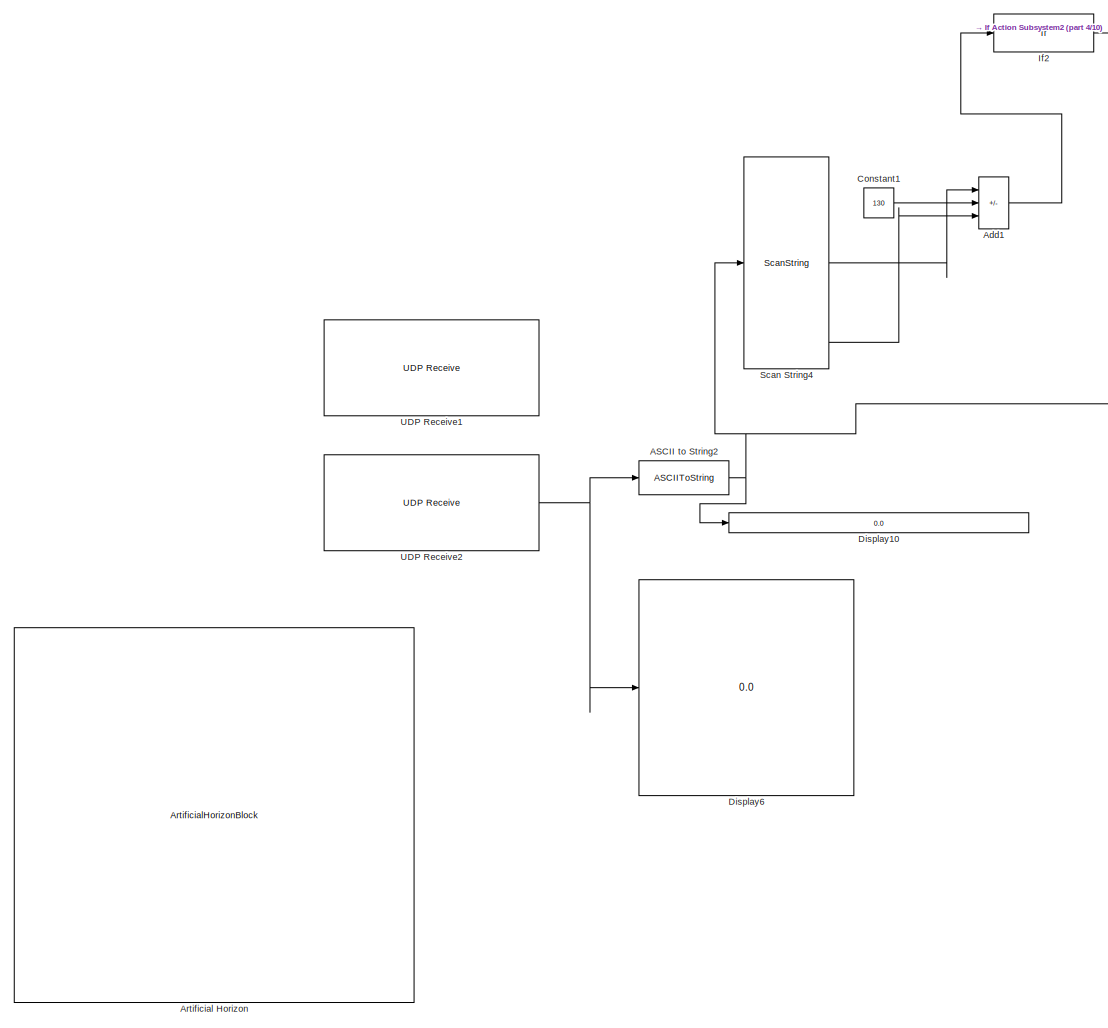
[diagram: root canvas - part 1/10, top left region]
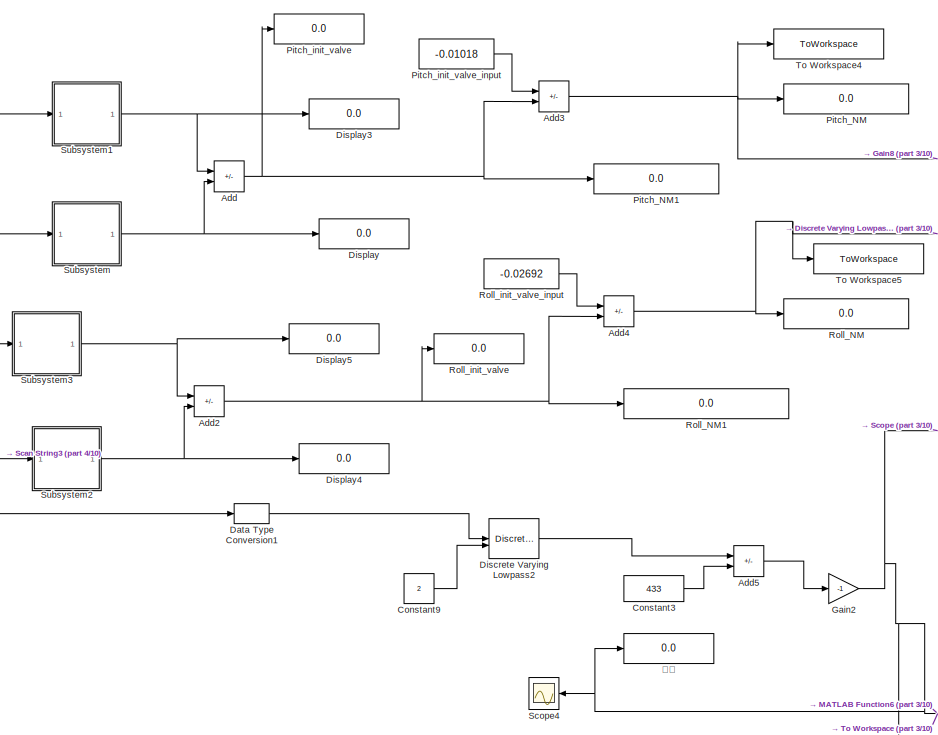
[diagram: root canvas - part 2/10, top center region]
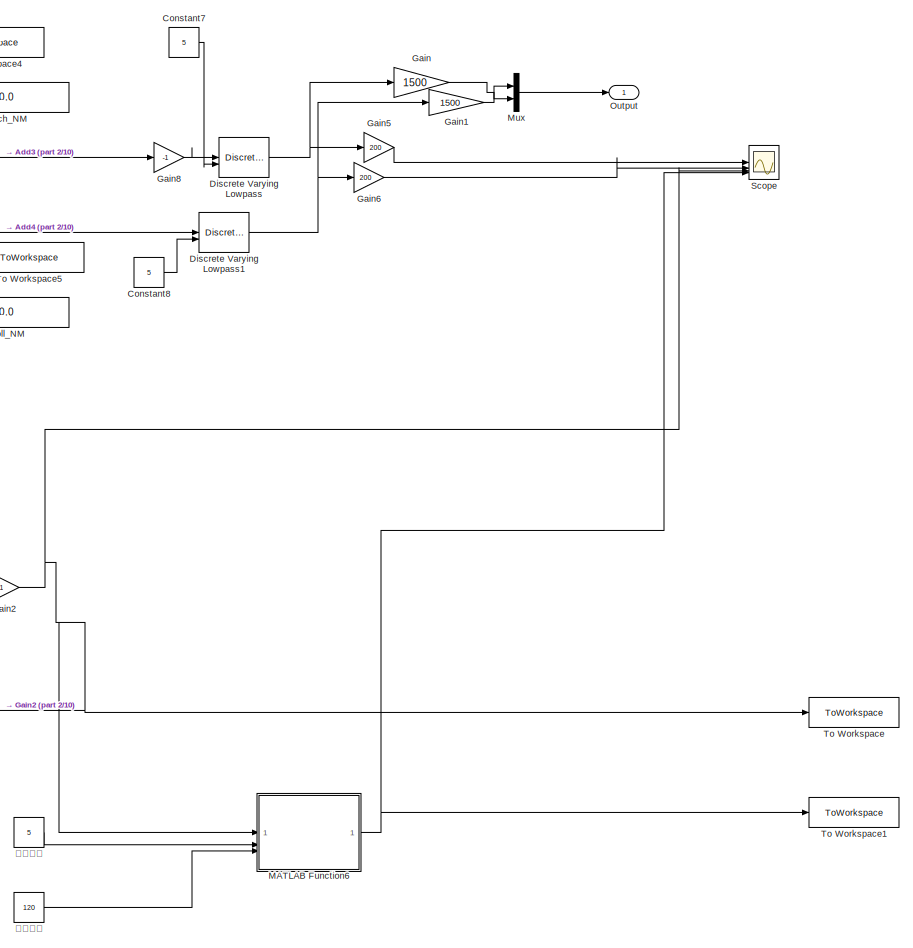
[diagram: root canvas - part 3/10, top right region]
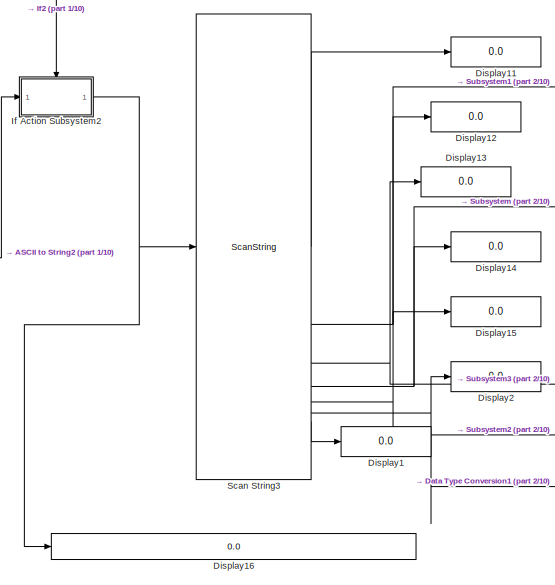
[diagram: root canvas - part 4/10, top center region]
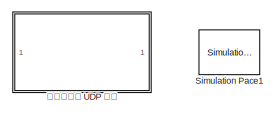
[diagram: root canvas - part 5/10, top right region]
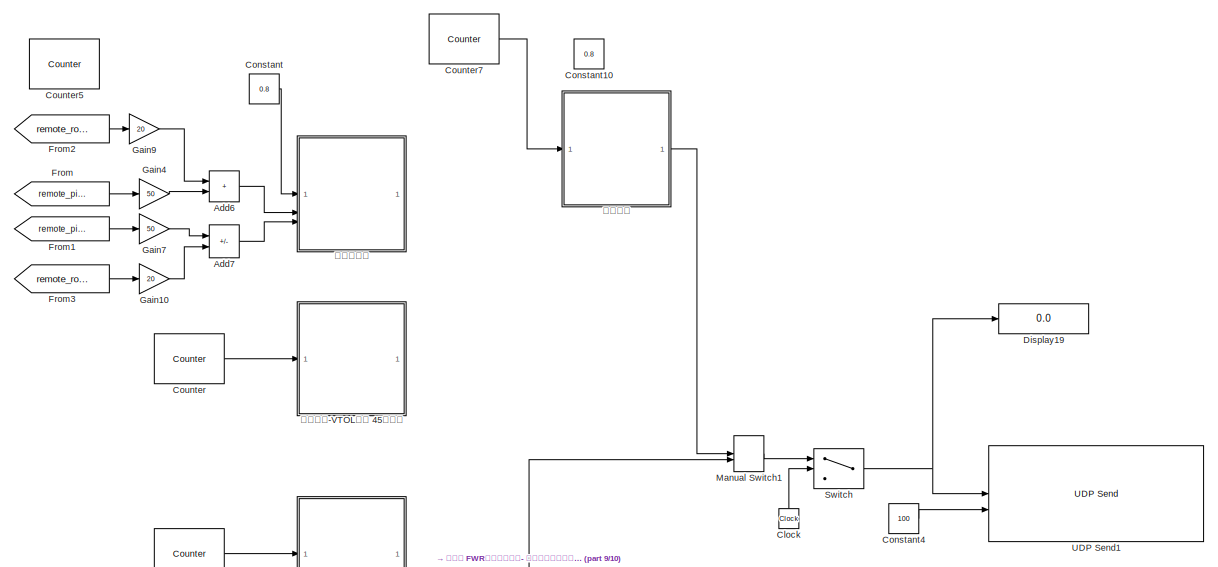
[diagram: root canvas - part 6/10, middle left region]
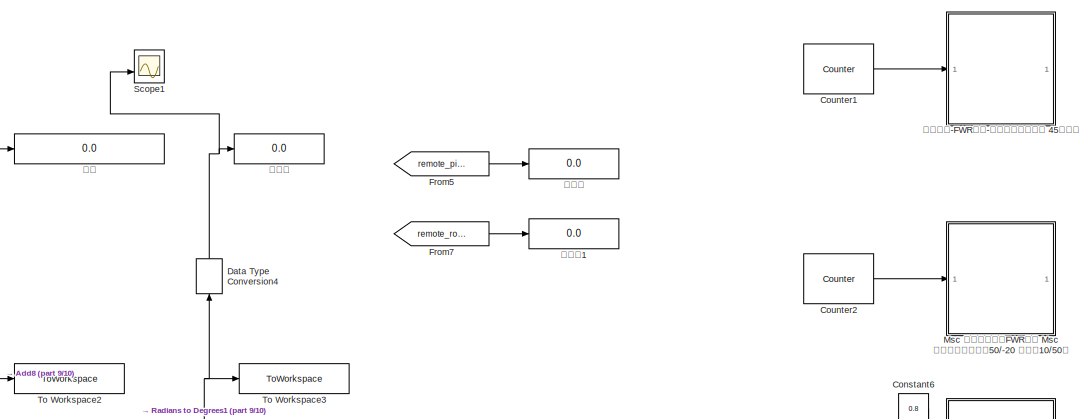
[diagram: root canvas - part 7/10, middle left region]
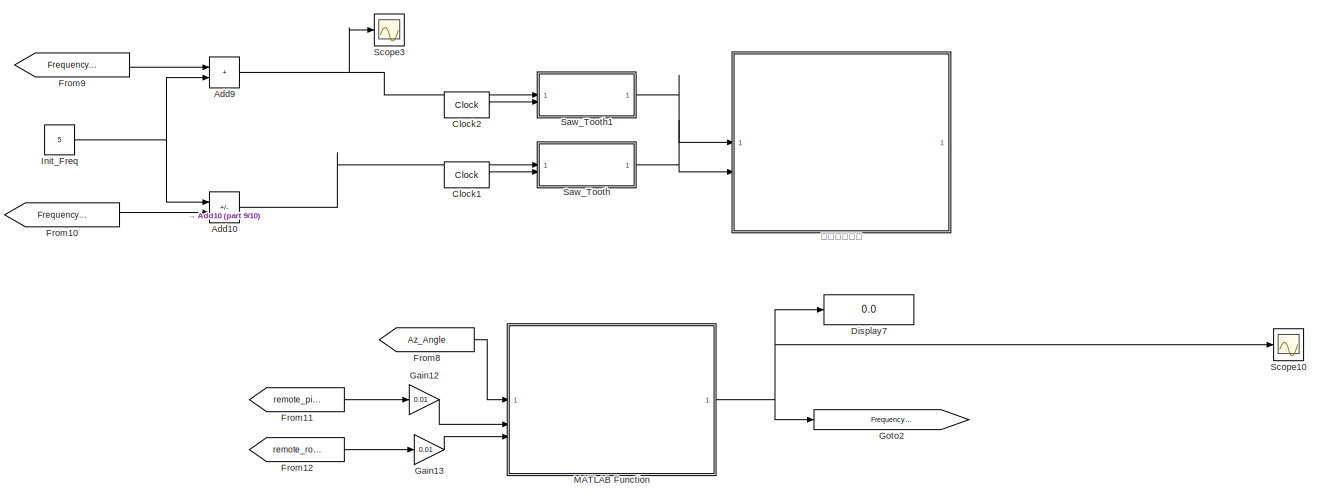
[diagram: root canvas - part 8/10, central region]
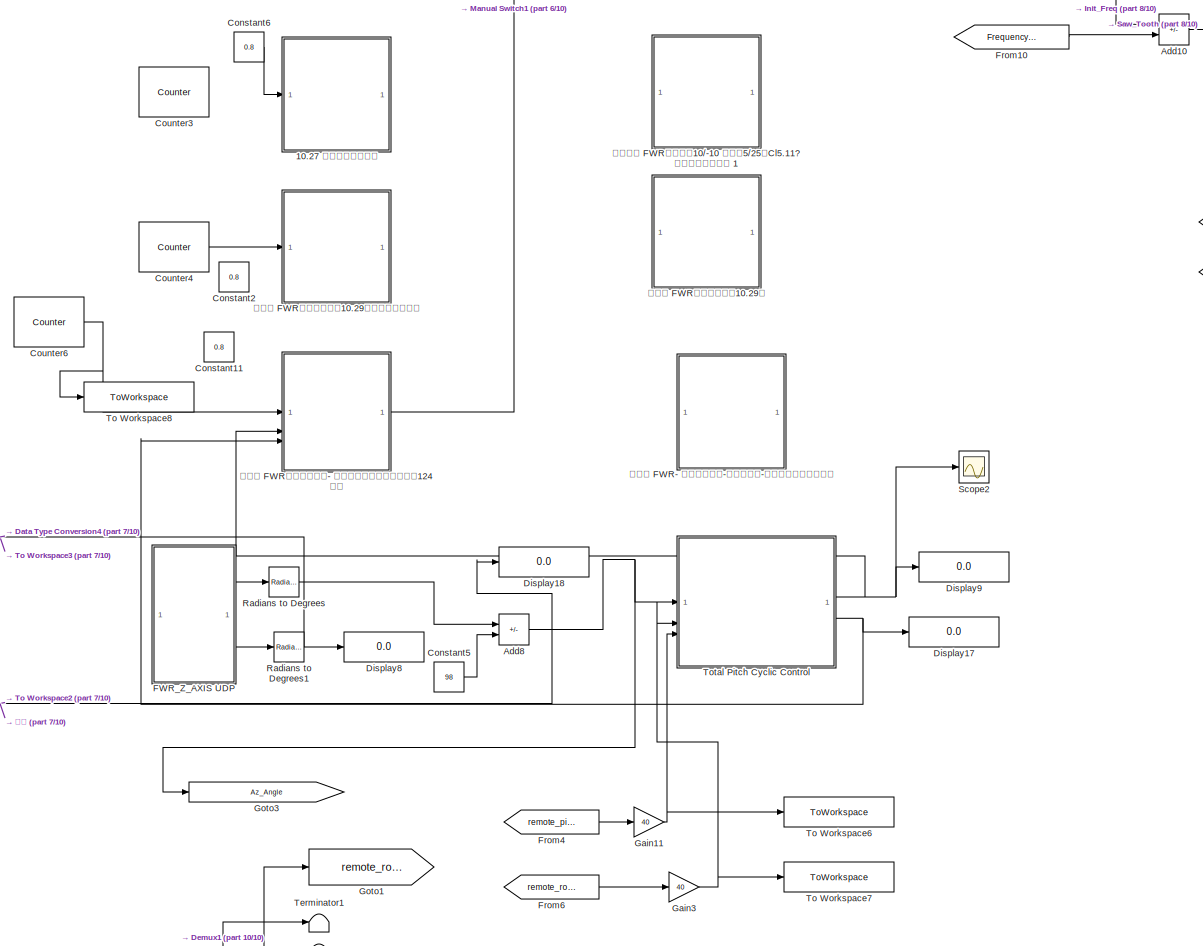
[diagram: root canvas - part 9/10, bottom left region]
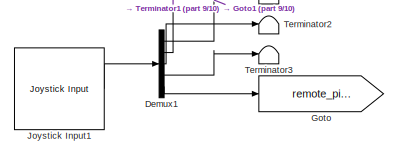
[diagram: root canvas - part 10/10, bottom left region]
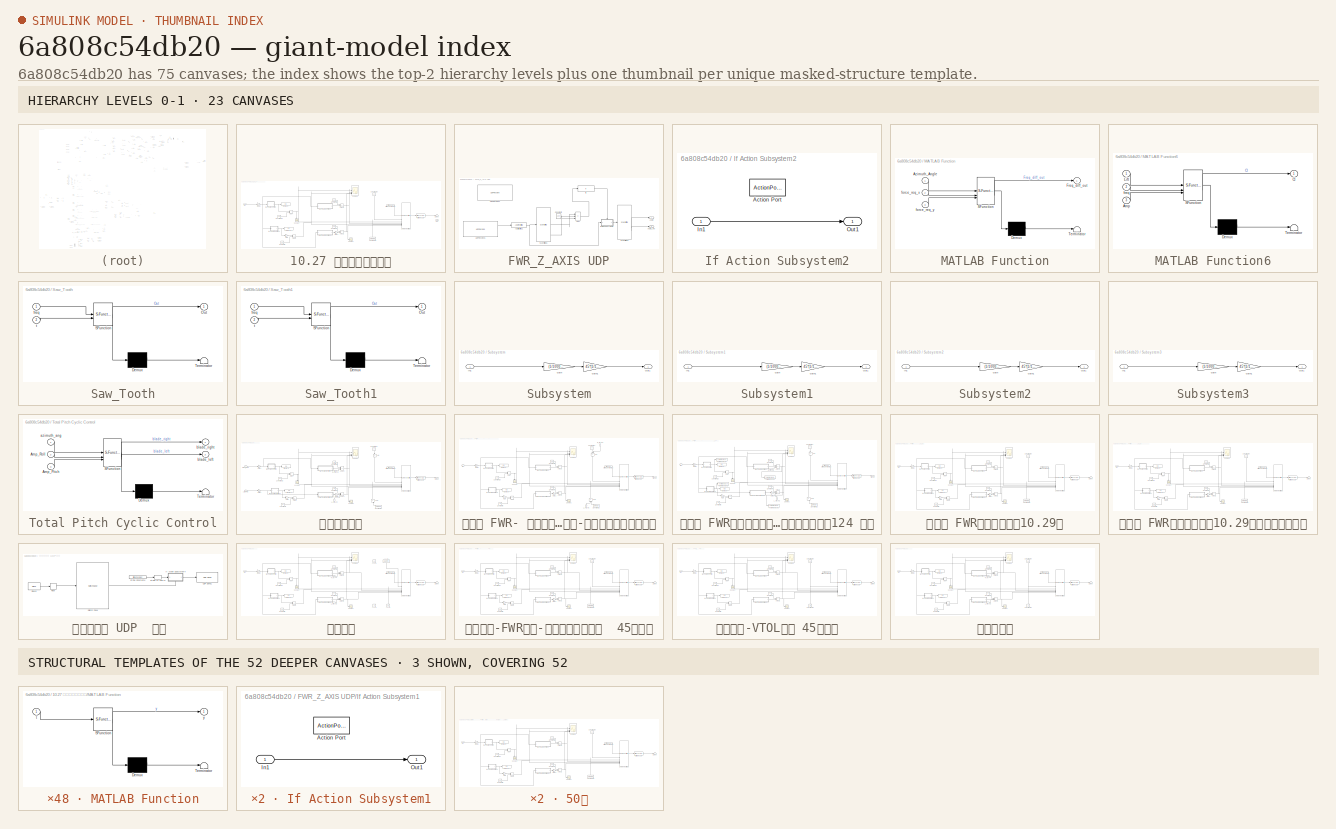
[diagram: thumbnail index - top-2 hierarchy levels (23 canvases) + 3 structural-template representatives of the remaining 52 canvases]
MODEL slx_6a808c54db20
KIND model
CONFIG AbsTol = auto
CONFIG EnableMultiTasking = off
CONFIG FixedStep = 0.001
CONFIG MaxStep = auto
CONFIG MinStep = auto
CONFIG RelTol = 1e-3
CONFIG SampleTimeConstraint = Unconstrained
CONFIG SolverName = ode4
CONFIG StartTime = 0.0
CONFIG StopTime = inf
WORKSPACE source: mxarray member
WORKSPACE freq = 1
BLOCK [SubSystem] 10.27 想做对称推力测试
  Commented = on
BLOCK [Sum] 10.27 想做对称推力测试/Add10
  IconShape = rectangular
  Inputs = +-
BLOCK [Sum] 10.27 想做对称推力测试/Add11
  IconShape = rectangular
BLOCK [Sum] 10.27 想做对称推力测试/Add7
  IconShape = rectangular
BLOCK [Sum] 10.27 想做对称推力测试/Add8
  IconShape = rectangular
  Inputs = -+
BLOCK [ComposeString] 10.27 想做对称推力测试/Compose String2
  Format = "%s%f %f %f %f %f %f"
BLOCK [Constant] 10.27 想做对称推力测试/Constant10
  Value = 100
BLOCK [Constant] 10.27 想做对称推力测试/Constant12
  NameLocation = right
  Value = 180-10
BLOCK [Constant] 10.27 想做对称推力测试/Constant20
  NameLocation = left
  Value = 170
BLOCK [Constant] 10.27 想做对称推力测试/Constant5
  Value = 83
BLOCK [Constant] 10.27 想做对称推力测试/Constant7
  Value = 180
BLOCK [Constant] 10.27 想做对称推力测试/Constant8
  Value = 180
BLOCK [Display] 10.27 想做对称推力测试/Display8
  Decimation = 1
BLOCK [Display] 10.27 想做对称推力测试/Display9
  Decimation = 1
BLOCK [Gain] 10.27 想做对称推力测试/Gain
  Gain = -1
BLOCK [Gain] 10.27 想做对称推力测试/Gain1
  Gain = -1
BLOCK [Gain] 10.27 想做对称推力测试/Gain3
  Gain = 1.6
BLOCK [Inport] 10.27 想做对称推力测试/In1
BLOCK [SubSystem] 10.27 想做对称推力测试/MATLAB Function
  ErrorFcn = Stateflow.Translate.translate
  PermitHierarchicalResolution = ExplicitOnly
  SFBlockType = MATLAB Function
  TreatAsAtomicUnit = on
BLOCK [Demux] 10.27 想做对称推力测试/MATLAB Function/ Demux 
  Outputs = 1
BLOCK [S-Function] 10.27 想做对称推力测试/MATLAB Function/ SFunction 
  EnableBusSupport = on
  FunctionName = sf_sfun
  PortCounts = [1 2]
  SFcnIsStateOwnerBlock = off
  SFunctionDeploymentMode = off
  Tag = Stateflow S-Function 14
BLOCK [Terminator] 10.27 想做对称推力测试/MATLAB Function/ Terminator 
BLOCK [Inport] 10.27 想做对称推力测试/MATLAB Function/t
BLOCK [Outport] 10.27 想做对称推力测试/MATLAB Function/y
  VectorParamsAs1DForOutWhenUnconnected = off
BLOCK [SubSystem] 10.27 想做对称推力测试/MATLAB Function1
  ErrorFcn = Stateflow.Translate.translate
  PermitHierarchicalResolution = ExplicitOnly
  SFBlockType = MATLAB Function
  TreatAsAtomicUnit = on
BLOCK [Demux] 10.27 想做对称推力测试/MATLAB Function1/ Demux 
  Outputs = 1
BLOCK [S-Function] 10.27 想做对称推力测试/MATLAB Function1/ SFunction 
  EnableBusSupport = on
  FunctionName = sf_sfun
  PortCounts = [1 2]
  SFcnIsStateOwnerBlock = off
  SFunctionDeploymentMode = off
  Tag = Stateflow S-Function 15
BLOCK [Terminator] 10.27 想做对称推力测试/MATLAB Function1/ Terminator 
BLOCK [Inport] 10.27 想做对称推力测试/MATLAB Function1/t
BLOCK [Outport] 10.27 想做对称推力测试/MATLAB Function1/y
  VectorParamsAs1DForOutWhenUnconnected = off
BLOCK [SubSystem] 10.27 想做对称推力测试/MATLAB Function2
  ErrorFcn = Stateflow.Translate.translate
  PermitHierarchicalResolution = ExplicitOnly
  SFBlockType = MATLAB Function
  TreatAsAtomicUnit = on
BLOCK [Demux] 10.27 想做对称推力测试/MATLAB Function2/ Demux 
  Outputs = 1
BLOCK [S-Function] 10.27 想做对称推力测试/MATLAB Function2/ SFunction 
  EnableBusSupport = on
  FunctionName = sf_sfun
  PortCounts = [1 2]
  SFcnIsStateOwnerBlock = off
  SFunctionDeploymentMode = off
  Tag = Stateflow S-Function 16
BLOCK [Terminator] 10.27 想做对称推力测试/MATLAB Function2/ Terminator 
BLOCK [Inport] 10.27 想做对称推力测试/MATLAB Function2/t
BLOCK [Outport] 10.27 想做对称推力测试/MATLAB Function2/y
  VectorParamsAs1DForOutWhenUnconnected = off
BLOCK [SubSystem] 10.27 想做对称推力测试/MATLAB Function3
  ErrorFcn = Stateflow.Translate.translate
  PermitHierarchicalResolution = ExplicitOnly
  SFBlockType = MATLAB Function
  TreatAsAtomicUnit = on
BLOCK [Demux] 10.27 想做对称推力测试/MATLAB Function3/ Demux 
  Outputs = 1
BLOCK [S-Function] 10.27 想做对称推力测试/MATLAB Function3/ SFunction 
  EnableBusSupport = on
  FunctionName = sf_sfun
  PortCounts = [1 2]
  SFcnIsStateOwnerBlock = off
  SFunctionDeploymentMode = off
  Tag = Stateflow S-Function 17
BLOCK [Terminator] 10.27 想做对称推力测试/MATLAB Function3/ Terminator 
BLOCK [Inport] 10.27 想做对称推力测试/MATLAB Function3/t
BLOCK [Outport] 10.27 想做对称推力测试/MATLAB Function3/y
  VectorParamsAs1DForOutWhenUnconnected = off
BLOCK [Outport] 10.27 想做对称推力测试/Out2
  Port = 2
BLOCK [Scope] 10.27 想做对称推力测试/Scope1
  Floating = off
  NameLocation = left
  NumInputPorts = 1
  ScopeSpecificationString = Simulink.scopes.TimeScopeBlockCfg('CurrentConfiguration', extmgr.ConfigurationSet(extmgr.Configuration('Core','General UI',true),extmgr.Configuration('Core','Source UI',true),extmgr.Configuration('Sources','WiredSimulink',true,'DataLoggingVariableName','ScopeData1'),extmgr.Configuration('Visuals','Time Domain',true,'SerializedDisplays',{struct('MinYLimReal','-50','MaxYLimReal','300','YLabelReal','...<+1423ch>  <repeated x12 — deduplicated; at blocks: Scope1>
BLOCK [Scope] 10.27 想做对称推力测试/Scope2
  Floating = off
  NumInputPorts = 1
  ScopeSpecificationString = Simulink.scopes.TimeScopeBlockCfg('CurrentConfiguration', extmgr.ConfigurationSet(extmgr.Configuration('Core','General UI',true),extmgr.Configuration('Core','Source UI',true),extmgr.Configuration('Sources','WiredSimulink',true,'DataLoggingVariableName','ScopeData2'),extmgr.Configuration('Visuals','Time Domain',true,'SerializedDisplays',{struct('MinYLimReal','0','MaxYLimReal','180','YLabelReal','',...<+1380ch>  <repeated x12 — deduplicated; at blocks: Scope2>
BLOCK [Scope] 10.27 想做对称推力测试/Scope3
  Floating = off
  NumInputPorts = 4
  ScopeSpecificationString = Simulink.scopes.TimeScopeBlockCfg('CurrentConfiguration', extmgr.ConfigurationSet(extmgr.Configuration('Core','General UI',true),extmgr.Configuration('Core','Source UI',true),extmgr.Configuration('Sources','WiredSimulink',true,'DataLoggingVariableName','ScopeData3'),extmgr.Configuration('Visuals','Time Domain',true,'SerializedDisplays',{struct('MinYLimReal','0','MaxYLimReal','180','YLabelReal','',...<+3376ch>  <repeated x12 — deduplicated; at blocks: Scope3>
BLOCK [Outport] 10.27 想做对称推力测试/Signal
BLOCK [StringConstant] 10.27 想做对称推力测试/String Constant12
  String = "T"
BLOCK [StringToASCII] 10.27 想做对称推力测试/String to ASCII
  OutputVectorSize = 80
BLOCK [ASCIIToString] ASCII to String2
BLOCK [Sum] Add
  IconShape = rectangular
  Inputs = +-
BLOCK [Sum] Add1
  IconShape = rectangular
  Inputs = +-+
BLOCK [Sum] Add10
  IconShape = rectangular
  Inputs = +-
BLOCK [Sum] Add2
  IconShape = rectangular
  Inputs = +-
BLOCK [Sum] Add3
  IconShape = rectangular
  Inputs = -+
BLOCK [Sum] Add4
  IconShape = rectangular
  Inputs = -+
BLOCK [Sum] Add5
  IconShape = rectangular
  Inputs = +-
BLOCK [Sum] Add6
  IconShape = rectangular
BLOCK [Sum] Add7
  IconShape = rectangular
  Inputs = +-
BLOCK [Sum] Add8
  IconShape = rectangular
  Inputs = +-
BLOCK [Sum] Add9
  IconShape = rectangular
BLOCK [ArtificialHorizonBlock] Artificial Horizon
BLOCK [Clock] Clock
  NameLocation = right
BLOCK [Clock] Clock1
  DisplayTime = on
BLOCK [Clock] Clock2
  DisplayTime = on
BLOCK [Constant] Constant
  Value = 0.8
BLOCK [Constant] Constant1
  Value = 130
BLOCK [Constant] Constant10
  Value = 0.8
BLOCK [Constant] Constant11
  Value = 0.8
BLOCK [Constant] Constant2
  Commented = on
  Value = 0.8
BLOCK [Constant] Constant3
  Value = 433
BLOCK [Constant] Constant4
  Value = 100
BLOCK [Constant] Constant5
  Value = 98
BLOCK [Constant] Constant6
  Commented = on
  Value = 0.8
BLOCK [Constant] Constant7
  Value = 5
BLOCK [Constant] Constant8
  Value = 5
BLOCK [Constant] Constant9
  Value = 2
BLOCK [Reference] Counter  REF=eeGeneralControl/Counter
  Commented = on
  SourceBlock = eeGeneralControl/Counter
  SourceType = Counter
BLOCK [Reference] Counter1  REF=eeGeneralControl/Counter
  Commented = on
  SourceBlock = eeGeneralControl/Counter
  SourceType = Counter
BLOCK [Reference] Counter2  REF=eeGeneralControl/Counter
  Commented = on
  SourceBlock = eeGeneralControl/Counter
  SourceType = Counter
BLOCK [Reference] Counter3  REF=eeGeneralControl/Counter
  Commented = on
  SourceBlock = eeGeneralControl/Counter
  SourceType = Counter
BLOCK [Reference] Counter4  REF=eeGeneralControl/Counter
  Commented = on
  SourceBlock = eeGeneralControl/Counter
  SourceType = Counter
BLOCK [Reference] Counter5  REF=eeGeneralControl/Counter
  SourceBlock = eeGeneralControl/Counter
  SourceType = Counter
BLOCK [Reference] Counter6  REF=eeGeneralControl/Counter
  SourceBlock = eeGeneralControl/Counter
  SourceType = Counter
BLOCK [Reference] Counter7  REF=eeGeneralControl/Counter
  SourceBlock = eeGeneralControl/Counter
  SourceType = Counter
BLOCK [DataTypeConversion] Data Type Conversion1
  OutDataTypeStr = double
  RndMeth = Floor
  SaturateOnIntegerOverflow = off
BLOCK [DataTypeConversion] Data Type Conversion4
  NameLocation = right
  OutDataTypeStr = double
  RndMeth = Floor
  SaturateOnIntegerOverflow = off
BLOCK [Demux] Demux1
  Outputs = 5
BLOCK [Reference] Discrete Varying Lowpass  REF=cstblocks/Linear Parameter Varying/Discrete Varying Lowpass
  SourceBlock = cstblocks/Linear Parameter Varying/Discrete Varying Lowpass
  SourceType = Discrete Varying Lowpass
BLOCK [Reference] Discrete Varying Lowpass1  REF=cstblocks/Linear Parameter Varying/Discrete Varying Lowpass
  SourceBlock = cstblocks/Linear Parameter Varying/Discrete Varying Lowpass
  SourceType = Discrete Varying Lowpass
BLOCK [Reference] Discrete Varying Lowpass2  REF=cstblocks/Linear Parameter Varying/Discrete Varying Lowpass
  SourceBlock = cstblocks/Linear Parameter Varying/Discrete Varying Lowpass
  SourceType = Discrete Varying Lowpass
BLOCK [Display] Display
  Decimation = 1
BLOCK [Display] Display1
  Decimation = 1
BLOCK [Display] Display10
  Decimation = 1
BLOCK [Display] Display11
  Decimation = 1
BLOCK [Display] Display12
  Decimation = 1
BLOCK [Display] Display13
  Decimation = 1
BLOCK [Display] Display14
  Decimation = 1
BLOCK [Display] Display15
  Decimation = 1
BLOCK [Display] Display16
  Decimation = 1
BLOCK [Display] Display17
  Decimation = 1
BLOCK [Display] Display18
  Decimation = 1
BLOCK [Display] Display19
  Decimation = 1
BLOCK [Display] Display2
  Decimation = 1
  Format = long
BLOCK [Display] Display3
  Decimation = 1
BLOCK [Display] Display4
  Decimation = 1
BLOCK [Display] Display5
  Decimation = 1
BLOCK [Display] Display6
  Decimation = 1
BLOCK [Display] Display7
  Decimation = 1
BLOCK [Display] Display8
  Decimation = 1
BLOCK [Display] Display9
  Decimation = 1
BLOCK [SubSystem] FWR_Z_AXIS UDP
BLOCK [ASCIIToString] FWR_Z_AXIS UDP/ASCII to String1
BLOCK [Sum] FWR_Z_AXIS UDP/Add7
  IconShape = rectangular
  Inputs = +-+
BLOCK [Outport] FWR_Z_AXIS UDP/Angle
BLOCK [Outport] FWR_Z_AXIS UDP/Angle_Vel
  Port = 2
BLOCK [Constant] FWR_Z_AXIS UDP/Constant2
  Value = 130
BLOCK [SubSystem] FWR_Z_AXIS UDP/If Action Subsystem1
  TreatAsAtomicUnit = on
BLOCK [ActionPort] FWR_Z_AXIS UDP/If Action Subsystem1/Action Port
  ActionPortLabel = if(u1 == 0)
BLOCK [Inport] FWR_Z_AXIS UDP/If Action Subsystem1/In1
BLOCK [Outport] FWR_Z_AXIS UDP/If Action Subsystem1/Out1
BLOCK [If] FWR_Z_AXIS UDP/If1
  IfExpression = u1 == 0
BLOCK [ScanString] FWR_Z_AXIS UDP/Scan String1
  Format = "%f\t%f\t%f\t%f\t"
BLOCK [ScanString] FWR_Z_AXIS UDP/Scan String2
  Format = "%f\t%f\t%f\t%f\t"
BLOCK [Reference] FWR_Z_AXIS UDP/UDP Receive1  REF=slrealtimeiplib/UDP Receive
  SourceBlock = slrealtimeiplib/UDP Receive
  SourceType = slrealtimeudpreceive
BLOCK [Reference] FWR_Z_AXIS UDP/UDP Receive2  REF=slrealtimeiplib/UDP Receive
  Commented = on
  SourceBlock = slrealtimeiplib/UDP Receive
  SourceType = slrealtimeudpreceive
BLOCK [From] From
  GotoTag = remote_pitch
BLOCK [From] From1
  GotoTag = remote_pitch
BLOCK [From] From10
  GotoTag = Frequency_Output
BLOCK [From] From11
  GotoTag = remote_pitch
BLOCK [From] From12
  GotoTag = remote_roll
BLOCK [From] From2
  GotoTag = remote_roll
BLOCK [From] From3
  GotoTag = remote_roll
BLOCK [From] From4
  GotoTag = remote_pitch
BLOCK [From] From5
  GotoTag = remote_pitch
BLOCK [From] From6
  GotoTag = remote_roll
BLOCK [From] From7
  GotoTag = remote_roll
BLOCK [From] From8
  GotoTag = Az_Angle
BLOCK [From] From9
  GotoTag = Frequency_Output
BLOCK [Gain] Gain
  Gain = 1500
BLOCK [Gain] Gain1
  Gain = 1500
BLOCK [Gain] Gain10
  Gain = 20
BLOCK [Gain] Gain11
  Gain = 40
BLOCK [Gain] Gain12
  Gain = 0.01
BLOCK [Gain] Gain13
  Gain = 0.01
BLOCK [Gain] Gain2
  Gain = -1
BLOCK [Gain] Gain3
  Gain = 40
BLOCK [Gain] Gain4
  Gain = 50
  NameLocation = top
BLOCK [Gain] Gain5
  Gain = 200
BLOCK [Gain] Gain6
  Gain = 200
BLOCK [Gain] Gain7
  Gain = 50
  NameLocation = top
BLOCK [Gain] Gain8
  Gain = -1
BLOCK [Gain] Gain9
  Gain = 20
BLOCK [Goto] Goto
  GotoTag = remote_pitch
BLOCK [Goto] Goto1
  GotoTag = remote_roll
BLOCK [Goto] Goto2
  GotoTag = Frequency_Output
BLOCK [Goto] Goto3
  GotoTag = Az_Angle
BLOCK [SubSystem] If Action Subsystem2
  TreatAsAtomicUnit = on
BLOCK [ActionPort] If Action Subsystem2/Action Port
  ActionPortLabel = if(u1 == 0)
BLOCK [Inport] If Action Subsystem2/In1
BLOCK [Outport] If Action Subsystem2/Out1
BLOCK [If] If2
  IfExpression = u1 == 0
BLOCK [Constant] Init_Freq
  Value = 5
BLOCK [Reference] Joystick Input1  REF=vrlib/Joystick Input
  Commented = on
  SourceBlock = vrlib/Joystick Input
  SourceType = Joystick Input
BLOCK [SubSystem] MATLAB Function
  ErrorFcn = Stateflow.Translate.translate
  PermitHierarchicalResolution = ExplicitOnly
  SFBlockType = MATLAB Function
  TreatAsAtomicUnit = on
BLOCK [Demux] MATLAB Function/ Demux 
  Outputs = 1
BLOCK [S-Function] MATLAB Function/ SFunction 
  EnableBusSupport = on
  FunctionName = sf_sfun
  PortCounts = [3 2]
  SFcnIsStateOwnerBlock = off
  SFunctionDeploymentMode = off
  Tag = Stateflow S-Function 45
BLOCK [Terminator] MATLAB Function/ Terminator 
BLOCK [Inport] MATLAB Function/Azimuth_Angle
BLOCK [Outport] MATLAB Function/Freq_diff_out
BLOCK [Inport] MATLAB Function/force_req_x
  Port = 2
BLOCK [Inport] MATLAB Function/force_req_y
  Port = 3
BLOCK [SubSystem] MATLAB Function6
  ErrorFcn = Stateflow.Translate.translate
  PermitHierarchicalResolution = ExplicitOnly
  SFBlockType = MATLAB Function
  TreatAsAtomicUnit = on
BLOCK [Demux] MATLAB Function6/ Demux 
  Outputs = 1
BLOCK [S-Function] MATLAB Function6/ SFunction 
  EnableBusSupport = on
  FunctionName = sf_sfun
  PortCounts = [3 2]
  SFcnIsStateOwnerBlock = off
  SFunctionDeploymentMode = off
  Tag = Stateflow S-Function 7
BLOCK [Terminator] MATLAB Function6/ Terminator 
BLOCK [Inport] MATLAB Function6/Amp
  Port = 3
BLOCK [Outport] MATLAB Function6/Cl
BLOCK [Inport] MATLAB Function6/Lift
BLOCK [Inport] MATLAB Function6/freq
  Port = 2
BLOCK [ManualSwitch] Manual Switch1
  CurrentSetting = 0
BLOCK [SubSystem] Msc 期间升力最大FWR模式 Msc 期间工作（拍幅：50//-20 扭转角10//50）
  Commented = on
BLOCK [Sum] Msc 期间升力最大FWR模式 Msc 期间工作（拍幅：50//-20 扭转角10//50）/Add10
  IconShape = rectangular
  Inputs = +-
BLOCK [Sum] Msc 期间升力最大FWR模式 Msc 期间工作（拍幅：50//-20 扭转角10//50）/Add11
  IconShape = rectangular
BLOCK [Sum] Msc 期间升力最大FWR模式 Msc 期间工作（拍幅：50//-20 扭转角10//50）/Add7
  IconShape = rectangular
BLOCK [Sum] Msc 期间升力最大FWR模式 Msc 期间工作（拍幅：50//-20 扭转角10//50）/Add8
  IconShape = rectangular
  Inputs = -+
BLOCK [ComposeString] Msc 期间升力最大FWR模式 Msc 期间工作（拍幅：50//-20 扭转角10//50）/Compose String2
  Format = "%s%f %f %f %f %f %f"
BLOCK [Constant] Msc 期间升力最大FWR模式 Msc 期间工作（拍幅：50//-20 扭转角10//50）/Constant10
  Value = 100
BLOCK [Constant] Msc 期间升力最大FWR模式 Msc 期间工作（拍幅：50//-20 扭转角10//50）/Constant12
  NameLocation = right
  Value = 180-10
BLOCK [Constant] Msc 期间升力最大FWR模式 Msc 期间工作（拍幅：50//-20 扭转角10//50）/Constant20
  NameLocation = left
  Value = 170
BLOCK [Constant] Msc 期间升力最大FWR模式 Msc 期间工作（拍幅：50//-20 扭转角10//50）/Constant5
  Value = 83
BLOCK [Constant] Msc 期间升力最大FWR模式 Msc 期间工作（拍幅：50//-20 扭转角10//50）/Constant7
  Value = 180
BLOCK [Constant] Msc 期间升力最大FWR模式 Msc 期间工作（拍幅：50//-20 扭转角10//50）/Constant8
  Value = 180
BLOCK [Display] Msc 期间升力最大FWR模式 Msc 期间工作（拍幅：50//-20 扭转角10//50）/Display8
  Decimation = 1
BLOCK [Display] Msc 期间升力最大FWR模式 Msc 期间工作（拍幅：50//-20 扭转角10//50）/Display9
  Decimation = 1
BLOCK [Gain] Msc 期间升力最大FWR模式 Msc 期间工作（拍幅：50//-20 扭转角10//50）/Gain
  Gain = -1
BLOCK [Gain] Msc 期间升力最大FWR模式 Msc 期间工作（拍幅：50//-20 扭转角10//50）/Gain1
  Gain = -1
BLOCK [Gain] Msc 期间升力最大FWR模式 Msc 期间工作（拍幅：50//-20 扭转角10//50）/Gain3
  Gain = 1.6
BLOCK [Inport] Msc 期间升力最大FWR模式 Msc 期间工作（拍幅：50//-20 扭转角10//50）/In1
BLOCK [SubSystem] Msc 期间升力最大FWR模式 Msc 期间工作（拍幅：50//-20 扭转角10//50）/MATLAB Function
  ErrorFcn = Stateflow.Translate.translate
  PermitHierarchicalResolution = ExplicitOnly
  SFBlockType = MATLAB Function
  TreatAsAtomicUnit = on
BLOCK [Demux] Msc 期间升力最大FWR模式 Msc 期间工作（拍幅：50//-20 扭转角10//50）/MATLAB Function/ Demux 
  Outputs = 1
BLOCK [S-Function] Msc 期间升力最大FWR模式 Msc 期间工作（拍幅：50//-20 扭转角10//50）/MATLAB Function/ SFunction 
  EnableBusSupport = on
  FunctionName = sf_sfun
  PortCounts = [1 2]
  SFcnIsStateOwnerBlock = off
  SFunctionDeploymentMode = off
  Tag = Stateflow S-Function 10
BLOCK [Terminator] Msc 期间升力最大FWR模式 Msc 期间工作（拍幅：50//-20 扭转角10//50）/MATLAB Function/ Terminator 
BLOCK [Inport] Msc 期间升力最大FWR模式 Msc 期间工作（拍幅：50//-20 扭转角10//50）/MATLAB Function/t
BLOCK [Outport] Msc 期间升力最大FWR模式 Msc 期间工作（拍幅：50//-20 扭转角10//50）/MATLAB Function/y
  VectorParamsAs1DForOutWhenUnconnected = off
BLOCK [SubSystem] Msc 期间升力最大FWR模式 Msc 期间工作（拍幅：50//-20 扭转角10//50）/MATLAB Function1
  ErrorFcn = Stateflow.Translate.translate
  PermitHierarchicalResolution = ExplicitOnly
  SFBlockType = MATLAB Function
  TreatAsAtomicUnit = on
BLOCK [Demux] Msc 期间升力最大FWR模式 Msc 期间工作（拍幅：50//-20 扭转角10//50）/MATLAB Function1/ Demux 
  Outputs = 1
BLOCK [S-Function] Msc 期间升力最大FWR模式 Msc 期间工作（拍幅：50//-20 扭转角10//50）/MATLAB Function1/ SFunction 
  EnableBusSupport = on
  FunctionName = sf_sfun
  PortCounts = [1 2]
  SFcnIsStateOwnerBlock = off
  SFunctionDeploymentMode = off
  Tag = Stateflow S-Function 11
BLOCK [Terminator] Msc 期间升力最大FWR模式 Msc 期间工作（拍幅：50//-20 扭转角10//50）/MATLAB Function1/ Terminator 
BLOCK [Inport] Msc 期间升力最大FWR模式 Msc 期间工作（拍幅：50//-20 扭转角10//50）/MATLAB Function1/t
BLOCK [Outport] Msc 期间升力最大FWR模式 Msc 期间工作（拍幅：50//-20 扭转角10//50）/MATLAB Function1/y
  VectorParamsAs1DForOutWhenUnconnected = off
BLOCK [SubSystem] Msc 期间升力最大FWR模式 Msc 期间工作（拍幅：50//-20 扭转角10//50）/MATLAB Function2
  ErrorFcn = Stateflow.Translate.translate
  PermitHierarchicalResolution = ExplicitOnly
  SFBlockType = MATLAB Function
  TreatAsAtomicUnit = on
BLOCK [Demux] Msc 期间升力最大FWR模式 Msc 期间工作（拍幅：50//-20 扭转角10//50）/MATLAB Function2/ Demux 
  Outputs = 1
BLOCK [S-Function] Msc 期间升力最大FWR模式 Msc 期间工作（拍幅：50//-20 扭转角10//50）/MATLAB Function2/ SFunction 
  EnableBusSupport = on
  FunctionName = sf_sfun
  PortCounts = [1 2]
  SFcnIsStateOwnerBlock = off
  SFunctionDeploymentMode = off
  Tag = Stateflow S-Function 12
BLOCK [Terminator] Msc 期间升力最大FWR模式 Msc 期间工作（拍幅：50//-20 扭转角10//50）/MATLAB Function2/ Terminator 
BLOCK [Inport] Msc 期间升力最大FWR模式 Msc 期间工作（拍幅：50//-20 扭转角10//50）/MATLAB Function2/t
BLOCK [Outport] Msc 期间升力最大FWR模式 Msc 期间工作（拍幅：50//-20 扭转角10//50）/MATLAB Function2/y
  VectorParamsAs1DForOutWhenUnconnected = off
BLOCK [SubSystem] Msc 期间升力最大FWR模式 Msc 期间工作（拍幅：50//-20 扭转角10//50）/MATLAB Function3
  ErrorFcn = Stateflow.Translate.translate
  PermitHierarchicalResolution = ExplicitOnly
  SFBlockType = MATLAB Function
  TreatAsAtomicUnit = on
BLOCK [Demux] Msc 期间升力最大FWR模式 Msc 期间工作（拍幅：50//-20 扭转角10//50）/MATLAB Function3/ Demux 
  Outputs = 1
BLOCK [S-Function] Msc 期间升力最大FWR模式 Msc 期间工作（拍幅：50//-20 扭转角10//50）/MATLAB Function3/ SFunction 
  EnableBusSupport = on
  FunctionName = sf_sfun
  PortCounts = [1 2]
  SFcnIsStateOwnerBlock = off
  SFunctionDeploymentMode = off
  Tag = Stateflow S-Function 13
BLOCK [Terminator] Msc 期间升力最大FWR模式 Msc 期间工作（拍幅：50//-20 扭转角10//50）/MATLAB Function3/ Terminator 
BLOCK [Inport] Msc 期间升力最大FWR模式 Msc 期间工作（拍幅：50//-20 扭转角10//50）/MATLAB Function3/t
BLOCK [Outport] Msc 期间升力最大FWR模式 Msc 期间工作（拍幅：50//-20 扭转角10//50）/MATLAB Function3/y
  VectorParamsAs1DForOutWhenUnconnected = off
BLOCK [Scope] Msc 期间升力最大FWR模式 Msc 期间工作（拍幅：50//-20 扭转角10//50）/Scope1
  Floating = off
  NameLocation = left
  NumInputPorts = 1
BLOCK [Scope] Msc 期间升力最大FWR模式 Msc 期间工作（拍幅：50//-20 扭转角10//50）/Scope2
  Floating = off
  NumInputPorts = 1
BLOCK [Scope] Msc 期间升力最大FWR模式 Msc 期间工作（拍幅：50//-20 扭转角10//50）/Scope3
  Floating = off
  NumInputPorts = 4
BLOCK [Outport] Msc 期间升力最大FWR模式 Msc 期间工作（拍幅：50//-20 扭转角10//50）/Signal
BLOCK [StringConstant] Msc 期间升力最大FWR模式 Msc 期间工作（拍幅：50//-20 扭转角10//50）/String Constant12
  String = "T"
BLOCK [StringToASCII] Msc 期间升力最大FWR模式 Msc 期间工作（拍幅：50//-20 扭转角10//50）/String to ASCII
  OutputVectorSize = 80
BLOCK [Mux] Mux
  DisplayOption = bar
  Inputs = 2
BLOCK [Outport] Output
BLOCK [Display] Pitch_NM
  Decimation = 1
  Format = long
BLOCK [Display] Pitch_NM1
  Decimation = 1
  Format = long
BLOCK [Display] Pitch_init_valve
  Decimation = 1
BLOCK [Constant] Pitch_init_valve_input
  Value = -0.01018
BLOCK [Reference] Radians to Degrees  REF=simulink_extras/Transformations/Radians
to Degrees
  SourceBlock = simulink_extras/Transformations/Radians\nto Degrees
  SourceType = RadiansToDegrees
BLOCK [Reference] Radians to Degrees1  REF=simulink_extras/Transformations/Radians
to Degrees
  SourceBlock = simulink_extras/Transformations/Radians\nto Degrees
  SourceType = RadiansToDegrees
BLOCK [Display] Roll_NM
  Decimation = 1
  Format = long
BLOCK [Display] Roll_NM1
  Decimation = 1
  Format = long
BLOCK [Display] Roll_init_valve
  Decimation = 1
BLOCK [Constant] Roll_init_valve_input
  Value = -0.02692
BLOCK [SubSystem] Saw_Tooth
  ErrorFcn = Stateflow.Translate.translate
  PermitHierarchicalResolution = ExplicitOnly
  SFBlockType = MATLAB Function
  TreatAsAtomicUnit = on
BLOCK [Demux] Saw_Tooth/ Demux 
  Outputs = 1
BLOCK [S-Function] Saw_Tooth/ SFunction 
  EnableBusSupport = on
  FunctionName = sf_sfun
  PortCounts = [2 2]
  SFcnIsStateOwnerBlock = off
  SFunctionDeploymentMode = off
  Tag = Stateflow S-Function 43
BLOCK [Terminator] Saw_Tooth/ Terminator 
BLOCK [Outport] Saw_Tooth/Out
BLOCK [Inport] Saw_Tooth/freq
BLOCK [Inport] Saw_Tooth/t
  Port = 2
BLOCK [SubSystem] Saw_Tooth1
  ErrorFcn = Stateflow.Translate.translate
  PermitHierarchicalResolution = ExplicitOnly
  SFBlockType = MATLAB Function
  TreatAsAtomicUnit = on
BLOCK [Demux] Saw_Tooth1/ Demux 
  Outputs = 1
BLOCK [S-Function] Saw_Tooth1/ SFunction 
  EnableBusSupport = on
  FunctionName = sf_sfun
  PortCounts = [2 2]
  SFcnIsStateOwnerBlock = off
  SFunctionDeploymentMode = off
  Tag = Stateflow S-Function 44
BLOCK [Terminator] Saw_Tooth1/ Terminator 
BLOCK [Outport] Saw_Tooth1/Out
BLOCK [Inport] Saw_Tooth1/freq
BLOCK [Inport] Saw_Tooth1/t
  Port = 2
BLOCK [ScanString] Scan String3
  Format = "%f\t%f\t%f\t%f\t%f\t%f\t%f\t"
BLOCK [ScanString] Scan String4
  Format = "%f\t%f\t%f\t%f\t%f\t%f\t%f\t"
BLOCK [Scope] Scope
  Floating = off
  NumInputPorts = 4
  ScopeSpecificationString = Simulink.scopes.TimeScopeBlockCfg('CurrentConfiguration', extmgr.ConfigurationSet(extmgr.Configuration('Core','General UI',true,'ShowStatusbar',false),extmgr.Configuration('Core','Source UI',true),extmgr.Configuration('Sources','WiredSimulink',true),extmgr.Configuration('Visuals','Time Domain',true,'SerializedDisplays',{struct('MinYLimReal','-4','MaxYLimReal','4','YLabelReal','','MinYLimMag','0.00...<+3329ch>
BLOCK [Scope] Scope1
  Floating = off
  NumInputPorts = 2
  ScopeSpecificationString = Simulink.scopes.TimeScopeBlockCfg('CurrentConfiguration', extmgr.ConfigurationSet(extmgr.Configuration('Core','General UI',true),extmgr.Configuration('Core','Source UI',true),extmgr.Configuration('Sources','WiredSimulink',true,'DataLoggingVariableName','ScopeData1'),extmgr.Configuration('Visuals','Time Domain',true,'SerializedDisplays',{struct('MinYLimReal','-249.66637','MaxYLimReal','986.4901','Y...<+1528ch>
BLOCK [Scope] Scope10
  Floating = off
  NumInputPorts = 1
  ScopeSpecificationString = Simulink.scopes.TimeScopeBlockCfg('CurrentConfiguration', extmgr.ConfigurationSet(extmgr.Configuration('Core','General UI',true),extmgr.Configuration('Core','Source UI',true),extmgr.Configuration('Sources','WiredSimulink',true,'DataLoggingVariableName','ScopeData28'),extmgr.Configuration('Visuals','Time Domain',true,'SerializedDisplays',{struct('MinYLimReal','-12.49867','MaxYLimReal','12.49985','Y...<+1468ch>
BLOCK [Scope] Scope2
  Floating = off
  NumInputPorts = 1
  ScopeSpecificationString = Simulink.scopes.TimeScopeBlockCfg('CurrentConfiguration', extmgr.ConfigurationSet(extmgr.Configuration('Core','General UI',true),extmgr.Configuration('Core','Source UI',true),extmgr.Configuration('Sources','WiredSimulink',true,'DataLoggingVariableName','ScopeData2'),extmgr.Configuration('Visuals','Time Domain',true,'SerializedDisplays',{struct('MinYLimReal','-1.00000','MaxYLimReal','1.00000','YLab...<+1453ch>
BLOCK [Scope] Scope3
  Floating = off
  NumInputPorts = 1
  ScopeSpecificationString = Simulink.scopes.TimeScopeBlockCfg('CurrentConfiguration', extmgr.ConfigurationSet(extmgr.Configuration('Core','General UI',true),extmgr.Configuration('Core','Source UI',true),extmgr.Configuration('Sources','WiredSimulink',true,'DataLoggingVariableName','ScopeData1'),extmgr.Configuration('Visuals','Time Domain',true,'SerializedDisplays',{struct('MinYLimReal','4.00000','MaxYLimReal','6.00000','YLabe...<+1361ch>
BLOCK [Scope] Scope4
  Floating = off
  NameLocation = top
  NumInputPorts = 1
  ScopeSpecificationString = Simulink.scopes.TimeScopeBlockCfg('CurrentConfiguration', extmgr.ConfigurationSet(extmgr.Configuration('Core','General UI',true),extmgr.Configuration('Core','Source UI',true),extmgr.Configuration('Sources','WiredSimulink',true,'DataLoggingVariableName','ScopeData1'),extmgr.Configuration('Visuals','Time Domain',true,'SerializedDisplays',{struct('MinYLimReal','-5','MaxYLimReal','50','YLabelReal','',...<+1392ch>
BLOCK [Reference] Simulation Pace1  REF=aerolibanimutils/Simulation Pace
  AttributesFormatString = %<SleepMode>\n%<SimulationPace> sec/sec
  SourceBlock = aerolibanimutils/Simulation Pace
  SourceType = Simulation Pace
BLOCK [SubSystem] Subsystem
BLOCK [Gain] Subsystem/Gain
  Gain = (1/1000)*9.81
BLOCK [Gain] Subsystem/Gain1
  Gain = 45*(1/1000)
BLOCK [Inport] Subsystem/In1
BLOCK [Outport] Subsystem/Out1
BLOCK [SubSystem] Subsystem1
BLOCK [Gain] Subsystem1/Gain
  Gain = (1/1000)*9.81
BLOCK [Gain] Subsystem1/Gain1
  Gain = 45*(1/1000)
BLOCK [Inport] Subsystem1/In1
BLOCK [Outport] Subsystem1/Out1
BLOCK [SubSystem] Subsystem2
BLOCK [Gain] Subsystem2/Gain
  Gain = (1/1000)*9.81
BLOCK [Gain] Subsystem2/Gain1
  Gain = 45*(1/1000)
BLOCK [Inport] Subsystem2/In1
BLOCK [Outport] Subsystem2/Out1
BLOCK [SubSystem] Subsystem3
BLOCK [Gain] Subsystem3/Gain
  Gain = (1/1000)*9.81
BLOCK [Gain] Subsystem3/Gain1
  Gain = 45*(1/1000)
BLOCK [Inport] Subsystem3/In1
BLOCK [Outport] Subsystem3/Out1
BLOCK [Switch] Switch
  Criteria = u2 > Threshold
  InputSameDT = off
  SaturateOnIntegerOverflow = off
  Threshold = 5
BLOCK [Terminator] Terminator1
BLOCK [Terminator] Terminator2
BLOCK [Terminator] Terminator3
BLOCK [ToWorkspace] To Workspace
  Commented = on
  FixptAsFi = on
  MaxDataPoints = inf
  SampleTime = -1
  SaveFormat = Timeseries
  VariableName = Lift
BLOCK [ToWorkspace] To Workspace1
  Commented = on
  FixptAsFi = on
  MaxDataPoints = inf
  SampleTime = -1
  SaveFormat = Timeseries
  VariableName = Cl
BLOCK [ToWorkspace] To Workspace2
  FixptAsFi = on
  MaxDataPoints = inf
  SampleTime = -1
  SaveFormat = Timeseries
  VariableName = Rotor_Angle
BLOCK [ToWorkspace] To Workspace3
  FixptAsFi = on
  MaxDataPoints = inf
  SampleTime = -1
  SaveFormat = Timeseries
  VariableName = Rotor_Angular_Velocity
BLOCK [ToWorkspace] To Workspace4
  FixptAsFi = on
  MaxDataPoints = inf
  SampleTime = -1
  SaveFormat = Timeseries
  VariableName = Pitch_Torque
BLOCK [ToWorkspace] To Workspace5
  FixptAsFi = on
  MaxDataPoints = inf
  SampleTime = -1
  SaveFormat = Timeseries
  VariableName = Roll_Torque
BLOCK [ToWorkspace] To Workspace6
  FixptAsFi = on
  MaxDataPoints = inf
  SampleTime = -1
  SaveFormat = Timeseries
  VariableName = Amp_Pitch
BLOCK [ToWorkspace] To Workspace7
  FixptAsFi = on
  MaxDataPoints = inf
  SampleTime = -1
  SaveFormat = Timeseries
  VariableName = Amp_Roll
BLOCK [ToWorkspace] To Workspace8
  FixptAsFi = on
  MaxDataPoints = inf
  SampleTime = -1
  SaveFormat = Timeseries
  VariableName = Hz
BLOCK [SubSystem] Total Pitch Cyclic Control
  ErrorFcn = Stateflow.Translate.translate
  PermitHierarchicalResolution = ExplicitOnly
  SFBlockType = MATLAB Function
  TreatAsAtomicUnit = on
BLOCK [Demux] Total Pitch Cyclic Control/ Demux 
  Outputs = 1
BLOCK [S-Function] Total Pitch Cyclic Control/ SFunction 
  EnableBusSupport = on
  FunctionName = sf_sfun
  PortCounts = [3 3]
  SFcnIsStateOwnerBlock = off
  SFunctionDeploymentMode = off
  Tag = Stateflow S-Function 30
BLOCK [Terminator] Total Pitch Cyclic Control/ Terminator 
BLOCK [Inport] Total Pitch Cyclic Control/Amp_Pitch
  Port = 3
BLOCK [Inport] Total Pitch Cyclic Control/Amp_Roll
  Port = 2
BLOCK [Inport] Total Pitch Cyclic Control/azimuth_ang
BLOCK [Outport] Total Pitch Cyclic Control/blade_left
  Port = 2
BLOCK [Outport] Total Pitch Cyclic Control/blade_right
BLOCK [Reference] UDP Receive1  REF=slrealtimeiplib/UDP Receive
  Commented = on
  SourceBlock = slrealtimeiplib/UDP Receive
  SourceType = slrealtimeudpreceive
BLOCK [Reference] UDP Receive2  REF=slrealtimeiplib/UDP Receive
  SourceBlock = slrealtimeiplib/UDP Receive
  SourceType = slrealtimeudpreceive
BLOCK [Reference] UDP Send1  REF=slrealtimeiplib/UDP Send
  SourceBlock = slrealtimeiplib/UDP Send
  SourceType = slrealtimeudpsend
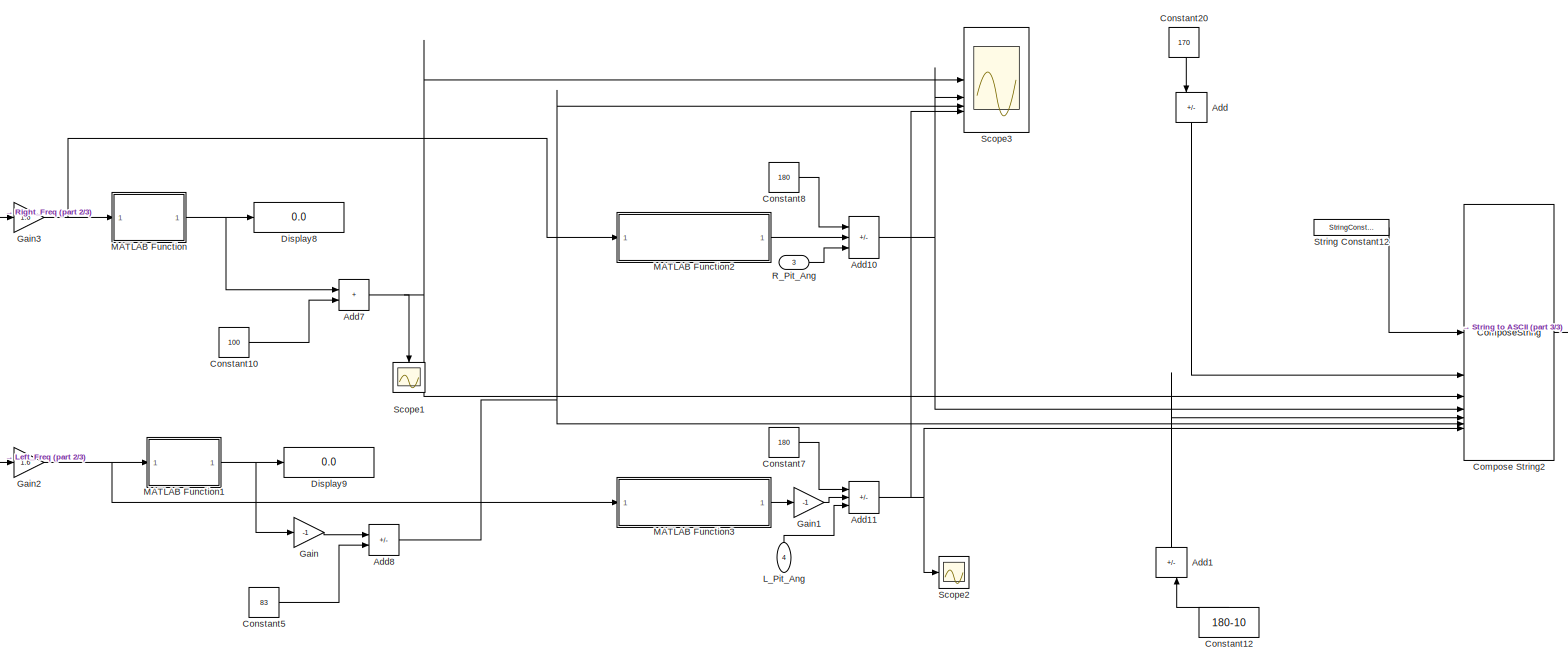
[diagram: 两翼分频控制 - part 1/3, most of the canvas]
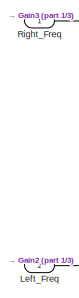
[diagram: 两翼分频控制 - part 2/3, middle left region]
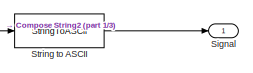
[diagram: 两翼分频控制 - part 3/3, middle right region]
BLOCK [SubSystem] 两翼分频控制
BLOCK [Sum] 两翼分频控制/Add
  IconShape = rectangular
  Inputs = +-
  NameLocation = left
BLOCK [Sum] 两翼分频控制/Add1
  IconShape = rectangular
  Inputs = -+
  NameLocation = right
BLOCK [Sum] 两翼分频控制/Add10
  IconShape = rectangular
  Inputs = +--
BLOCK [Sum] 两翼分频控制/Add11
  IconShape = rectangular
  Inputs = ++-
BLOCK [Sum] 两翼分频控制/Add7
  IconShape = rectangular
BLOCK [Sum] 两翼分频控制/Add8
  IconShape = rectangular
  Inputs = -+
BLOCK [ComposeString] 两翼分频控制/Compose String2
  Format = "%s%f %f %f %f %f %f"
BLOCK [Constant] 两翼分频控制/Constant10
  Value = 100
BLOCK [Constant] 两翼分频控制/Constant12
  NameLocation = right
  Value = 180-10
BLOCK [Constant] 两翼分频控制/Constant20
  NameLocation = left
  Value = 170
BLOCK [Constant] 两翼分频控制/Constant5
  Value = 83
BLOCK [Constant] 两翼分频控制/Constant7
  Value = 180
BLOCK [Constant] 两翼分频控制/Constant8
  Value = 180
BLOCK [Display] 两翼分频控制/Display8
  Decimation = 1
BLOCK [Display] 两翼分频控制/Display9
  Decimation = 1
BLOCK [Gain] 两翼分频控制/Gain
  Gain = -1
BLOCK [Gain] 两翼分频控制/Gain1
  Gain = -1
BLOCK [Gain] 两翼分频控制/Gain2
  Gain = 1.6
BLOCK [Gain] 两翼分频控制/Gain3
  Gain = 1.6
BLOCK [Inport] 两翼分频控制/L_Pit_Ang
  NameLocation = right
  Port = 4
BLOCK [Inport] 两翼分频控制/Left_Freq
  Port = 2
BLOCK [SubSystem] 两翼分频控制/MATLAB Function
  ErrorFcn = Stateflow.Translate.translate
  PermitHierarchicalResolution = ExplicitOnly
  SFBlockType = MATLAB Function
  TreatAsAtomicUnit = on
BLOCK [Demux] 两翼分频控制/MATLAB Function/ Demux 
  Outputs = 1
BLOCK [S-Function] 两翼分频控制/MATLAB Function/ SFunction 
  EnableBusSupport = on
  FunctionName = sf_sfun
  PortCounts = [1 2]
  SFcnIsStateOwnerBlock = off
  SFunctionDeploymentMode = off
  Tag = Stateflow S-Function 35
BLOCK [Terminator] 两翼分频控制/MATLAB Function/ Terminator 
BLOCK [Inport] 两翼分频控制/MATLAB Function/t
BLOCK [Outport] 两翼分频控制/MATLAB Function/y
  VectorParamsAs1DForOutWhenUnconnected = off
BLOCK [SubSystem] 两翼分频控制/MATLAB Function1
  ErrorFcn = Stateflow.Translate.translate
  PermitHierarchicalResolution = ExplicitOnly
  SFBlockType = MATLAB Function
  TreatAsAtomicUnit = on
BLOCK [Demux] 两翼分频控制/MATLAB Function1/ Demux 
  Outputs = 1
BLOCK [S-Function] 两翼分频控制/MATLAB Function1/ SFunction 
  EnableBusSupport = on
  FunctionName = sf_sfun
  PortCounts = [1 2]
  SFcnIsStateOwnerBlock = off
  SFunctionDeploymentMode = off
  Tag = Stateflow S-Function 36
BLOCK [Terminator] 两翼分频控制/MATLAB Function1/ Terminator 
BLOCK [Inport] 两翼分频控制/MATLAB Function1/t
BLOCK [Outport] 两翼分频控制/MATLAB Function1/y
  VectorParamsAs1DForOutWhenUnconnected = off
BLOCK [SubSystem] 两翼分频控制/MATLAB Function2
  ErrorFcn = Stateflow.Translate.translate
  PermitHierarchicalResolution = ExplicitOnly
  SFBlockType = MATLAB Function
  TreatAsAtomicUnit = on
BLOCK [Demux] 两翼分频控制/MATLAB Function2/ Demux 
  Outputs = 1
BLOCK [S-Function] 两翼分频控制/MATLAB Function2/ SFunction 
  EnableBusSupport = on
  FunctionName = sf_sfun
  PortCounts = [1 2]
  SFcnIsStateOwnerBlock = off
  SFunctionDeploymentMode = off
  Tag = Stateflow S-Function 37
BLOCK [Terminator] 两翼分频控制/MATLAB Function2/ Terminator 
BLOCK [Inport] 两翼分频控制/MATLAB Function2/t
BLOCK [Outport] 两翼分频控制/MATLAB Function2/y
  VectorParamsAs1DForOutWhenUnconnected = off
BLOCK [SubSystem] 两翼分频控制/MATLAB Function3
  ErrorFcn = Stateflow.Translate.translate
  PermitHierarchicalResolution = ExplicitOnly
  SFBlockType = MATLAB Function
  TreatAsAtomicUnit = on
BLOCK [Demux] 两翼分频控制/MATLAB Function3/ Demux 
  Outputs = 1
BLOCK [S-Function] 两翼分频控制/MATLAB Function3/ SFunction 
  EnableBusSupport = on
  FunctionName = sf_sfun
  PortCounts = [1 2]
  SFcnIsStateOwnerBlock = off
  SFunctionDeploymentMode = off
  Tag = Stateflow S-Function 38
BLOCK [Terminator] 两翼分频控制/MATLAB Function3/ Terminator 
BLOCK [Inport] 两翼分频控制/MATLAB Function3/t
BLOCK [Outport] 两翼分频控制/MATLAB Function3/y
  VectorParamsAs1DForOutWhenUnconnected = off
BLOCK [Inport] 两翼分频控制/R_Pit_Ang
  Port = 3
BLOCK [Inport] 两翼分频控制/Right_Freq
BLOCK [Scope] 两翼分频控制/Scope1
  Floating = off
  NameLocation = left
  NumInputPorts = 1
BLOCK [Scope] 两翼分频控制/Scope2
  Floating = off
  NumInputPorts = 1
BLOCK [Scope] 两翼分频控制/Scope3
  Floating = off
  NumInputPorts = 4
BLOCK [Outport] 两翼分频控制/Signal
BLOCK [StringConstant] 两翼分频控制/String Constant12
  String = "T"
BLOCK [StringToASCII] 两翼分频控制/String to ASCII
  OutputVectorSize = 80
BLOCK [SubSystem] 优化中 FWR- 尝试姿态控制-小拍动幅度-新小幅度（周期变距）
  Commented = on
BLOCK [Sum] 优化中 FWR- 尝试姿态控制-小拍动幅度-新小幅度（周期变距）/Add
  IconShape = rectangular
  Inputs = +-
  NameLocation = left
BLOCK [Sum] 优化中 FWR- 尝试姿态控制-小拍动幅度-新小幅度（周期变距）/Add1
  IconShape = rectangular
  Inputs = -+
  NameLocation = right
BLOCK [Sum] 优化中 FWR- 尝试姿态控制-小拍动幅度-新小幅度（周期变距）/Add10
  IconShape = rectangular
  Inputs = +-
BLOCK [Sum] 优化中 FWR- 尝试姿态控制-小拍动幅度-新小幅度（周期变距）/Add11
  IconShape = rectangular
BLOCK [Sum] 优化中 FWR- 尝试姿态控制-小拍动幅度-新小幅度（周期变距）/Add7
  IconShape = rectangular
BLOCK [Sum] 优化中 FWR- 尝试姿态控制-小拍动幅度-新小幅度（周期变距）/Add8
  IconShape = rectangular
  Inputs = -+
BLOCK [ComposeString] 优化中 FWR- 尝试姿态控制-小拍动幅度-新小幅度（周期变距）/Compose String2
  Format = "%s%f %f %f %f %f %f"
BLOCK [Constant] 优化中 FWR- 尝试姿态控制-小拍动幅度-新小幅度（周期变距）/Constant10
  Value = 100
BLOCK [Constant] 优化中 FWR- 尝试姿态控制-小拍动幅度-新小幅度（周期变距）/Constant12
  NameLocation = right
  Value = 180-10
BLOCK [Constant] 优化中 FWR- 尝试姿态控制-小拍动幅度-新小幅度（周期变距）/Constant20
  NameLocation = left
  Value = 170
BLOCK [Constant] 优化中 FWR- 尝试姿态控制-小拍动幅度-新小幅度（周期变距）/Constant5
  Value = 83
BLOCK [Constant] 优化中 FWR- 尝试姿态控制-小拍动幅度-新小幅度（周期变距）/Constant7
  Value = 180
BLOCK [Constant] 优化中 FWR- 尝试姿态控制-小拍动幅度-新小幅度（周期变距）/Constant8
  Value = 180
BLOCK [Display] 优化中 FWR- 尝试姿态控制-小拍动幅度-新小幅度（周期变距）/Display8
  Decimation = 1
BLOCK [Display] 优化中 FWR- 尝试姿态控制-小拍动幅度-新小幅度（周期变距）/Display9
  Decimation = 1
BLOCK [Gain] 优化中 FWR- 尝试姿态控制-小拍动幅度-新小幅度（周期变距）/Gain
  Gain = -1
BLOCK [Gain] 优化中 FWR- 尝试姿态控制-小拍动幅度-新小幅度（周期变距）/Gain1
  Gain = -1
BLOCK [Gain] 优化中 FWR- 尝试姿态控制-小拍动幅度-新小幅度（周期变距）/Gain3
  Gain = 1.6
BLOCK [Inport] 优化中 FWR- 尝试姿态控制-小拍动幅度-新小幅度（周期变距）/In1
BLOCK [Inport] 优化中 FWR- 尝试姿态控制-小拍动幅度-新小幅度（周期变距）/L_Pit_Ang
  NameLocation = right
  Port = 3
BLOCK [SubSystem] 优化中 FWR- 尝试姿态控制-小拍动幅度-新小幅度（周期变距）/MATLAB Function
  ErrorFcn = Stateflow.Translate.translate
  PermitHierarchicalResolution = ExplicitOnly
  SFBlockType = MATLAB Function
  TreatAsAtomicUnit = on
BLOCK [Demux] 优化中 FWR- 尝试姿态控制-小拍动幅度-新小幅度（周期变距）/MATLAB Function/ Demux 
  Outputs = 1
BLOCK [S-Function] 优化中 FWR- 尝试姿态控制-小拍动幅度-新小幅度（周期变距）/MATLAB Function/ SFunction 
  EnableBusSupport = on
  FunctionName = sf_sfun
  PortCounts = [1 2]
  SFcnIsStateOwnerBlock = off
  SFunctionDeploymentMode = off
  Tag = Stateflow S-Function 26
BLOCK [Terminator] 优化中 FWR- 尝试姿态控制-小拍动幅度-新小幅度（周期变距）/MATLAB Function/ Terminator 
BLOCK [Inport] 优化中 FWR- 尝试姿态控制-小拍动幅度-新小幅度（周期变距）/MATLAB Function/t
BLOCK [Outport] 优化中 FWR- 尝试姿态控制-小拍动幅度-新小幅度（周期变距）/MATLAB Function/y
  VectorParamsAs1DForOutWhenUnconnected = off
BLOCK [SubSystem] 优化中 FWR- 尝试姿态控制-小拍动幅度-新小幅度（周期变距）/MATLAB Function1
  ErrorFcn = Stateflow.Translate.translate
  PermitHierarchicalResolution = ExplicitOnly
  SFBlockType = MATLAB Function
  TreatAsAtomicUnit = on
BLOCK [Demux] 优化中 FWR- 尝试姿态控制-小拍动幅度-新小幅度（周期变距）/MATLAB Function1/ Demux 
  Outputs = 1
BLOCK [S-Function] 优化中 FWR- 尝试姿态控制-小拍动幅度-新小幅度（周期变距）/MATLAB Function1/ SFunction 
  EnableBusSupport = on
  FunctionName = sf_sfun
  PortCounts = [1 2]
  SFcnIsStateOwnerBlock = off
  SFunctionDeploymentMode = off
  Tag = Stateflow S-Function 27
BLOCK [Terminator] 优化中 FWR- 尝试姿态控制-小拍动幅度-新小幅度（周期变距）/MATLAB Function1/ Terminator 
BLOCK [Inport] 优化中 FWR- 尝试姿态控制-小拍动幅度-新小幅度（周期变距）/MATLAB Function1/t
BLOCK [Outport] 优化中 FWR- 尝试姿态控制-小拍动幅度-新小幅度（周期变距）/MATLAB Function1/y
  VectorParamsAs1DForOutWhenUnconnected = off
BLOCK [SubSystem] 优化中 FWR- 尝试姿态控制-小拍动幅度-新小幅度（周期变距）/MATLAB Function2
  ErrorFcn = Stateflow.Translate.translate
  PermitHierarchicalResolution = ExplicitOnly
  SFBlockType = MATLAB Function
  TreatAsAtomicUnit = on
BLOCK [Demux] 优化中 FWR- 尝试姿态控制-小拍动幅度-新小幅度（周期变距）/MATLAB Function2/ Demux 
  Outputs = 1
BLOCK [S-Function] 优化中 FWR- 尝试姿态控制-小拍动幅度-新小幅度（周期变距）/MATLAB Function2/ SFunction 
  EnableBusSupport = on
  FunctionName = sf_sfun
  PortCounts = [1 2]
  SFcnIsStateOwnerBlock = off
  SFunctionDeploymentMode = off
  Tag = Stateflow S-Function 28
BLOCK [Terminator] 优化中 FWR- 尝试姿态控制-小拍动幅度-新小幅度（周期变距）/MATLAB Function2/ Terminator 
BLOCK [Inport] 优化中 FWR- 尝试姿态控制-小拍动幅度-新小幅度（周期变距）/MATLAB Function2/t
BLOCK [Outport] 优化中 FWR- 尝试姿态控制-小拍动幅度-新小幅度（周期变距）/MATLAB Function2/y
  VectorParamsAs1DForOutWhenUnconnected = off
BLOCK [SubSystem] 优化中 FWR- 尝试姿态控制-小拍动幅度-新小幅度（周期变距）/MATLAB Function3
  ErrorFcn = Stateflow.Translate.translate
  PermitHierarchicalResolution = ExplicitOnly
  SFBlockType = MATLAB Function
  TreatAsAtomicUnit = on
BLOCK [Demux] 优化中 FWR- 尝试姿态控制-小拍动幅度-新小幅度（周期变距）/MATLAB Function3/ Demux 
  Outputs = 1
BLOCK [S-Function] 优化中 FWR- 尝试姿态控制-小拍动幅度-新小幅度（周期变距）/MATLAB Function3/ SFunction 
  EnableBusSupport = on
  FunctionName = sf_sfun
  PortCounts = [1 2]
  SFcnIsStateOwnerBlock = off
  SFunctionDeploymentMode = off
  Tag = Stateflow S-Function 29
BLOCK [Terminator] 优化中 FWR- 尝试姿态控制-小拍动幅度-新小幅度（周期变距）/MATLAB Function3/ Terminator 
BLOCK [Inport] 优化中 FWR- 尝试姿态控制-小拍动幅度-新小幅度（周期变距）/MATLAB Function3/t
BLOCK [Outport] 优化中 FWR- 尝试姿态控制-小拍动幅度-新小幅度（周期变距）/MATLAB Function3/y
  VectorParamsAs1DForOutWhenUnconnected = off
BLOCK [Inport] 优化中 FWR- 尝试姿态控制-小拍动幅度-新小幅度（周期变距）/R_Pit_Ang
  NameLocation = left
  Port = 2
BLOCK [Scope] 优化中 FWR- 尝试姿态控制-小拍动幅度-新小幅度（周期变距）/Scope1
  Floating = off
  NameLocation = left
  NumInputPorts = 1
BLOCK [Scope] 优化中 FWR- 尝试姿态控制-小拍动幅度-新小幅度（周期变距）/Scope2
  Floating = off
  NumInputPorts = 1
BLOCK [Scope] 优化中 FWR- 尝试姿态控制-小拍动幅度-新小幅度（周期变距）/Scope3
  Floating = off
  NumInputPorts = 4
BLOCK [Outport] 优化中 FWR- 尝试姿态控制-小拍动幅度-新小幅度（周期变距）/Signal
BLOCK [StringConstant] 优化中 FWR- 尝试姿态控制-小拍动幅度-新小幅度（周期变距）/String Constant12
  String = "T"
BLOCK [StringToASCII] 优化中 FWR- 尝试姿态控制-小拍动幅度-新小幅度（周期变距）/String to ASCII
  OutputVectorSize = 80
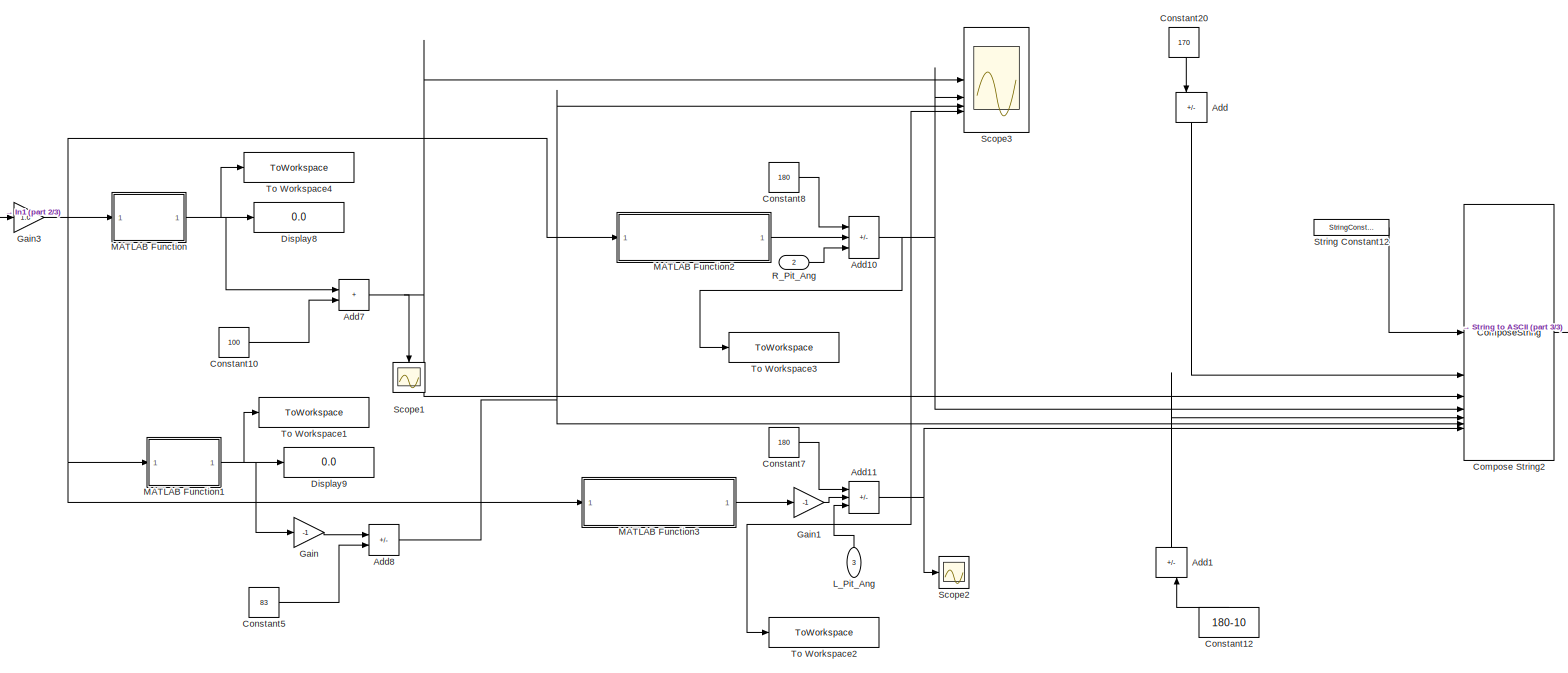
[diagram: 优化中 FWR（当前最优）- 尝试姿态控制（周期变距）124 测王 - part 1/3, most of the canvas]
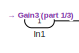
[diagram: 优化中 FWR（当前最优）- 尝试姿态控制（周期变距）124 测王 - part 2/3, middle left region]
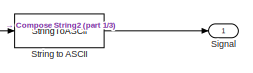
[diagram: 优化中 FWR（当前最优）- 尝试姿态控制（周期变距）124 测王 - part 3/3, middle right region]
BLOCK [SubSystem] 优化中 FWR（当前最优）- 尝试姿态控制（周期变距）124 测王
BLOCK [Sum] 优化中 FWR（当前最优）- 尝试姿态控制（周期变距）124 测王/Add
  IconShape = rectangular
  Inputs = +-
  NameLocation = left
BLOCK [Sum] 优化中 FWR（当前最优）- 尝试姿态控制（周期变距）124 测王/Add1
  IconShape = rectangular
  Inputs = -+
  NameLocation = right
BLOCK [Sum] 优化中 FWR（当前最优）- 尝试姿态控制（周期变距）124 测王/Add10
  IconShape = rectangular
  Inputs = +--
BLOCK [Sum] 优化中 FWR（当前最优）- 尝试姿态控制（周期变距）124 测王/Add11
  IconShape = rectangular
  Inputs = ++-
BLOCK [Sum] 优化中 FWR（当前最优）- 尝试姿态控制（周期变距）124 测王/Add7
  IconShape = rectangular
BLOCK [Sum] 优化中 FWR（当前最优）- 尝试姿态控制（周期变距）124 测王/Add8
  IconShape = rectangular
  Inputs = -+
BLOCK [ComposeString] 优化中 FWR（当前最优）- 尝试姿态控制（周期变距）124 测王/Compose String2
  Format = "%s%f %f %f %f %f %f"
BLOCK [Constant] 优化中 FWR（当前最优）- 尝试姿态控制（周期变距）124 测王/Constant10
  Value = 100
BLOCK [Constant] 优化中 FWR（当前最优）- 尝试姿态控制（周期变距）124 测王/Constant12
  NameLocation = right
  Value = 180-10
BLOCK [Constant] 优化中 FWR（当前最优）- 尝试姿态控制（周期变距）124 测王/Constant20
  NameLocation = left
  Value = 170
BLOCK [Constant] 优化中 FWR（当前最优）- 尝试姿态控制（周期变距）124 测王/Constant5
  Value = 83
BLOCK [Constant] 优化中 FWR（当前最优）- 尝试姿态控制（周期变距）124 测王/Constant7
  Value = 180
BLOCK [Constant] 优化中 FWR（当前最优）- 尝试姿态控制（周期变距）124 测王/Constant8
  Value = 180
BLOCK [Display] 优化中 FWR（当前最优）- 尝试姿态控制（周期变距）124 测王/Display8
  Decimation = 1
BLOCK [Display] 优化中 FWR（当前最优）- 尝试姿态控制（周期变距）124 测王/Display9
  Decimation = 1
BLOCK [Gain] 优化中 FWR（当前最优）- 尝试姿态控制（周期变距）124 测王/Gain
  Gain = -1
BLOCK [Gain] 优化中 FWR（当前最优）- 尝试姿态控制（周期变距）124 测王/Gain1
  Gain = -1
BLOCK [Gain] 优化中 FWR（当前最优）- 尝试姿态控制（周期变距）124 测王/Gain3
  Gain = 1.6
BLOCK [Inport] 优化中 FWR（当前最优）- 尝试姿态控制（周期变距）124 测王/In1
BLOCK [Inport] 优化中 FWR（当前最优）- 尝试姿态控制（周期变距）124 测王/L_Pit_Ang
  NameLocation = right
  Port = 3
BLOCK [SubSystem] 优化中 FWR（当前最优）- 尝试姿态控制（周期变距）124 测王/MATLAB Function
  ErrorFcn = Stateflow.Translate.translate
  PermitHierarchicalResolution = ExplicitOnly
  SFBlockType = MATLAB Function
  TreatAsAtomicUnit = on
BLOCK [Demux] 优化中 FWR（当前最优）- 尝试姿态控制（周期变距）124 测王/MATLAB Function/ Demux 
  Outputs = 1
BLOCK [S-Function] 优化中 FWR（当前最优）- 尝试姿态控制（周期变距）124 测王/MATLAB Function/ SFunction 
  EnableBusSupport = on
  FunctionName = sf_sfun
  PortCounts = [1 2]
  SFcnIsStateOwnerBlock = off
  SFunctionDeploymentMode = off
  Tag = Stateflow S-Function 31
BLOCK [Terminator] 优化中 FWR（当前最优）- 尝试姿态控制（周期变距）124 测王/MATLAB Function/ Terminator 
BLOCK [Inport] 优化中 FWR（当前最优）- 尝试姿态控制（周期变距）124 测王/MATLAB Function/t
BLOCK [Outport] 优化中 FWR（当前最优）- 尝试姿态控制（周期变距）124 测王/MATLAB Function/y
  VectorParamsAs1DForOutWhenUnconnected = off
BLOCK [SubSystem] 优化中 FWR（当前最优）- 尝试姿态控制（周期变距）124 测王/MATLAB Function1
  ErrorFcn = Stateflow.Translate.translate
  PermitHierarchicalResolution = ExplicitOnly
  SFBlockType = MATLAB Function
  TreatAsAtomicUnit = on
BLOCK [Demux] 优化中 FWR（当前最优）- 尝试姿态控制（周期变距）124 测王/MATLAB Function1/ Demux 
  Outputs = 1
BLOCK [S-Function] 优化中 FWR（当前最优）- 尝试姿态控制（周期变距）124 测王/MATLAB Function1/ SFunction 
  EnableBusSupport = on
  FunctionName = sf_sfun
  PortCounts = [1 2]
  SFcnIsStateOwnerBlock = off
  SFunctionDeploymentMode = off
  Tag = Stateflow S-Function 32
BLOCK [Terminator] 优化中 FWR（当前最优）- 尝试姿态控制（周期变距）124 测王/MATLAB Function1/ Terminator 
BLOCK [Inport] 优化中 FWR（当前最优）- 尝试姿态控制（周期变距）124 测王/MATLAB Function1/t
BLOCK [Outport] 优化中 FWR（当前最优）- 尝试姿态控制（周期变距）124 测王/MATLAB Function1/y
  VectorParamsAs1DForOutWhenUnconnected = off
BLOCK [SubSystem] 优化中 FWR（当前最优）- 尝试姿态控制（周期变距）124 测王/MATLAB Function2
  ErrorFcn = Stateflow.Translate.translate
  PermitHierarchicalResolution = ExplicitOnly
  SFBlockType = MATLAB Function
  TreatAsAtomicUnit = on
BLOCK [Demux] 优化中 FWR（当前最优）- 尝试姿态控制（周期变距）124 测王/MATLAB Function2/ Demux 
  Outputs = 1
BLOCK [S-Function] 优化中 FWR（当前最优）- 尝试姿态控制（周期变距）124 测王/MATLAB Function2/ SFunction 
  EnableBusSupport = on
  FunctionName = sf_sfun
  PortCounts = [1 2]
  SFcnIsStateOwnerBlock = off
  SFunctionDeploymentMode = off
  Tag = Stateflow S-Function 33
BLOCK [Terminator] 优化中 FWR（当前最优）- 尝试姿态控制（周期变距）124 测王/MATLAB Function2/ Terminator 
BLOCK [Inport] 优化中 FWR（当前最优）- 尝试姿态控制（周期变距）124 测王/MATLAB Function2/t
BLOCK [Outport] 优化中 FWR（当前最优）- 尝试姿态控制（周期变距）124 测王/MATLAB Function2/y
  VectorParamsAs1DForOutWhenUnconnected = off
BLOCK [SubSystem] 优化中 FWR（当前最优）- 尝试姿态控制（周期变距）124 测王/MATLAB Function3
  ErrorFcn = Stateflow.Translate.translate
  PermitHierarchicalResolution = ExplicitOnly
  SFBlockType = MATLAB Function
  TreatAsAtomicUnit = on
BLOCK [Demux] 优化中 FWR（当前最优）- 尝试姿态控制（周期变距）124 测王/MATLAB Function3/ Demux 
  Outputs = 1
BLOCK [S-Function] 优化中 FWR（当前最优）- 尝试姿态控制（周期变距）124 测王/MATLAB Function3/ SFunction 
  EnableBusSupport = on
  FunctionName = sf_sfun
  PortCounts = [1 2]
  SFcnIsStateOwnerBlock = off
  SFunctionDeploymentMode = off
  Tag = Stateflow S-Function 34
BLOCK [Terminator] 优化中 FWR（当前最优）- 尝试姿态控制（周期变距）124 测王/MATLAB Function3/ Terminator 
BLOCK [Inport] 优化中 FWR（当前最优）- 尝试姿态控制（周期变距）124 测王/MATLAB Function3/t
BLOCK [Outport] 优化中 FWR（当前最优）- 尝试姿态控制（周期变距）124 测王/MATLAB Function3/y
  VectorParamsAs1DForOutWhenUnconnected = off
BLOCK [Inport] 优化中 FWR（当前最优）- 尝试姿态控制（周期变距）124 测王/R_Pit_Ang
  Port = 2
BLOCK [Scope] 优化中 FWR（当前最优）- 尝试姿态控制（周期变距）124 测王/Scope1
  Floating = off
  NameLocation = left
  NumInputPorts = 1
BLOCK [Scope] 优化中 FWR（当前最优）- 尝试姿态控制（周期变距）124 测王/Scope2
  Floating = off
  NumInputPorts = 1
BLOCK [Scope] 优化中 FWR（当前最优）- 尝试姿态控制（周期变距）124 测王/Scope3
  Floating = off
  NumInputPorts = 4
BLOCK [Outport] 优化中 FWR（当前最优）- 尝试姿态控制（周期变距）124 测王/Signal
BLOCK [StringConstant] 优化中 FWR（当前最优）- 尝试姿态控制（周期变距）124 测王/String Constant12
  String = "T"
BLOCK [StringToASCII] 优化中 FWR（当前最优）- 尝试姿态控制（周期变距）124 测王/String to ASCII
  OutputVectorSize = 80
BLOCK [ToWorkspace] 优化中 FWR（当前最优）- 尝试姿态控制（周期变距）124 测王/To Workspace1
  FixptAsFi = on
  MaxDataPoints = inf
  SampleTime = -1
  SaveFormat = Timeseries
  VariableName = R_Flapping_angle
BLOCK [ToWorkspace] 优化中 FWR（当前最优）- 尝试姿态控制（周期变距）124 测王/To Workspace2
  FixptAsFi = on
  MaxDataPoints = inf
  SampleTime = -1
  SaveFormat = Timeseries
  VariableName = R_Wing_Pitch_angle
BLOCK [ToWorkspace] 优化中 FWR（当前最优）- 尝试姿态控制（周期变距）124 测王/To Workspace3
  FixptAsFi = on
  MaxDataPoints = inf
  SampleTime = -1
  SaveFormat = Timeseries
  VariableName = L_Wing_Pitch_angle
BLOCK [ToWorkspace] 优化中 FWR（当前最优）- 尝试姿态控制（周期变距）124 测王/To Workspace4
  FixptAsFi = on
  MaxDataPoints = inf
  SampleTime = -1
  SaveFormat = Timeseries
  VariableName = L_Flapping_angle
BLOCK [SubSystem] 优化中 FWR（当前最优）10.29前
  Commented = on
BLOCK [Sum] 优化中 FWR（当前最优）10.29前/Add10
  IconShape = rectangular
  Inputs = +-
BLOCK [Sum] 优化中 FWR（当前最优）10.29前/Add11
  IconShape = rectangular
BLOCK [Sum] 优化中 FWR（当前最优）10.29前/Add7
  IconShape = rectangular
BLOCK [Sum] 优化中 FWR（当前最优）10.29前/Add8
  IconShape = rectangular
  Inputs = -+
BLOCK [ComposeString] 优化中 FWR（当前最优）10.29前/Compose String2
  Format = "%s%f %f %f %f %f %f"
BLOCK [Constant] 优化中 FWR（当前最优）10.29前/Constant10
  Value = 100
BLOCK [Constant] 优化中 FWR（当前最优）10.29前/Constant12
  NameLocation = right
  Value = 180-10
BLOCK [Constant] 优化中 FWR（当前最优）10.29前/Constant20
  NameLocation = left
  Value = 170
BLOCK [Constant] 优化中 FWR（当前最优）10.29前/Constant5
  Value = 83
BLOCK [Constant] 优化中 FWR（当前最优）10.29前/Constant7
  Value = 180
BLOCK [Constant] 优化中 FWR（当前最优）10.29前/Constant8
  Value = 180
BLOCK [Display] 优化中 FWR（当前最优）10.29前/Display8
  Decimation = 1
BLOCK [Display] 优化中 FWR（当前最优）10.29前/Display9
  Decimation = 1
BLOCK [Gain] 优化中 FWR（当前最优）10.29前/Gain
  Gain = -1
BLOCK [Gain] 优化中 FWR（当前最优）10.29前/Gain1
  Gain = -1
BLOCK [Gain] 优化中 FWR（当前最优）10.29前/Gain3
  Gain = 1.6
BLOCK [Inport] 优化中 FWR（当前最优）10.29前/In1
BLOCK [SubSystem] 优化中 FWR（当前最优）10.29前/MATLAB Function
  ErrorFcn = Stateflow.Translate.translate
  PermitHierarchicalResolution = ExplicitOnly
  SFBlockType = MATLAB Function
  TreatAsAtomicUnit = on
BLOCK [Demux] 优化中 FWR（当前最优）10.29前/MATLAB Function/ Demux 
  Outputs = 1
BLOCK [S-Function] 优化中 FWR（当前最优）10.29前/MATLAB Function/ SFunction 
  EnableBusSupport = on
  FunctionName = sf_sfun
  PortCounts = [1 2]
  SFcnIsStateOwnerBlock = off
  SFunctionDeploymentMode = off
  Tag = Stateflow S-Function 50
BLOCK [Terminator] 优化中 FWR（当前最优）10.29前/MATLAB Function/ Terminator 
BLOCK [Inport] 优化中 FWR（当前最优）10.29前/MATLAB Function/t
BLOCK [Outport] 优化中 FWR（当前最优）10.29前/MATLAB Function/y
  VectorParamsAs1DForOutWhenUnconnected = off
BLOCK [SubSystem] 优化中 FWR（当前最优）10.29前/MATLAB Function1
  ErrorFcn = Stateflow.Translate.translate
  PermitHierarchicalResolution = ExplicitOnly
  SFBlockType = MATLAB Function
  TreatAsAtomicUnit = on
BLOCK [Demux] 优化中 FWR（当前最优）10.29前/MATLAB Function1/ Demux 
  Outputs = 1
BLOCK [S-Function] 优化中 FWR（当前最优）10.29前/MATLAB Function1/ SFunction 
  EnableBusSupport = on
  FunctionName = sf_sfun
  PortCounts = [1 2]
  SFcnIsStateOwnerBlock = off
  SFunctionDeploymentMode = off
  Tag = Stateflow S-Function 51
BLOCK [Terminator] 优化中 FWR（当前最优）10.29前/MATLAB Function1/ Terminator 
BLOCK [Inport] 优化中 FWR（当前最优）10.29前/MATLAB Function1/t
BLOCK [Outport] 优化中 FWR（当前最优）10.29前/MATLAB Function1/y
  VectorParamsAs1DForOutWhenUnconnected = off
BLOCK [SubSystem] 优化中 FWR（当前最优）10.29前/MATLAB Function2
  ErrorFcn = Stateflow.Translate.translate
  PermitHierarchicalResolution = ExplicitOnly
  SFBlockType = MATLAB Function
  TreatAsAtomicUnit = on
BLOCK [Demux] 优化中 FWR（当前最优）10.29前/MATLAB Function2/ Demux 
  Outputs = 1
BLOCK [S-Function] 优化中 FWR（当前最优）10.29前/MATLAB Function2/ SFunction 
  EnableBusSupport = on
  FunctionName = sf_sfun
  PortCounts = [1 2]
  SFcnIsStateOwnerBlock = off
  SFunctionDeploymentMode = off
  Tag = Stateflow S-Function 52
BLOCK [Terminator] 优化中 FWR（当前最优）10.29前/MATLAB Function2/ Terminator 
BLOCK [Inport] 优化中 FWR（当前最优）10.29前/MATLAB Function2/t
BLOCK [Outport] 优化中 FWR（当前最优）10.29前/MATLAB Function2/y
  VectorParamsAs1DForOutWhenUnconnected = off
BLOCK [SubSystem] 优化中 FWR（当前最优）10.29前/MATLAB Function3
  ErrorFcn = Stateflow.Translate.translate
  PermitHierarchicalResolution = ExplicitOnly
  SFBlockType = MATLAB Function
  TreatAsAtomicUnit = on
BLOCK [Demux] 优化中 FWR（当前最优）10.29前/MATLAB Function3/ Demux 
  Outputs = 1
BLOCK [S-Function] 优化中 FWR（当前最优）10.29前/MATLAB Function3/ SFunction 
  EnableBusSupport = on
  FunctionName = sf_sfun
  PortCounts = [1 2]
  SFcnIsStateOwnerBlock = off
  SFunctionDeploymentMode = off
  Tag = Stateflow S-Function 53
BLOCK [Terminator] 优化中 FWR（当前最优）10.29前/MATLAB Function3/ Terminator 
BLOCK [Inport] 优化中 FWR（当前最优）10.29前/MATLAB Function3/t
BLOCK [Outport] 优化中 FWR（当前最优）10.29前/MATLAB Function3/y
  VectorParamsAs1DForOutWhenUnconnected = off
BLOCK [Scope] 优化中 FWR（当前最优）10.29前/Scope1
  Floating = off
  NameLocation = left
  NumInputPorts = 1
BLOCK [Scope] 优化中 FWR（当前最优）10.29前/Scope2
  Floating = off
  NumInputPorts = 1
BLOCK [Scope] 优化中 FWR（当前最优）10.29前/Scope3
  Floating = off
  NumInputPorts = 4
BLOCK [Outport] 优化中 FWR（当前最优）10.29前/Signal
BLOCK [StringConstant] 优化中 FWR（当前最优）10.29前/String Constant12
  String = "T"
BLOCK [StringToASCII] 优化中 FWR（当前最优）10.29前/String to ASCII
  OutputVectorSize = 80
BLOCK [SubSystem] 优化中 FWR（当前最优）10.29后，改了扭转角度
  Commented = on
BLOCK [Sum] 优化中 FWR（当前最优）10.29后，改了扭转角度/Add10
  IconShape = rectangular
  Inputs = +-
BLOCK [Sum] 优化中 FWR（当前最优）10.29后，改了扭转角度/Add11
  IconShape = rectangular
BLOCK [Sum] 优化中 FWR（当前最优）10.29后，改了扭转角度/Add7
  IconShape = rectangular
BLOCK [Sum] 优化中 FWR（当前最优）10.29后，改了扭转角度/Add8
  IconShape = rectangular
  Inputs = -+
BLOCK [ComposeString] 优化中 FWR（当前最优）10.29后，改了扭转角度/Compose String2
  Format = "%s%f %f %f %f %f %f"
BLOCK [Constant] 优化中 FWR（当前最优）10.29后，改了扭转角度/Constant10
  Value = 100
BLOCK [Constant] 优化中 FWR（当前最优）10.29后，改了扭转角度/Constant12
  NameLocation = right
  Value = 180-10
BLOCK [Constant] 优化中 FWR（当前最优）10.29后，改了扭转角度/Constant20
  NameLocation = left
  Value = 170
BLOCK [Constant] 优化中 FWR（当前最优）10.29后，改了扭转角度/Constant5
  Value = 83
BLOCK [Constant] 优化中 FWR（当前最优）10.29后，改了扭转角度/Constant7
  Value = 180
BLOCK [Constant] 优化中 FWR（当前最优）10.29后，改了扭转角度/Constant8
  Value = 180
BLOCK [Display] 优化中 FWR（当前最优）10.29后，改了扭转角度/Display8
  Decimation = 1
BLOCK [Display] 优化中 FWR（当前最优）10.29后，改了扭转角度/Display9
  Decimation = 1
BLOCK [Gain] 优化中 FWR（当前最优）10.29后，改了扭转角度/Gain
  Gain = -1
BLOCK [Gain] 优化中 FWR（当前最优）10.29后，改了扭转角度/Gain1
  Gain = -1
BLOCK [Gain] 优化中 FWR（当前最优）10.29后，改了扭转角度/Gain3
  Gain = 1.6
BLOCK [Inport] 优化中 FWR（当前最优）10.29后，改了扭转角度/In1
BLOCK [SubSystem] 优化中 FWR（当前最优）10.29后，改了扭转角度/MATLAB Function
  ErrorFcn = Stateflow.Translate.translate
  PermitHierarchicalResolution = ExplicitOnly
  SFBlockType = MATLAB Function
  TreatAsAtomicUnit = on
BLOCK [Demux] 优化中 FWR（当前最优）10.29后，改了扭转角度/MATLAB Function/ Demux 
  Outputs = 1
BLOCK [S-Function] 优化中 FWR（当前最优）10.29后，改了扭转角度/MATLAB Function/ SFunction 
  EnableBusSupport = on
  FunctionName = sf_sfun
  PortCounts = [1 2]
  SFcnIsStateOwnerBlock = off
  SFunctionDeploymentMode = off
  Tag = Stateflow S-Function 18
BLOCK [Terminator] 优化中 FWR（当前最优）10.29后，改了扭转角度/MATLAB Function/ Terminator 
BLOCK [Inport] 优化中 FWR（当前最优）10.29后，改了扭转角度/MATLAB Function/t
BLOCK [Outport] 优化中 FWR（当前最优）10.29后，改了扭转角度/MATLAB Function/y
  VectorParamsAs1DForOutWhenUnconnected = off
BLOCK [SubSystem] 优化中 FWR（当前最优）10.29后，改了扭转角度/MATLAB Function1
  ErrorFcn = Stateflow.Translate.translate
  PermitHierarchicalResolution = ExplicitOnly
  SFBlockType = MATLAB Function
  TreatAsAtomicUnit = on
BLOCK [Demux] 优化中 FWR（当前最优）10.29后，改了扭转角度/MATLAB Function1/ Demux 
  Outputs = 1
BLOCK [S-Function] 优化中 FWR（当前最优）10.29后，改了扭转角度/MATLAB Function1/ SFunction 
  EnableBusSupport = on
  FunctionName = sf_sfun
  PortCounts = [1 2]
  SFcnIsStateOwnerBlock = off
  SFunctionDeploymentMode = off
  Tag = Stateflow S-Function 19
BLOCK [Terminator] 优化中 FWR（当前最优）10.29后，改了扭转角度/MATLAB Function1/ Terminator 
BLOCK [Inport] 优化中 FWR（当前最优）10.29后，改了扭转角度/MATLAB Function1/t
BLOCK [Outport] 优化中 FWR（当前最优）10.29后，改了扭转角度/MATLAB Function1/y
  VectorParamsAs1DForOutWhenUnconnected = off
BLOCK [SubSystem] 优化中 FWR（当前最优）10.29后，改了扭转角度/MATLAB Function2
  ErrorFcn = Stateflow.Translate.translate
  PermitHierarchicalResolution = ExplicitOnly
  SFBlockType = MATLAB Function
  TreatAsAtomicUnit = on
BLOCK [Demux] 优化中 FWR（当前最优）10.29后，改了扭转角度/MATLAB Function2/ Demux 
  Outputs = 1
BLOCK [S-Function] 优化中 FWR（当前最优）10.29后，改了扭转角度/MATLAB Function2/ SFunction 
  EnableBusSupport = on
  FunctionName = sf_sfun
  PortCounts = [1 2]
  SFcnIsStateOwnerBlock = off
  SFunctionDeploymentMode = off
  Tag = Stateflow S-Function 20
BLOCK [Terminator] 优化中 FWR（当前最优）10.29后，改了扭转角度/MATLAB Function2/ Terminator 
BLOCK [Inport] 优化中 FWR（当前最优）10.29后，改了扭转角度/MATLAB Function2/t
BLOCK [Outport] 优化中 FWR（当前最优）10.29后，改了扭转角度/MATLAB Function2/y
  VectorParamsAs1DForOutWhenUnconnected = off
BLOCK [SubSystem] 优化中 FWR（当前最优）10.29后，改了扭转角度/MATLAB Function3
  ErrorFcn = Stateflow.Translate.translate
  PermitHierarchicalResolution = ExplicitOnly
  SFBlockType = MATLAB Function
  TreatAsAtomicUnit = on
BLOCK [Demux] 优化中 FWR（当前最优）10.29后，改了扭转角度/MATLAB Function3/ Demux 
  Outputs = 1
BLOCK [S-Function] 优化中 FWR（当前最优）10.29后，改了扭转角度/MATLAB Function3/ SFunction 
  EnableBusSupport = on
  FunctionName = sf_sfun
  PortCounts = [1 2]
  SFcnIsStateOwnerBlock = off
  SFunctionDeploymentMode = off
  Tag = Stateflow S-Function 21
BLOCK [Terminator] 优化中 FWR（当前最优）10.29后，改了扭转角度/MATLAB Function3/ Terminator 
BLOCK [Inport] 优化中 FWR（当前最优）10.29后，改了扭转角度/MATLAB Function3/t
BLOCK [Outport] 优化中 FWR（当前最优）10.29后，改了扭转角度/MATLAB Function3/y
  VectorParamsAs1DForOutWhenUnconnected = off
BLOCK [Scope] 优化中 FWR（当前最优）10.29后，改了扭转角度/Scope1
  Floating = off
  NameLocation = left
  NumInputPorts = 1
BLOCK [Scope] 优化中 FWR（当前最优）10.29后，改了扭转角度/Scope2
  Floating = off
  NumInputPorts = 1
BLOCK [Scope] 优化中 FWR（当前最优）10.29后，改了扭转角度/Scope3
  Floating = off
  NumInputPorts = 4
BLOCK [Outport] 优化中 FWR（当前最优）10.29后，改了扭转角度/Signal
BLOCK [StringConstant] 优化中 FWR（当前最优）10.29后，改了扭转角度/String Constant12
  String = "T"
BLOCK [StringToASCII] 优化中 FWR（当前最优）10.29后，改了扭转角度/String to ASCII
  OutputVectorSize = 80
BLOCK [Display] 升力
  Decimation = 1
BLOCK [SubSystem] 启动测力台 UDP  接收 
  Commented = on
BLOCK [Clock] 启动测力台 UDP  接收 /Clock2
  DisplayTime = on
BLOCK [Rounding] 启动测力台 UDP  接收 /Floor
BLOCK [SubSystem] 启动测力台 UDP  接收 /If Action Subsystem4
  TreatAsAtomicUnit = on
BLOCK [ActionPort] 启动测力台 UDP  接收 /If Action Subsystem4/Action Port
  ActionPortLabel = case [ 0 ]:
BLOCK [Inport] 启动测力台 UDP  接收 /If Action Subsystem4/In1
BLOCK [Outport] 启动测力台 UDP  接收 /If Action Subsystem4/Out1
BLOCK [StringConstant] 启动测力台 UDP  接收 /String Constant6
  NameLocation = top
  String = "S"
BLOCK [StringToASCII] 启动测力台 UDP  接收 /String to ASCII9
BLOCK [SwitchCase] 启动测力台 UDP  接收 /Switch Case
  CaseConditions = {0,1,2}
BLOCK [Reference] 启动测力台 UDP  接收 /UDP Send1  REF=dspnetwork/UDP Send
  SourceBlock = dspnetwork/UDP Send
  SourceProductName = Simulink
  SourceType = UDP Send
BLOCK [Constant] 拍动频率
  Value = 5
BLOCK [Display] 推杆量
  Decimation = 1
BLOCK [Display] 推杆量1
  Decimation = 1
BLOCK [SubSystem] 普通扑翼
BLOCK [Sum] 普通扑翼/Add10
  IconShape = rectangular
  Inputs = +--
BLOCK [Sum] 普通扑翼/Add11
  IconShape = rectangular
  Inputs = +++
BLOCK [Sum] 普通扑翼/Add7
  IconShape = rectangular
BLOCK [Sum] 普通扑翼/Add8
  IconShape = rectangular
  Inputs = -+
BLOCK [ComposeString] 普通扑翼/Compose String2
  Format = "%s%f %f %f %f %f %f"
BLOCK [Constant] 普通扑翼/Constant10
  Value = 100
BLOCK [Constant] 普通扑翼/Constant5
  Value = 83
BLOCK [Constant] 普通扑翼/Constant7
  Value = 0
BLOCK [Constant] 普通扑翼/Constant8
  Value = 180
BLOCK [Display] 普通扑翼/Display8
  Decimation = 1
BLOCK [Display] 普通扑翼/Display9
  Decimation = 1
BLOCK [Gain] 普通扑翼/Gain3
  Gain = 1.6
BLOCK [Inport] 普通扑翼/In1
BLOCK [Inport] 普通扑翼/L_Pit_Ang
  Port = 3
BLOCK [SubSystem] 普通扑翼/MATLAB Function
  ErrorFcn = Stateflow.Translate.translate
  PermitHierarchicalResolution = ExplicitOnly
  SFBlockType = MATLAB Function
  TreatAsAtomicUnit = on
BLOCK [Demux] 普通扑翼/MATLAB Function/ Demux 
  Outputs = 1
BLOCK [S-Function] 普通扑翼/MATLAB Function/ SFunction 
  EnableBusSupport = on
  FunctionName = sf_sfun
  PortCounts = [1 2]
  SFcnIsStateOwnerBlock = off
  SFunctionDeploymentMode = off
  Tag = Stateflow S-Function 39
BLOCK [Terminator] 普通扑翼/MATLAB Function/ Terminator 
BLOCK [Inport] 普通扑翼/MATLAB Function/t
BLOCK [Outport] 普通扑翼/MATLAB Function/y
  VectorParamsAs1DForOutWhenUnconnected = off
BLOCK [SubSystem] 普通扑翼/MATLAB Function1
  ErrorFcn = Stateflow.Translate.translate
  PermitHierarchicalResolution = ExplicitOnly
  SFBlockType = MATLAB Function
  TreatAsAtomicUnit = on
BLOCK [Demux] 普通扑翼/MATLAB Function1/ Demux 
  Outputs = 1
BLOCK [S-Function] 普通扑翼/MATLAB Function1/ SFunction 
  EnableBusSupport = on
  FunctionName = sf_sfun
  PortCounts = [1 2]
  SFcnIsStateOwnerBlock = off
  SFunctionDeploymentMode = off
  Tag = Stateflow S-Function 40
BLOCK [Terminator] 普通扑翼/MATLAB Function1/ Terminator 
BLOCK [Inport] 普通扑翼/MATLAB Function1/t
BLOCK [Outport] 普通扑翼/MATLAB Function1/y
  VectorParamsAs1DForOutWhenUnconnected = off
BLOCK [SubSystem] 普通扑翼/MATLAB Function2
  ErrorFcn = Stateflow.Translate.translate
  PermitHierarchicalResolution = ExplicitOnly
  SFBlockType = MATLAB Function
  TreatAsAtomicUnit = on
BLOCK [Demux] 普通扑翼/MATLAB Function2/ Demux 
  Outputs = 1
BLOCK [S-Function] 普通扑翼/MATLAB Function2/ SFunction 
  EnableBusSupport = on
  FunctionName = sf_sfun
  PortCounts = [1 2]
  SFcnIsStateOwnerBlock = off
  SFunctionDeploymentMode = off
  Tag = Stateflow S-Function 41
BLOCK [Terminator] 普通扑翼/MATLAB Function2/ Terminator 
BLOCK [Inport] 普通扑翼/MATLAB Function2/t
BLOCK [Outport] 普通扑翼/MATLAB Function2/y
  VectorParamsAs1DForOutWhenUnconnected = off
BLOCK [SubSystem] 普通扑翼/MATLAB Function3
  ErrorFcn = Stateflow.Translate.translate
  PermitHierarchicalResolution = ExplicitOnly
  SFBlockType = MATLAB Function
  TreatAsAtomicUnit = on
BLOCK [Demux] 普通扑翼/MATLAB Function3/ Demux 
  Outputs = 1
BLOCK [S-Function] 普通扑翼/MATLAB Function3/ SFunction 
  EnableBusSupport = on
  FunctionName = sf_sfun
  PortCounts = [1 2]
  SFcnIsStateOwnerBlock = off
  SFunctionDeploymentMode = off
  Tag = Stateflow S-Function 42
BLOCK [Terminator] 普通扑翼/MATLAB Function3/ Terminator 
BLOCK [Inport] 普通扑翼/MATLAB Function3/t
BLOCK [Outport] 普通扑翼/MATLAB Function3/y
  VectorParamsAs1DForOutWhenUnconnected = off
BLOCK [Inport] 普通扑翼/R_Pit_Ang
  Port = 2
BLOCK [Scope] 普通扑翼/Scope1
  Floating = off
  NameLocation = left
  NumInputPorts = 1
BLOCK [Scope] 普通扑翼/Scope2
  Floating = off
  NumInputPorts = 1
BLOCK [Scope] 普通扑翼/Scope3
  Floating = off
  NumInputPorts = 4
BLOCK [Outport] 普通扑翼/Signal
BLOCK [StringConstant] 普通扑翼/String Constant12
  String = "T"
BLOCK [StringToASCII] 普通扑翼/String to ASCII
  OutputVectorSize = 80
BLOCK [Constant] 普通扑翼/垂直扇动1
  NameLocation = right
  Value = 90
BLOCK [Constant] 普通扑翼/垂直扇动3
  NameLocation = left
  Value = 166-90
BLOCK [Constant] 普通扑翼/水平扇动1
  NameLocation = right
  Value = 0
BLOCK [Constant] 普通扑翼/水平扇动2
  NameLocation = left
  Value = 166
BLOCK [Constant] 最大拍幅
  Value = 120
BLOCK [SubSystem] 蜻蜓扑动-FWR模式-角度与普通蜻蜓同  45度范围
  Commented = on
BLOCK [Sum] 蜻蜓扑动-FWR模式-角度与普通蜻蜓同  45度范围/Add10
  IconShape = rectangular
  Inputs = +-
BLOCK [Sum] 蜻蜓扑动-FWR模式-角度与普通蜻蜓同  45度范围/Add11
  IconShape = rectangular
BLOCK [Sum] 蜻蜓扑动-FWR模式-角度与普通蜻蜓同  45度范围/Add7
  IconShape = rectangular
BLOCK [Sum] 蜻蜓扑动-FWR模式-角度与普通蜻蜓同  45度范围/Add8
  IconShape = rectangular
  Inputs = -+
BLOCK [ComposeString] 蜻蜓扑动-FWR模式-角度与普通蜻蜓同  45度范围/Compose String2
  Format = "%s%f %f %f %f %f %f"
BLOCK [Constant] 蜻蜓扑动-FWR模式-角度与普通蜻蜓同  45度范围/Constant10
  Value = 100
BLOCK [Constant] 蜻蜓扑动-FWR模式-角度与普通蜻蜓同  45度范围/Constant12
  NameLocation = right
  Value = 180-30
BLOCK [Constant] 蜻蜓扑动-FWR模式-角度与普通蜻蜓同  45度范围/Constant20
  NameLocation = left
  Value = 140
BLOCK [Constant] 蜻蜓扑动-FWR模式-角度与普通蜻蜓同  45度范围/Constant5
  Value = 83
BLOCK [Constant] 蜻蜓扑动-FWR模式-角度与普通蜻蜓同  45度范围/Constant7
  Value = 180
BLOCK [Constant] 蜻蜓扑动-FWR模式-角度与普通蜻蜓同  45度范围/Constant8
  Value = 180
BLOCK [Display] 蜻蜓扑动-FWR模式-角度与普通蜻蜓同  45度范围/Display8
  Decimation = 1
BLOCK [Display] 蜻蜓扑动-FWR模式-角度与普通蜻蜓同  45度范围/Display9
  Decimation = 1
BLOCK [Gain] 蜻蜓扑动-FWR模式-角度与普通蜻蜓同  45度范围/Gain
  Gain = -1
BLOCK [Gain] 蜻蜓扑动-FWR模式-角度与普通蜻蜓同  45度范围/Gain1
  Gain = -1
BLOCK [Gain] 蜻蜓扑动-FWR模式-角度与普通蜻蜓同  45度范围/Gain3
  Gain = 1.6
BLOCK [Inport] 蜻蜓扑动-FWR模式-角度与普通蜻蜓同  45度范围/In1
BLOCK [SubSystem] 蜻蜓扑动-FWR模式-角度与普通蜻蜓同  45度范围/MATLAB Function
  ErrorFcn = Stateflow.Translate.translate
  PermitHierarchicalResolution = ExplicitOnly
  SFBlockType = MATLAB Function
  TreatAsAtomicUnit = on
BLOCK [Demux] 蜻蜓扑动-FWR模式-角度与普通蜻蜓同  45度范围/MATLAB Function/ Demux 
  Outputs = 1
BLOCK [S-Function] 蜻蜓扑动-FWR模式-角度与普通蜻蜓同  45度范围/MATLAB Function/ SFunction 
  EnableBusSupport = on
  FunctionName = sf_sfun
  PortCounts = [1 2]
  SFcnIsStateOwnerBlock = off
  SFunctionDeploymentMode = off
  Tag = Stateflow S-Function 5
BLOCK [Terminator] 蜻蜓扑动-FWR模式-角度与普通蜻蜓同  45度范围/MATLAB Function/ Terminator 
BLOCK [Inport] 蜻蜓扑动-FWR模式-角度与普通蜻蜓同  45度范围/MATLAB Function/t
BLOCK [Outport] 蜻蜓扑动-FWR模式-角度与普通蜻蜓同  45度范围/MATLAB Function/y
  VectorParamsAs1DForOutWhenUnconnected = off
BLOCK [SubSystem] 蜻蜓扑动-FWR模式-角度与普通蜻蜓同  45度范围/MATLAB Function1
  ErrorFcn = Stateflow.Translate.translate
  PermitHierarchicalResolution = ExplicitOnly
  SFBlockType = MATLAB Function
  TreatAsAtomicUnit = on
BLOCK [Demux] 蜻蜓扑动-FWR模式-角度与普通蜻蜓同  45度范围/MATLAB Function1/ Demux 
  Outputs = 1
BLOCK [S-Function] 蜻蜓扑动-FWR模式-角度与普通蜻蜓同  45度范围/MATLAB Function1/ SFunction 
  EnableBusSupport = on
  FunctionName = sf_sfun
  PortCounts = [1 2]
  SFcnIsStateOwnerBlock = off
  SFunctionDeploymentMode = off
  Tag = Stateflow S-Function 6
BLOCK [Terminator] 蜻蜓扑动-FWR模式-角度与普通蜻蜓同  45度范围/MATLAB Function1/ Terminator 
BLOCK [Inport] 蜻蜓扑动-FWR模式-角度与普通蜻蜓同  45度范围/MATLAB Function1/t
BLOCK [Outport] 蜻蜓扑动-FWR模式-角度与普通蜻蜓同  45度范围/MATLAB Function1/y
  VectorParamsAs1DForOutWhenUnconnected = off
BLOCK [SubSystem] 蜻蜓扑动-FWR模式-角度与普通蜻蜓同  45度范围/MATLAB Function2
  ErrorFcn = Stateflow.Translate.translate
  PermitHierarchicalResolution = ExplicitOnly
  SFBlockType = MATLAB Function
  TreatAsAtomicUnit = on
BLOCK [Demux] 蜻蜓扑动-FWR模式-角度与普通蜻蜓同  45度范围/MATLAB Function2/ Demux 
  Outputs = 1
BLOCK [S-Function] 蜻蜓扑动-FWR模式-角度与普通蜻蜓同  45度范围/MATLAB Function2/ SFunction 
  EnableBusSupport = on
  FunctionName = sf_sfun
  PortCounts = [1 2]
  SFcnIsStateOwnerBlock = off
  SFunctionDeploymentMode = off
  Tag = Stateflow S-Function 8
BLOCK [Terminator] 蜻蜓扑动-FWR模式-角度与普通蜻蜓同  45度范围/MATLAB Function2/ Terminator 
BLOCK [Inport] 蜻蜓扑动-FWR模式-角度与普通蜻蜓同  45度范围/MATLAB Function2/t
BLOCK [Outport] 蜻蜓扑动-FWR模式-角度与普通蜻蜓同  45度范围/MATLAB Function2/y
  VectorParamsAs1DForOutWhenUnconnected = off
BLOCK [SubSystem] 蜻蜓扑动-FWR模式-角度与普通蜻蜓同  45度范围/MATLAB Function3
  ErrorFcn = Stateflow.Translate.translate
  PermitHierarchicalResolution = ExplicitOnly
  SFBlockType = MATLAB Function
  TreatAsAtomicUnit = on
BLOCK [Demux] 蜻蜓扑动-FWR模式-角度与普通蜻蜓同  45度范围/MATLAB Function3/ Demux 
  Outputs = 1
BLOCK [S-Function] 蜻蜓扑动-FWR模式-角度与普通蜻蜓同  45度范围/MATLAB Function3/ SFunction 
  EnableBusSupport = on
  FunctionName = sf_sfun
  PortCounts = [1 2]
  SFcnIsStateOwnerBlock = off
  SFunctionDeploymentMode = off
  Tag = Stateflow S-Function 9
BLOCK [Terminator] 蜻蜓扑动-FWR模式-角度与普通蜻蜓同  45度范围/MATLAB Function3/ Terminator 
BLOCK [Inport] 蜻蜓扑动-FWR模式-角度与普通蜻蜓同  45度范围/MATLAB Function3/t
BLOCK [Outport] 蜻蜓扑动-FWR模式-角度与普通蜻蜓同  45度范围/MATLAB Function3/y
  VectorParamsAs1DForOutWhenUnconnected = off
BLOCK [Scope] 蜻蜓扑动-FWR模式-角度与普通蜻蜓同  45度范围/Scope1
  Floating = off
  NameLocation = left
  NumInputPorts = 1
BLOCK [Scope] 蜻蜓扑动-FWR模式-角度与普通蜻蜓同  45度范围/Scope2
  Floating = off
  NumInputPorts = 1
BLOCK [Scope] 蜻蜓扑动-FWR模式-角度与普通蜻蜓同  45度范围/Scope3
  Floating = off
  NumInputPorts = 4
BLOCK [Outport] 蜻蜓扑动-FWR模式-角度与普通蜻蜓同  45度范围/Signal
BLOCK [StringConstant] 蜻蜓扑动-FWR模式-角度与普通蜻蜓同  45度范围/String Constant12
  String = "T"
BLOCK [StringToASCII] 蜻蜓扑动-FWR模式-角度与普通蜻蜓同  45度范围/String to ASCII
  OutputVectorSize = 80
BLOCK [SubSystem] 蜻蜓扑动-VTOL模式 45度范围
  Commented = on
BLOCK [Sum] 蜻蜓扑动-VTOL模式 45度范围/Add10
  IconShape = rectangular
  Inputs = +-
BLOCK [Sum] 蜻蜓扑动-VTOL模式 45度范围/Add11
  IconShape = rectangular
BLOCK [Sum] 蜻蜓扑动-VTOL模式 45度范围/Add7
  IconShape = rectangular
BLOCK [Sum] 蜻蜓扑动-VTOL模式 45度范围/Add8
  IconShape = rectangular
  Inputs = -+
BLOCK [ComposeString] 蜻蜓扑动-VTOL模式 45度范围/Compose String2
  Format = "%s%f %f %f %f %f %f"
BLOCK [Constant] 蜻蜓扑动-VTOL模式 45度范围/Constant10
  Value = 100
BLOCK [Constant] 蜻蜓扑动-VTOL模式 45度范围/Constant12
  NameLocation = right
  Value = 30
BLOCK [Constant] 蜻蜓扑动-VTOL模式 45度范围/Constant20
  NameLocation = left
  Value = 140
BLOCK [Constant] 蜻蜓扑动-VTOL模式 45度范围/Constant5
  Value = 83
BLOCK [Constant] 蜻蜓扑动-VTOL模式 45度范围/Constant7
  Value = 0
BLOCK [Constant] 蜻蜓扑动-VTOL模式 45度范围/Constant8
  Value = 180
BLOCK [Display] 蜻蜓扑动-VTOL模式 45度范围/Display8
  Decimation = 1
BLOCK [Display] 蜻蜓扑动-VTOL模式 45度范围/Display9
  Decimation = 1
BLOCK [Gain] 蜻蜓扑动-VTOL模式 45度范围/Gain3
  Gain = 1.6
BLOCK [Inport] 蜻蜓扑动-VTOL模式 45度范围/In1
BLOCK [SubSystem] 蜻蜓扑动-VTOL模式 45度范围/MATLAB Function
  ErrorFcn = Stateflow.Translate.translate
  PermitHierarchicalResolution = ExplicitOnly
  SFBlockType = MATLAB Function
  TreatAsAtomicUnit = on
BLOCK [Demux] 蜻蜓扑动-VTOL模式 45度范围/MATLAB Function/ Demux 
  Outputs = 1
BLOCK [S-Function] 蜻蜓扑动-VTOL模式 45度范围/MATLAB Function/ SFunction 
  EnableBusSupport = on
  FunctionName = sf_sfun
  PortCounts = [1 2]
  SFcnIsStateOwnerBlock = off
  SFunctionDeploymentMode = off
  Tag = Stateflow S-Function 2
BLOCK [Terminator] 蜻蜓扑动-VTOL模式 45度范围/MATLAB Function/ Terminator 
BLOCK [Inport] 蜻蜓扑动-VTOL模式 45度范围/MATLAB Function/t
BLOCK [Outport] 蜻蜓扑动-VTOL模式 45度范围/MATLAB Function/y
  VectorParamsAs1DForOutWhenUnconnected = off
BLOCK [SubSystem] 蜻蜓扑动-VTOL模式 45度范围/MATLAB Function1
  ErrorFcn = Stateflow.Translate.translate
  PermitHierarchicalResolution = ExplicitOnly
  SFBlockType = MATLAB Function
  TreatAsAtomicUnit = on
BLOCK [Demux] 蜻蜓扑动-VTOL模式 45度范围/MATLAB Function1/ Demux 
  Outputs = 1
BLOCK [S-Function] 蜻蜓扑动-VTOL模式 45度范围/MATLAB Function1/ SFunction 
  EnableBusSupport = on
  FunctionName = sf_sfun
  PortCounts = [1 2]
  SFcnIsStateOwnerBlock = off
  SFunctionDeploymentMode = off
  Tag = Stateflow S-Function 1
BLOCK [Terminator] 蜻蜓扑动-VTOL模式 45度范围/MATLAB Function1/ Terminator 
BLOCK [Inport] 蜻蜓扑动-VTOL模式 45度范围/MATLAB Function1/t
BLOCK [Outport] 蜻蜓扑动-VTOL模式 45度范围/MATLAB Function1/y
  VectorParamsAs1DForOutWhenUnconnected = off
BLOCK [SubSystem] 蜻蜓扑动-VTOL模式 45度范围/MATLAB Function2
  ErrorFcn = Stateflow.Translate.translate
  PermitHierarchicalResolution = ExplicitOnly
  SFBlockType = MATLAB Function
  TreatAsAtomicUnit = on
BLOCK [Demux] 蜻蜓扑动-VTOL模式 45度范围/MATLAB Function2/ Demux 
  Outputs = 1
BLOCK [S-Function] 蜻蜓扑动-VTOL模式 45度范围/MATLAB Function2/ SFunction 
  EnableBusSupport = on
  FunctionName = sf_sfun
  PortCounts = [1 2]
  SFcnIsStateOwnerBlock = off
  SFunctionDeploymentMode = off
  Tag = Stateflow S-Function 3
BLOCK [Terminator] 蜻蜓扑动-VTOL模式 45度范围/MATLAB Function2/ Terminator 
BLOCK [Inport] 蜻蜓扑动-VTOL模式 45度范围/MATLAB Function2/t
BLOCK [Outport] 蜻蜓扑动-VTOL模式 45度范围/MATLAB Function2/y
  VectorParamsAs1DForOutWhenUnconnected = off
BLOCK [SubSystem] 蜻蜓扑动-VTOL模式 45度范围/MATLAB Function3
  ErrorFcn = Stateflow.Translate.translate
  PermitHierarchicalResolution = ExplicitOnly
  SFBlockType = MATLAB Function
  TreatAsAtomicUnit = on
BLOCK [Demux] 蜻蜓扑动-VTOL模式 45度范围/MATLAB Function3/ Demux 
  Outputs = 1
BLOCK [S-Function] 蜻蜓扑动-VTOL模式 45度范围/MATLAB Function3/ SFunction 
  EnableBusSupport = on
  FunctionName = sf_sfun
  PortCounts = [1 2]
  SFcnIsStateOwnerBlock = off
  SFunctionDeploymentMode = off
  Tag = Stateflow S-Function 4
BLOCK [Terminator] 蜻蜓扑动-VTOL模式 45度范围/MATLAB Function3/ Terminator 
BLOCK [Inport] 蜻蜓扑动-VTOL模式 45度范围/MATLAB Function3/t
BLOCK [Outport] 蜻蜓扑动-VTOL模式 45度范围/MATLAB Function3/y
  VectorParamsAs1DForOutWhenUnconnected = off
BLOCK [Scope] 蜻蜓扑动-VTOL模式 45度范围/Scope1
  Floating = off
  NameLocation = left
  NumInputPorts = 1
BLOCK [Scope] 蜻蜓扑动-VTOL模式 45度范围/Scope2
  Floating = off
  NumInputPorts = 1
BLOCK [Scope] 蜻蜓扑动-VTOL模式 45度范围/Scope3
  Floating = off
  NumInputPorts = 4
BLOCK [Outport] 蜻蜓扑动-VTOL模式 45度范围/Signal
BLOCK [StringConstant] 蜻蜓扑动-VTOL模式 45度范围/String Constant12
  String = "T"
BLOCK [StringToASCII] 蜻蜓扑动-VTOL模式 45度范围/String to ASCII
  OutputVectorSize = 80
BLOCK [SubSystem] 蜻蜓改扑翼
BLOCK [Sum] 蜻蜓改扑翼/Add10
  IconShape = rectangular
  Inputs = +--
BLOCK [Sum] 蜻蜓改扑翼/Add11
  IconShape = rectangular
  Inputs = +++
BLOCK [Sum] 蜻蜓改扑翼/Add7
  IconShape = rectangular
BLOCK [Sum] 蜻蜓改扑翼/Add8
  IconShape = rectangular
  Inputs = -+
BLOCK [ComposeString] 蜻蜓改扑翼/Compose String2
  Format = "%s%f %f %f %f %f %f"
BLOCK [Constant] 蜻蜓改扑翼/Constant10
  Value = 100
BLOCK [Constant] 蜻蜓改扑翼/Constant12
  NameLocation = right
  Value = 0
BLOCK [Constant] 蜻蜓改扑翼/Constant20
  NameLocation = left
  Value = 166
BLOCK [Constant] 蜻蜓改扑翼/Constant5
  Value = 83
BLOCK [Constant] 蜻蜓改扑翼/Constant7
  Value = 0
BLOCK [Constant] 蜻蜓改扑翼/Constant8
  Value = 180
BLOCK [Display] 蜻蜓改扑翼/Display8
  Decimation = 1
BLOCK [Display] 蜻蜓改扑翼/Display9
  Decimation = 1
BLOCK [Gain] 蜻蜓改扑翼/Gain3
  Gain = 1.6
BLOCK [Inport] 蜻蜓改扑翼/In1
BLOCK [Inport] 蜻蜓改扑翼/L_Pit_Ang
  Port = 3
BLOCK [SubSystem] 蜻蜓改扑翼/MATLAB Function
  ErrorFcn = Stateflow.Translate.translate
  PermitHierarchicalResolution = ExplicitOnly
  SFBlockType = MATLAB Function
  TreatAsAtomicUnit = on
BLOCK [Demux] 蜻蜓改扑翼/MATLAB Function/ Demux 
  Outputs = 1
BLOCK [S-Function] 蜻蜓改扑翼/MATLAB Function/ SFunction 
  EnableBusSupport = on
  FunctionName = sf_sfun
  PortCounts = [1 2]
  SFcnIsStateOwnerBlock = off
  SFunctionDeploymentMode = off
  Tag = Stateflow S-Function 22
BLOCK [Terminator] 蜻蜓改扑翼/MATLAB Function/ Terminator 
BLOCK [Inport] 蜻蜓改扑翼/MATLAB Function/t
BLOCK [Outport] 蜻蜓改扑翼/MATLAB Function/y
  VectorParamsAs1DForOutWhenUnconnected = off
BLOCK [SubSystem] 蜻蜓改扑翼/MATLAB Function1
  ErrorFcn = Stateflow.Translate.translate
  PermitHierarchicalResolution = ExplicitOnly
  SFBlockType = MATLAB Function
  TreatAsAtomicUnit = on
BLOCK [Demux] 蜻蜓改扑翼/MATLAB Function1/ Demux 
  Outputs = 1
BLOCK [S-Function] 蜻蜓改扑翼/MATLAB Function1/ SFunction 
  EnableBusSupport = on
  FunctionName = sf_sfun
  PortCounts = [1 2]
  SFcnIsStateOwnerBlock = off
  SFunctionDeploymentMode = off
  Tag = Stateflow S-Function 23
BLOCK [Terminator] 蜻蜓改扑翼/MATLAB Function1/ Terminator 
BLOCK [Inport] 蜻蜓改扑翼/MATLAB Function1/t
BLOCK [Outport] 蜻蜓改扑翼/MATLAB Function1/y
  VectorParamsAs1DForOutWhenUnconnected = off
BLOCK [SubSystem] 蜻蜓改扑翼/MATLAB Function2
  ErrorFcn = Stateflow.Translate.translate
  PermitHierarchicalResolution = ExplicitOnly
  SFBlockType = MATLAB Function
  TreatAsAtomicUnit = on
BLOCK [Demux] 蜻蜓改扑翼/MATLAB Function2/ Demux 
  Outputs = 1
BLOCK [S-Function] 蜻蜓改扑翼/MATLAB Function2/ SFunction 
  EnableBusSupport = on
  FunctionName = sf_sfun
  PortCounts = [1 2]
  SFcnIsStateOwnerBlock = off
  SFunctionDeploymentMode = off
  Tag = Stateflow S-Function 24
BLOCK [Terminator] 蜻蜓改扑翼/MATLAB Function2/ Terminator 
BLOCK [Inport] 蜻蜓改扑翼/MATLAB Function2/t
BLOCK [Outport] 蜻蜓改扑翼/MATLAB Function2/y
  VectorParamsAs1DForOutWhenUnconnected = off
BLOCK [SubSystem] 蜻蜓改扑翼/MATLAB Function3
  ErrorFcn = Stateflow.Translate.translate
  PermitHierarchicalResolution = ExplicitOnly
  SFBlockType = MATLAB Function
  TreatAsAtomicUnit = on
BLOCK [Demux] 蜻蜓改扑翼/MATLAB Function3/ Demux 
  Outputs = 1
BLOCK [S-Function] 蜻蜓改扑翼/MATLAB Function3/ SFunction 
  EnableBusSupport = on
  FunctionName = sf_sfun
  PortCounts = [1 2]
  SFcnIsStateOwnerBlock = off
  SFunctionDeploymentMode = off
  Tag = Stateflow S-Function 25
BLOCK [Terminator] 蜻蜓改扑翼/MATLAB Function3/ Terminator 
BLOCK [Inport] 蜻蜓改扑翼/MATLAB Function3/t
BLOCK [Outport] 蜻蜓改扑翼/MATLAB Function3/y
  VectorParamsAs1DForOutWhenUnconnected = off
BLOCK [Inport] 蜻蜓改扑翼/R_Pit_Ang
  Port = 2
BLOCK [Scope] 蜻蜓改扑翼/Scope1
  Floating = off
  NameLocation = left
  NumInputPorts = 1
BLOCK [Scope] 蜻蜓改扑翼/Scope2
  Floating = off
  NumInputPorts = 1
BLOCK [Scope] 蜻蜓改扑翼/Scope3
  Floating = off
  NumInputPorts = 4
BLOCK [Outport] 蜻蜓改扑翼/Signal
BLOCK [StringConstant] 蜻蜓改扑翼/String Constant12
  String = "T"
BLOCK [StringToASCII] 蜻蜓改扑翼/String to ASCII
  OutputVectorSize = 80
BLOCK [Display] 角度
  Decimation = 1
  Format = long
BLOCK [Display] 角速度
  Decimation = 1
BLOCK [SubSystem] 论文模式 FWR（拍幅：10//-10 扭转角5//25）Cl5.11? 升力没论文说的大 1
  Commented = on
BLOCK [Sum] 论文模式 FWR（拍幅：10//-10 扭转角5//25）Cl5.11? 升力没论文说的大 1/Add10
  IconShape = rectangular
  Inputs = +-
BLOCK [Sum] 论文模式 FWR（拍幅：10//-10 扭转角5//25）Cl5.11? 升力没论文说的大 1/Add11
  IconShape = rectangular
BLOCK [Sum] 论文模式 FWR（拍幅：10//-10 扭转角5//25）Cl5.11? 升力没论文说的大 1/Add7
  IconShape = rectangular
BLOCK [Sum] 论文模式 FWR（拍幅：10//-10 扭转角5//25）Cl5.11? 升力没论文说的大 1/Add8
  IconShape = rectangular
  Inputs = -+
BLOCK [ComposeString] 论文模式 FWR（拍幅：10//-10 扭转角5//25）Cl5.11? 升力没论文说的大 1/Compose String2
  Format = "%s%f %f %f %f %f %f"
BLOCK [Constant] 论文模式 FWR（拍幅：10//-10 扭转角5//25）Cl5.11? 升力没论文说的大 1/Constant10
  Value = 100
BLOCK [Constant] 论文模式 FWR（拍幅：10//-10 扭转角5//25）Cl5.11? 升力没论文说的大 1/Constant12
  NameLocation = right
  Value = 180-10
BLOCK [Constant] 论文模式 FWR（拍幅：10//-10 扭转角5//25）Cl5.11? 升力没论文说的大 1/Constant20
  NameLocation = left
  Value = 170
BLOCK [Constant] 论文模式 FWR（拍幅：10//-10 扭转角5//25）Cl5.11? 升力没论文说的大 1/Constant5
  Value = 83
BLOCK [Constant] 论文模式 FWR（拍幅：10//-10 扭转角5//25）Cl5.11? 升力没论文说的大 1/Constant7
  Value = 180
BLOCK [Constant] 论文模式 FWR（拍幅：10//-10 扭转角5//25）Cl5.11? 升力没论文说的大 1/Constant8
  Value = 180
BLOCK [Display] 论文模式 FWR（拍幅：10//-10 扭转角5//25）Cl5.11? 升力没论文说的大 1/Display8
  Decimation = 1
BLOCK [Display] 论文模式 FWR（拍幅：10//-10 扭转角5//25）Cl5.11? 升力没论文说的大 1/Display9
  Decimation = 1
BLOCK [Gain] 论文模式 FWR（拍幅：10//-10 扭转角5//25）Cl5.11? 升力没论文说的大 1/Gain
  Gain = -1
BLOCK [Gain] 论文模式 FWR（拍幅：10//-10 扭转角5//25）Cl5.11? 升力没论文说的大 1/Gain1
  Gain = -1
BLOCK [Gain] 论文模式 FWR（拍幅：10//-10 扭转角5//25）Cl5.11? 升力没论文说的大 1/Gain3
  Gain = 1.6
BLOCK [Inport] 论文模式 FWR（拍幅：10//-10 扭转角5//25）Cl5.11? 升力没论文说的大 1/In1
BLOCK [SubSystem] 论文模式 FWR（拍幅：10//-10 扭转角5//25）Cl5.11? 升力没论文说的大 1/MATLAB Function
  ErrorFcn = Stateflow.Translate.translate
  PermitHierarchicalResolution = ExplicitOnly
  SFBlockType = MATLAB Function
  TreatAsAtomicUnit = on
BLOCK [Demux] 论文模式 FWR（拍幅：10//-10 扭转角5//25）Cl5.11? 升力没论文说的大 1/MATLAB Function/ Demux 
  Outputs = 1
BLOCK [S-Function] 论文模式 FWR（拍幅：10//-10 扭转角5//25）Cl5.11? 升力没论文说的大 1/MATLAB Function/ SFunction 
  EnableBusSupport = on
  FunctionName = sf_sfun
  PortCounts = [1 2]
  SFcnIsStateOwnerBlock = off
  SFunctionDeploymentMode = off
  Tag = Stateflow S-Function 46
BLOCK [Terminator] 论文模式 FWR（拍幅：10//-10 扭转角5//25）Cl5.11? 升力没论文说的大 1/MATLAB Function/ Terminator 
BLOCK [Inport] 论文模式 FWR（拍幅：10//-10 扭转角5//25）Cl5.11? 升力没论文说的大 1/MATLAB Function/t
BLOCK [Outport] 论文模式 FWR（拍幅：10//-10 扭转角5//25）Cl5.11? 升力没论文说的大 1/MATLAB Function/y
  VectorParamsAs1DForOutWhenUnconnected = off
BLOCK [SubSystem] 论文模式 FWR（拍幅：10//-10 扭转角5//25）Cl5.11? 升力没论文说的大 1/MATLAB Function1
  ErrorFcn = Stateflow.Translate.translate
  PermitHierarchicalResolution = ExplicitOnly
  SFBlockType = MATLAB Function
  TreatAsAtomicUnit = on
BLOCK [Demux] 论文模式 FWR（拍幅：10//-10 扭转角5//25）Cl5.11? 升力没论文说的大 1/MATLAB Function1/ Demux 
  Outputs = 1
BLOCK [S-Function] 论文模式 FWR（拍幅：10//-10 扭转角5//25）Cl5.11? 升力没论文说的大 1/MATLAB Function1/ SFunction 
  EnableBusSupport = on
  FunctionName = sf_sfun
  PortCounts = [1 2]
  SFcnIsStateOwnerBlock = off
  SFunctionDeploymentMode = off
  Tag = Stateflow S-Function 47
BLOCK [Terminator] 论文模式 FWR（拍幅：10//-10 扭转角5//25）Cl5.11? 升力没论文说的大 1/MATLAB Function1/ Terminator 
BLOCK [Inport] 论文模式 FWR（拍幅：10//-10 扭转角5//25）Cl5.11? 升力没论文说的大 1/MATLAB Function1/t
BLOCK [Outport] 论文模式 FWR（拍幅：10//-10 扭转角5//25）Cl5.11? 升力没论文说的大 1/MATLAB Function1/y
  VectorParamsAs1DForOutWhenUnconnected = off
BLOCK [SubSystem] 论文模式 FWR（拍幅：10//-10 扭转角5//25）Cl5.11? 升力没论文说的大 1/MATLAB Function2
  ErrorFcn = Stateflow.Translate.translate
  PermitHierarchicalResolution = ExplicitOnly
  SFBlockType = MATLAB Function
  TreatAsAtomicUnit = on
BLOCK [Demux] 论文模式 FWR（拍幅：10//-10 扭转角5//25）Cl5.11? 升力没论文说的大 1/MATLAB Function2/ Demux 
  Outputs = 1
BLOCK [S-Function] 论文模式 FWR（拍幅：10//-10 扭转角5//25）Cl5.11? 升力没论文说的大 1/MATLAB Function2/ SFunction 
  EnableBusSupport = on
  FunctionName = sf_sfun
  PortCounts = [1 2]
  SFcnIsStateOwnerBlock = off
  SFunctionDeploymentMode = off
  Tag = Stateflow S-Function 48
BLOCK [Terminator] 论文模式 FWR（拍幅：10//-10 扭转角5//25）Cl5.11? 升力没论文说的大 1/MATLAB Function2/ Terminator 
BLOCK [Inport] 论文模式 FWR（拍幅：10//-10 扭转角5//25）Cl5.11? 升力没论文说的大 1/MATLAB Function2/t
BLOCK [Outport] 论文模式 FWR（拍幅：10//-10 扭转角5//25）Cl5.11? 升力没论文说的大 1/MATLAB Function2/y
  VectorParamsAs1DForOutWhenUnconnected = off
BLOCK [SubSystem] 论文模式 FWR（拍幅：10//-10 扭转角5//25）Cl5.11? 升力没论文说的大 1/MATLAB Function3
  ErrorFcn = Stateflow.Translate.translate
  PermitHierarchicalResolution = ExplicitOnly
  SFBlockType = MATLAB Function
  TreatAsAtomicUnit = on
BLOCK [Demux] 论文模式 FWR（拍幅：10//-10 扭转角5//25）Cl5.11? 升力没论文说的大 1/MATLAB Function3/ Demux 
  Outputs = 1
BLOCK [S-Function] 论文模式 FWR（拍幅：10//-10 扭转角5//25）Cl5.11? 升力没论文说的大 1/MATLAB Function3/ SFunction 
  EnableBusSupport = on
  FunctionName = sf_sfun
  PortCounts = [1 2]
  SFcnIsStateOwnerBlock = off
  SFunctionDeploymentMode = off
  Tag = Stateflow S-Function 49
BLOCK [Terminator] 论文模式 FWR（拍幅：10//-10 扭转角5//25）Cl5.11? 升力没论文说的大 1/MATLAB Function3/ Terminator 
BLOCK [Inport] 论文模式 FWR（拍幅：10//-10 扭转角5//25）Cl5.11? 升力没论文说的大 1/MATLAB Function3/t
BLOCK [Outport] 论文模式 FWR（拍幅：10//-10 扭转角5//25）Cl5.11? 升力没论文说的大 1/MATLAB Function3/y
  VectorParamsAs1DForOutWhenUnconnected = off
BLOCK [Scope] 论文模式 FWR（拍幅：10//-10 扭转角5//25）Cl5.11? 升力没论文说的大 1/Scope1
  Floating = off
  NameLocation = left
  NumInputPorts = 1
BLOCK [Scope] 论文模式 FWR（拍幅：10//-10 扭转角5//25）Cl5.11? 升力没论文说的大 1/Scope2
  Floating = off
  NumInputPorts = 1
BLOCK [Scope] 论文模式 FWR（拍幅：10//-10 扭转角5//25）Cl5.11? 升力没论文说的大 1/Scope3
  Floating = off
  NumInputPorts = 4
BLOCK [Outport] 论文模式 FWR（拍幅：10//-10 扭转角5//25）Cl5.11? 升力没论文说的大 1/Signal
BLOCK [StringConstant] 论文模式 FWR（拍幅：10//-10 扭转角5//25）Cl5.11? 升力没论文说的大 1/String Constant12
  String = "T"
BLOCK [StringToASCII] 论文模式 FWR（拍幅：10//-10 扭转角5//25）Cl5.11? 升力没论文说的大 1/String to ASCII
  OutputVectorSize = 80
NET 10.27 想做对称推力测试/Add10:1 -> 10.27 想做对称推力测试/Compose String2:4, 10.27 想做对称推力测试/Scope3:2
NET 10.27 想做对称推力测试/Add11:1 -> 10.27 想做对称推力测试/Compose String2:7, 10.27 想做对称推力测试/Scope2:1, 10.27 想做对称推力测试/Scope3:4
NET 10.27 想做对称推力测试/Add7:1 -> 10.27 想做对称推力测试/Compose String2:3, 10.27 想做对称推力测试/Scope1:1, 10.27 想做对称推力测试/Scope3:1
NET 10.27 想做对称推力测试/Add8:1 -> 10.27 想做对称推力测试/Compose String2:6, 10.27 想做对称推力测试/Scope3:3
LINE 10.27 想做对称推力测试/Compose String2:1 -> 10.27 想做对称推力测试/String to ASCII:1
LINE 10.27 想做对称推力测试/Constant10:1 -> 10.27 想做对称推力测试/Add7:2
LINE 10.27 想做对称推力测试/Constant12:1 -> 10.27 想做对称推力测试/Compose String2:5
LINE 10.27 想做对称推力测试/Constant20:1 -> 10.27 想做对称推力测试/Compose String2:2
LINE 10.27 想做对称推力测试/Constant5:1 -> 10.27 想做对称推力测试/Add8:2
LINE 10.27 想做对称推力测试/Constant7:1 -> 10.27 想做对称推力测试/Add11:1
LINE 10.27 想做对称推力测试/Constant8:1 -> 10.27 想做对称推力测试/Add10:1
LINE 10.27 想做对称推力测试/Gain1:1 -> 10.27 想做对称推力测试/Add11:2
NET 10.27 想做对称推力测试/Gain3:1 -> 10.27 想做对称推力测试/MATLAB Function1:1, 10.27 想做对称推力测试/MATLAB Function2:1, 10.27 想做对称推力测试/MATLAB Function3:1, 10.27 想做对称推力测试/MATLAB Function:1
LINE 10.27 想做对称推力测试/Gain:1 -> 10.27 想做对称推力测试/Add8:1
LINE 10.27 想做对称推力测试/In1:1 -> 10.27 想做对称推力测试/Gain3:1
NET 10.27 想做对称推力测试/MATLAB Function1:1 -> 10.27 想做对称推力测试/Display9:1, 10.27 想做对称推力测试/Gain:1
LINE 10.27 想做对称推力测试/MATLAB Function2:1 -> 10.27 想做对称推力测试/Add10:2
LINE 10.27 想做对称推力测试/MATLAB Function3:1 -> 10.27 想做对称推力测试/Gain1:1
NET 10.27 想做对称推力测试/MATLAB Function:1 -> 10.27 想做对称推力测试/Add7:1, 10.27 想做对称推力测试/Display8:1
LINE 10.27 想做对称推力测试/String Constant12:1 -> 10.27 想做对称推力测试/Compose String2:1
LINE 10.27 想做对称推力测试/String to ASCII:1 -> 10.27 想做对称推力测试/Signal:1
NET ASCII to String2:1 -> Display10:1, If Action Subsystem2:1, Scan String4:1
LINE Add10:1 -> Saw_Tooth:1
LINE Add1:1 -> If2:1
NET Add2:1 -> Add4:2, Roll_NM1:1, Roll_init_valve:1
NET Add3:1 -> Gain8:1, Pitch_NM:1, To Workspace4:1
NET Add4:1 -> Discrete Varying Lowpass1:1, Roll_NM:1, To Workspace5:1
LINE Add5:1 -> Gain2:1
LINE Add6:1 -> 蜻蜓改扑翼:2
LINE Add7:1 -> 蜻蜓改扑翼:3
NET Add8:1 -> Display18:1, Goto3:1, To Workspace2:1, Total Pitch Cyclic Control:1, 角度:1
NET Add9:1 -> Saw_Tooth1:1, Scope3:1
NET Add:1 -> Add3:2, Pitch_NM1:1, Pitch_init_valve:1
LINE Clock1:1 -> Saw_Tooth:2
LINE Clock2:1 -> Saw_Tooth1:2
LINE Clock:1 -> Switch:2
LINE Constant1:1 -> Add1:2
LINE Constant3:1 -> Add5:2
LINE Constant4:1 -> UDP Send1:2
LINE Constant5:1 -> Add8:2
LINE Constant6:1 -> 10.27 想做对称推力测试:1
LINE Constant7:1 -> Discrete Varying Lowpass:2
LINE Constant8:1 -> Discrete Varying Lowpass1:2
LINE Constant9:1 -> Discrete Varying Lowpass2:2
LINE Constant:1 -> 蜻蜓改扑翼:1
LINE Counter1:1 -> 蜻蜓扑动-FWR模式-角度与普通蜻蜓同  45度范围:1
LINE Counter2:1 -> Msc 期间升力最大FWR模式 Msc 期间工作（拍幅：50//-20 扭转角10//50）:1
LINE Counter4:1 -> 优化中 FWR（当前最优）10.29后，改了扭转角度:1
NET Counter6:1 -> To Workspace8:1, 优化中 FWR（当前最优）- 尝试姿态控制（周期变距）124 测王:1
LINE Counter7:1 -> 普通扑翼:1
LINE Counter:1 -> 蜻蜓扑动-VTOL模式 45度范围:1
LINE Data Type Conversion1:1 -> Discrete Varying Lowpass2:1
NET Data Type Conversion4:1 -> Scope1:2, 角速度:1
LINE Demux1:1 -> Goto1:1
LINE Demux1:2 -> Terminator1:1
LINE Demux1:3 -> Terminator2:1
LINE Demux1:4 -> Terminator3:1
LINE Demux1:5 -> Goto:1
NET Discrete Varying Lowpass1:1 -> Gain1:1, Gain6:1
LINE Discrete Varying Lowpass2:1 -> Add5:1
NET Discrete Varying Lowpass:1 -> Gain5:1, Gain:1
NET FWR_Z_AXIS UDP/ASCII to String1:1 -> FWR_Z_AXIS UDP/If Action Subsystem1:1, FWR_Z_AXIS UDP/Scan String1:1
LINE FWR_Z_AXIS UDP/Add7:1 -> FWR_Z_AXIS UDP/If1:1
LINE FWR_Z_AXIS UDP/Constant2:1 -> FWR_Z_AXIS UDP/Add7:2
LINE FWR_Z_AXIS UDP/If Action Subsystem1/In1:1 -> FWR_Z_AXIS UDP/If Action Subsystem1/Out1:1
LINE FWR_Z_AXIS UDP/If Action Subsystem1:1 -> FWR_Z_AXIS UDP/Scan String2:1
LINE FWR_Z_AXIS UDP/If1:1 -> FWR_Z_AXIS UDP/If Action Subsystem1:ifaction
LINE FWR_Z_AXIS UDP/Scan String1:1 -> FWR_Z_AXIS UDP/Add7:1
LINE FWR_Z_AXIS UDP/Scan String1:4 -> FWR_Z_AXIS UDP/Add7:3
LINE FWR_Z_AXIS UDP/Scan String2:2 -> FWR_Z_AXIS UDP/Angle:1
LINE FWR_Z_AXIS UDP/Scan String2:3 -> FWR_Z_AXIS UDP/Angle_Vel:1
LINE FWR_Z_AXIS UDP/UDP Receive1:1 -> FWR_Z_AXIS UDP/ASCII to String1:1
LINE FWR_Z_AXIS UDP:1 -> Radians to Degrees:1
LINE FWR_Z_AXIS UDP:2 -> Radians to Degrees1:1
LINE From10:1 -> Add10:2
LINE From11:1 -> Gain12:1
LINE From12:1 -> Gain13:1
LINE From1:1 -> Gain7:1
LINE From2:1 -> Gain9:1
LINE From3:1 -> Gain10:1
LINE From4:1 -> Gain11:1
LINE From5:1 -> 推杆量:1
LINE From6:1 -> Gain3:1
LINE From7:1 -> 推杆量1:1
LINE From8:1 -> MATLAB Function:1
LINE From9:1 -> Add9:1
LINE From:1 -> Gain4:1
LINE Gain10:1 -> Add7:2
NET Gain11:1 -> To Workspace6:1, Total Pitch Cyclic Control:3
LINE Gain12:1 -> MATLAB Function:2
LINE Gain13:1 -> MATLAB Function:3
LINE Gain1:1 -> Mux:1
NET Gain2:1 -> MATLAB Function6:1, Scope4:1, Scope:3, To Workspace:1, 升力:1
NET Gain3:1 -> To Workspace7:1, Total Pitch Cyclic Control:2
LINE Gain4:1 -> Add6:2
LINE Gain5:1 -> Scope:1
LINE Gain6:1 -> Scope:2
LINE Gain7:1 -> Add7:1
LINE Gain8:1 -> Discrete Varying Lowpass:1
LINE Gain9:1 -> Add6:1
LINE Gain:1 -> Mux:2
LINE If Action Subsystem2/In1:1 -> If Action Subsystem2/Out1:1
NET If Action Subsystem2:1 -> Display16:1, Scan String3:1
LINE If2:1 -> If Action Subsystem2:ifaction
NET Init_Freq:1 -> Add10:1, Add9:2
LINE Joystick Input1:1 -> Demux1:1
NET MATLAB Function6:1 -> Scope:4, To Workspace1:1
NET MATLAB Function:1 -> Display7:1, Goto2:1, Scope10:1
LINE Manual Switch1:1 -> Switch:1
NET Msc 期间升力最大FWR模式 Msc 期间工作（拍幅：50//-20 扭转角10//50）/Add10:1 -> Msc 期间升力最大FWR模式 Msc 期间工作（拍幅：50//-20 扭转角10//50）/Compose String2:4, Msc 期间升力最大FWR模式 Msc 期间工作（拍幅：50//-20 扭转角10//50）/Scope3:2
NET Msc 期间升力最大FWR模式 Msc 期间工作（拍幅：50//-20 扭转角10//50）/Add11:1 -> Msc 期间升力最大FWR模式 Msc 期间工作（拍幅：50//-20 扭转角10//50）/Compose String2:7, Msc 期间升力最大FWR模式 Msc 期间工作（拍幅：50//-20 扭转角10//50）/Scope2:1, Msc 期间升力最大FWR模式 Msc 期间工作（拍幅：50//-20 扭转角10//50）/Scope3:4
NET Msc 期间升力最大FWR模式 Msc 期间工作（拍幅：50//-20 扭转角10//50）/Add7:1 -> Msc 期间升力最大FWR模式 Msc 期间工作（拍幅：50//-20 扭转角10//50）/Compose String2:3, Msc 期间升力最大FWR模式 Msc 期间工作（拍幅：50//-20 扭转角10//50）/Scope1:1, Msc 期间升力最大FWR模式 Msc 期间工作（拍幅：50//-20 扭转角10//50）/Scope3:1
NET Msc 期间升力最大FWR模式 Msc 期间工作（拍幅：50//-20 扭转角10//50）/Add8:1 -> Msc 期间升力最大FWR模式 Msc 期间工作（拍幅：50//-20 扭转角10//50）/Compose String2:6, Msc 期间升力最大FWR模式 Msc 期间工作（拍幅：50//-20 扭转角10//50）/Scope3:3
LINE Msc 期间升力最大FWR模式 Msc 期间工作（拍幅：50//-20 扭转角10//50）/Compose String2:1 -> Msc 期间升力最大FWR模式 Msc 期间工作（拍幅：50//-20 扭转角10//50）/String to ASCII:1
LINE Msc 期间升力最大FWR模式 Msc 期间工作（拍幅：50//-20 扭转角10//50）/Constant10:1 -> Msc 期间升力最大FWR模式 Msc 期间工作（拍幅：50//-20 扭转角10//50）/Add7:2
LINE Msc 期间升力最大FWR模式 Msc 期间工作（拍幅：50//-20 扭转角10//50）/Constant12:1 -> Msc 期间升力最大FWR模式 Msc 期间工作（拍幅：50//-20 扭转角10//50）/Compose String2:5
LINE Msc 期间升力最大FWR模式 Msc 期间工作（拍幅：50//-20 扭转角10//50）/Constant20:1 -> Msc 期间升力最大FWR模式 Msc 期间工作（拍幅：50//-20 扭转角10//50）/Compose String2:2
LINE Msc 期间升力最大FWR模式 Msc 期间工作（拍幅：50//-20 扭转角10//50）/Constant5:1 -> Msc 期间升力最大FWR模式 Msc 期间工作（拍幅：50//-20 扭转角10//50）/Add8:2
LINE Msc 期间升力最大FWR模式 Msc 期间工作（拍幅：50//-20 扭转角10//50）/Constant7:1 -> Msc 期间升力最大FWR模式 Msc 期间工作（拍幅：50//-20 扭转角10//50）/Add11:1
LINE Msc 期间升力最大FWR模式 Msc 期间工作（拍幅：50//-20 扭转角10//50）/Constant8:1 -> Msc 期间升力最大FWR模式 Msc 期间工作（拍幅：50//-20 扭转角10//50）/Add10:1
LINE Msc 期间升力最大FWR模式 Msc 期间工作（拍幅：50//-20 扭转角10//50）/Gain1:1 -> Msc 期间升力最大FWR模式 Msc 期间工作（拍幅：50//-20 扭转角10//50）/Add11:2
NET Msc 期间升力最大FWR模式 Msc 期间工作（拍幅：50//-20 扭转角10//50）/Gain3:1 -> Msc 期间升力最大FWR模式 Msc 期间工作（拍幅：50//-20 扭转角10//50）/MATLAB Function1:1, Msc 期间升力最大FWR模式 Msc 期间工作（拍幅：50//-20 扭转角10//50）/MATLAB Function2:1, Msc 期间升力最大FWR模式 Msc 期间工作（拍幅：50//-20 扭转角10//50）/MATLAB Function3:1, Msc 期间升力最大FWR模式 Msc 期间工作（拍幅：50//-20 扭转角10//50）/MATLAB Function:1
LINE Msc 期间升力最大FWR模式 Msc 期间工作（拍幅：50//-20 扭转角10//50）/Gain:1 -> Msc 期间升力最大FWR模式 Msc 期间工作（拍幅：50//-20 扭转角10//50）/Add8:1
LINE Msc 期间升力最大FWR模式 Msc 期间工作（拍幅：50//-20 扭转角10//50）/In1:1 -> Msc 期间升力最大FWR模式 Msc 期间工作（拍幅：50//-20 扭转角10//50）/Gain3:1
NET Msc 期间升力最大FWR模式 Msc 期间工作（拍幅：50//-20 扭转角10//50）/MATLAB Function1:1 -> Msc 期间升力最大FWR模式 Msc 期间工作（拍幅：50//-20 扭转角10//50）/Display9:1, Msc 期间升力最大FWR模式 Msc 期间工作（拍幅：50//-20 扭转角10//50）/Gain:1
LINE Msc 期间升力最大FWR模式 Msc 期间工作（拍幅：50//-20 扭转角10//50）/MATLAB Function2:1 -> Msc 期间升力最大FWR模式 Msc 期间工作（拍幅：50//-20 扭转角10//50）/Add10:2
LINE Msc 期间升力最大FWR模式 Msc 期间工作（拍幅：50//-20 扭转角10//50）/MATLAB Function3:1 -> Msc 期间升力最大FWR模式 Msc 期间工作（拍幅：50//-20 扭转角10//50）/Gain1:1
NET Msc 期间升力最大FWR模式 Msc 期间工作（拍幅：50//-20 扭转角10//50）/MATLAB Function:1 -> Msc 期间升力最大FWR模式 Msc 期间工作（拍幅：50//-20 扭转角10//50）/Add7:1, Msc 期间升力最大FWR模式 Msc 期间工作（拍幅：50//-20 扭转角10//50）/Display8:1
LINE Msc 期间升力最大FWR模式 Msc 期间工作（拍幅：50//-20 扭转角10//50）/String Constant12:1 -> Msc 期间升力最大FWR模式 Msc 期间工作（拍幅：50//-20 扭转角10//50）/Compose String2:1
LINE Msc 期间升力最大FWR模式 Msc 期间工作（拍幅：50//-20 扭转角10//50）/String to ASCII:1 -> Msc 期间升力最大FWR模式 Msc 期间工作（拍幅：50//-20 扭转角10//50）/Signal:1
LINE Mux:1 -> Output:1
LINE Pitch_init_valve_input:1 -> Add3:1
NET Radians to Degrees1:1 -> Data Type Conversion4:1, Display8:1, To Workspace3:1
LINE Radians to Degrees:1 -> Add8:1
LINE Roll_init_valve_input:1 -> Add4:1
LINE Saw_Tooth1:1 -> 两翼分频控制:1
LINE Saw_Tooth:1 -> 两翼分频控制:2
LINE Scan String3:1 -> Display11:1
NET Scan String3:2 -> Display12:1, Subsystem1:1
NET Scan String3:3 -> Display13:1, Subsystem3:1
NET Scan String3:4 -> Display14:1, Subsystem:1
NET Scan String3:5 -> Display15:1, Subsystem2:1
NET Scan String3:6 -> Data Type Conversion1:1, Display2:1
LINE Scan String3:7 -> Display1:1
LINE Scan String4:1 -> Add1:1
LINE Scan String4:7 -> Add1:3
LINE Subsystem/Gain1:1 -> Subsystem/Out1:1
LINE Subsystem/Gain:1 -> Subsystem/Gain1:1
LINE Subsystem/In1:1 -> Subsystem/Gain:1
LINE Subsystem1/Gain1:1 -> Subsystem1/Out1:1
LINE Subsystem1/Gain:1 -> Subsystem1/Gain1:1
LINE Subsystem1/In1:1 -> Subsystem1/Gain:1
NET Subsystem1:1 -> Add:1, Display3:1
LINE Subsystem2/Gain1:1 -> Subsystem2/Out1:1
LINE Subsystem2/Gain:1 -> Subsystem2/Gain1:1
LINE Subsystem2/In1:1 -> Subsystem2/Gain:1
NET Subsystem2:1 -> Add2:2, Display4:1
LINE Subsystem3/Gain1:1 -> Subsystem3/Out1:1
LINE Subsystem3/Gain:1 -> Subsystem3/Gain1:1
LINE Subsystem3/In1:1 -> Subsystem3/Gain:1
NET Subsystem3:1 -> Add2:1, Display5:1
NET Subsystem:1 -> Add:2, Display:1
NET Switch:1 -> Display19:1, UDP Send1:1
NET Total Pitch Cyclic Control:1 -> Display9:1, Scope2:1, 优化中 FWR（当前最优）- 尝试姿态控制（周期变距）124 测王:2
NET Total Pitch Cyclic Control:2 -> Display17:1, 优化中 FWR（当前最优）- 尝试姿态控制（周期变距）124 测王:3
NET UDP Receive2:1 -> ASCII to String2:1, Display6:1
NET 两翼分频控制/Add10:1 -> 两翼分频控制/Compose String2:4, 两翼分频控制/Scope3:2
NET 两翼分频控制/Add11:1 -> 两翼分频控制/Compose String2:7, 两翼分频控制/Scope2:1, 两翼分频控制/Scope3:4
LINE 两翼分频控制/Add1:1 -> 两翼分频控制/Compose String2:5
NET 两翼分频控制/Add7:1 -> 两翼分频控制/Compose String2:3, 两翼分频控制/Scope1:1, 两翼分频控制/Scope3:1
NET 两翼分频控制/Add8:1 -> 两翼分频控制/Compose String2:6, 两翼分频控制/Scope3:3
LINE 两翼分频控制/Add:1 -> 两翼分频控制/Compose String2:2
LINE 两翼分频控制/Compose String2:1 -> 两翼分频控制/String to ASCII:1
LINE 两翼分频控制/Constant10:1 -> 两翼分频控制/Add7:2
LINE 两翼分频控制/Constant12:1 -> 两翼分频控制/Add1:2
LINE 两翼分频控制/Constant20:1 -> 两翼分频控制/Add:1
LINE 两翼分频控制/Constant5:1 -> 两翼分频控制/Add8:2
LINE 两翼分频控制/Constant7:1 -> 两翼分频控制/Add11:1
LINE 两翼分频控制/Constant8:1 -> 两翼分频控制/Add10:1
LINE 两翼分频控制/Gain1:1 -> 两翼分频控制/Add11:2
NET 两翼分频控制/Gain2:1 -> 两翼分频控制/MATLAB Function1:1, 两翼分频控制/MATLAB Function3:1
NET 两翼分频控制/Gain3:1 -> 两翼分频控制/MATLAB Function2:1, 两翼分频控制/MATLAB Function:1
LINE 两翼分频控制/Gain:1 -> 两翼分频控制/Add8:1
LINE 两翼分频控制/L_Pit_Ang:1 -> 两翼分频控制/Add11:3
LINE 两翼分频控制/Left_Freq:1 -> 两翼分频控制/Gain2:1
NET 两翼分频控制/MATLAB Function1:1 -> 两翼分频控制/Display9:1, 两翼分频控制/Gain:1
LINE 两翼分频控制/MATLAB Function2:1 -> 两翼分频控制/Add10:2
LINE 两翼分频控制/MATLAB Function3:1 -> 两翼分频控制/Gain1:1
NET 两翼分频控制/MATLAB Function:1 -> 两翼分频控制/Add7:1, 两翼分频控制/Display8:1
LINE 两翼分频控制/R_Pit_Ang:1 -> 两翼分频控制/Add10:3
LINE 两翼分频控制/Right_Freq:1 -> 两翼分频控制/Gain3:1
LINE 两翼分频控制/String Constant12:1 -> 两翼分频控制/Compose String2:1
LINE 两翼分频控制/String to ASCII:1 -> 两翼分频控制/Signal:1
NET 优化中 FWR- 尝试姿态控制-小拍动幅度-新小幅度（周期变距）/Add10:1 -> 优化中 FWR- 尝试姿态控制-小拍动幅度-新小幅度（周期变距）/Compose String2:4, 优化中 FWR- 尝试姿态控制-小拍动幅度-新小幅度（周期变距）/Scope3:2
NET 优化中 FWR- 尝试姿态控制-小拍动幅度-新小幅度（周期变距）/Add11:1 -> 优化中 FWR- 尝试姿态控制-小拍动幅度-新小幅度（周期变距）/Compose String2:7, 优化中 FWR- 尝试姿态控制-小拍动幅度-新小幅度（周期变距）/Scope2:1, 优化中 FWR- 尝试姿态控制-小拍动幅度-新小幅度（周期变距）/Scope3:4
LINE 优化中 FWR- 尝试姿态控制-小拍动幅度-新小幅度（周期变距）/Add1:1 -> 优化中 FWR- 尝试姿态控制-小拍动幅度-新小幅度（周期变距）/Compose String2:5
NET 优化中 FWR- 尝试姿态控制-小拍动幅度-新小幅度（周期变距）/Add7:1 -> 优化中 FWR- 尝试姿态控制-小拍动幅度-新小幅度（周期变距）/Compose String2:3, 优化中 FWR- 尝试姿态控制-小拍动幅度-新小幅度（周期变距）/Scope1:1, 优化中 FWR- 尝试姿态控制-小拍动幅度-新小幅度（周期变距）/Scope3:1
NET 优化中 FWR- 尝试姿态控制-小拍动幅度-新小幅度（周期变距）/Add8:1 -> 优化中 FWR- 尝试姿态控制-小拍动幅度-新小幅度（周期变距）/Compose String2:6, 优化中 FWR- 尝试姿态控制-小拍动幅度-新小幅度（周期变距）/Scope3:3
LINE 优化中 FWR- 尝试姿态控制-小拍动幅度-新小幅度（周期变距）/Add:1 -> 优化中 FWR- 尝试姿态控制-小拍动幅度-新小幅度（周期变距）/Compose String2:2
LINE 优化中 FWR- 尝试姿态控制-小拍动幅度-新小幅度（周期变距）/Compose String2:1 -> 优化中 FWR- 尝试姿态控制-小拍动幅度-新小幅度（周期变距）/String to ASCII:1
LINE 优化中 FWR- 尝试姿态控制-小拍动幅度-新小幅度（周期变距）/Constant10:1 -> 优化中 FWR- 尝试姿态控制-小拍动幅度-新小幅度（周期变距）/Add7:2
LINE 优化中 FWR- 尝试姿态控制-小拍动幅度-新小幅度（周期变距）/Constant12:1 -> 优化中 FWR- 尝试姿态控制-小拍动幅度-新小幅度（周期变距）/Add1:2
LINE 优化中 FWR- 尝试姿态控制-小拍动幅度-新小幅度（周期变距）/Constant20:1 -> 优化中 FWR- 尝试姿态控制-小拍动幅度-新小幅度（周期变距）/Add:1
LINE 优化中 FWR- 尝试姿态控制-小拍动幅度-新小幅度（周期变距）/Constant5:1 -> 优化中 FWR- 尝试姿态控制-小拍动幅度-新小幅度（周期变距）/Add8:2
LINE 优化中 FWR- 尝试姿态控制-小拍动幅度-新小幅度（周期变距）/Constant7:1 -> 优化中 FWR- 尝试姿态控制-小拍动幅度-新小幅度（周期变距）/Add11:1
LINE 优化中 FWR- 尝试姿态控制-小拍动幅度-新小幅度（周期变距）/Constant8:1 -> 优化中 FWR- 尝试姿态控制-小拍动幅度-新小幅度（周期变距）/Add10:1
LINE 优化中 FWR- 尝试姿态控制-小拍动幅度-新小幅度（周期变距）/Gain1:1 -> 优化中 FWR- 尝试姿态控制-小拍动幅度-新小幅度（周期变距）/Add11:2
NET 优化中 FWR- 尝试姿态控制-小拍动幅度-新小幅度（周期变距）/Gain3:1 -> 优化中 FWR- 尝试姿态控制-小拍动幅度-新小幅度（周期变距）/MATLAB Function1:1, 优化中 FWR- 尝试姿态控制-小拍动幅度-新小幅度（周期变距）/MATLAB Function2:1, 优化中 FWR- 尝试姿态控制-小拍动幅度-新小幅度（周期变距）/MATLAB Function3:1, 优化中 FWR- 尝试姿态控制-小拍动幅度-新小幅度（周期变距）/MATLAB Function:1
LINE 优化中 FWR- 尝试姿态控制-小拍动幅度-新小幅度（周期变距）/Gain:1 -> 优化中 FWR- 尝试姿态控制-小拍动幅度-新小幅度（周期变距）/Add8:1
LINE 优化中 FWR- 尝试姿态控制-小拍动幅度-新小幅度（周期变距）/In1:1 -> 优化中 FWR- 尝试姿态控制-小拍动幅度-新小幅度（周期变距）/Gain3:1
LINE 优化中 FWR- 尝试姿态控制-小拍动幅度-新小幅度（周期变距）/L_Pit_Ang:1 -> 优化中 FWR- 尝试姿态控制-小拍动幅度-新小幅度（周期变距）/Add1:1
NET 优化中 FWR- 尝试姿态控制-小拍动幅度-新小幅度（周期变距）/MATLAB Function1:1 -> 优化中 FWR- 尝试姿态控制-小拍动幅度-新小幅度（周期变距）/Display9:1, 优化中 FWR- 尝试姿态控制-小拍动幅度-新小幅度（周期变距）/Gain:1
LINE 优化中 FWR- 尝试姿态控制-小拍动幅度-新小幅度（周期变距）/MATLAB Function2:1 -> 优化中 FWR- 尝试姿态控制-小拍动幅度-新小幅度（周期变距）/Add10:2
LINE 优化中 FWR- 尝试姿态控制-小拍动幅度-新小幅度（周期变距）/MATLAB Function3:1 -> 优化中 FWR- 尝试姿态控制-小拍动幅度-新小幅度（周期变距）/Gain1:1
NET 优化中 FWR- 尝试姿态控制-小拍动幅度-新小幅度（周期变距）/MATLAB Function:1 -> 优化中 FWR- 尝试姿态控制-小拍动幅度-新小幅度（周期变距）/Add7:1, 优化中 FWR- 尝试姿态控制-小拍动幅度-新小幅度（周期变距）/Display8:1
LINE 优化中 FWR- 尝试姿态控制-小拍动幅度-新小幅度（周期变距）/R_Pit_Ang:1 -> 优化中 FWR- 尝试姿态控制-小拍动幅度-新小幅度（周期变距）/Add:2
LINE 优化中 FWR- 尝试姿态控制-小拍动幅度-新小幅度（周期变距）/String Constant12:1 -> 优化中 FWR- 尝试姿态控制-小拍动幅度-新小幅度（周期变距）/Compose String2:1
LINE 优化中 FWR- 尝试姿态控制-小拍动幅度-新小幅度（周期变距）/String to ASCII:1 -> 优化中 FWR- 尝试姿态控制-小拍动幅度-新小幅度（周期变距）/Signal:1
NET 优化中 FWR（当前最优）- 尝试姿态控制（周期变距）124 测王/Add10:1 -> 优化中 FWR（当前最优）- 尝试姿态控制（周期变距）124 测王/Compose String2:4, 优化中 FWR（当前最优）- 尝试姿态控制（周期变距）124 测王/Scope3:2, 优化中 FWR（当前最优）- 尝试姿态控制（周期变距）124 测王/To Workspace3:1
NET 优化中 FWR（当前最优）- 尝试姿态控制（周期变距）124 测王/Add11:1 -> 优化中 FWR（当前最优）- 尝试姿态控制（周期变距）124 测王/Compose String2:7, 优化中 FWR（当前最优）- 尝试姿态控制（周期变距）124 测王/Scope2:1, 优化中 FWR（当前最优）- 尝试姿态控制（周期变距）124 测王/Scope3:4, 优化中 FWR（当前最优）- 尝试姿态控制（周期变距）124 测王/To Workspace2:1
LINE 优化中 FWR（当前最优）- 尝试姿态控制（周期变距）124 测王/Add1:1 -> 优化中 FWR（当前最优）- 尝试姿态控制（周期变距）124 测王/Compose String2:5
NET 优化中 FWR（当前最优）- 尝试姿态控制（周期变距）124 测王/Add7:1 -> 优化中 FWR（当前最优）- 尝试姿态控制（周期变距）124 测王/Compose String2:3, 优化中 FWR（当前最优）- 尝试姿态控制（周期变距）124 测王/Scope1:1, 优化中 FWR（当前最优）- 尝试姿态控制（周期变距）124 测王/Scope3:1
NET 优化中 FWR（当前最优）- 尝试姿态控制（周期变距）124 测王/Add8:1 -> 优化中 FWR（当前最优）- 尝试姿态控制（周期变距）124 测王/Compose String2:6, 优化中 FWR（当前最优）- 尝试姿态控制（周期变距）124 测王/Scope3:3
LINE 优化中 FWR（当前最优）- 尝试姿态控制（周期变距）124 测王/Add:1 -> 优化中 FWR（当前最优）- 尝试姿态控制（周期变距）124 测王/Compose String2:2
LINE 优化中 FWR（当前最优）- 尝试姿态控制（周期变距）124 测王/Compose String2:1 -> 优化中 FWR（当前最优）- 尝试姿态控制（周期变距）124 测王/String to ASCII:1
LINE 优化中 FWR（当前最优）- 尝试姿态控制（周期变距）124 测王/Constant10:1 -> 优化中 FWR（当前最优）- 尝试姿态控制（周期变距）124 测王/Add7:2
LINE 优化中 FWR（当前最优）- 尝试姿态控制（周期变距）124 测王/Constant12:1 -> 优化中 FWR（当前最优）- 尝试姿态控制（周期变距）124 测王/Add1:2
LINE 优化中 FWR（当前最优）- 尝试姿态控制（周期变距）124 测王/Constant20:1 -> 优化中 FWR（当前最优）- 尝试姿态控制（周期变距）124 测王/Add:1
LINE 优化中 FWR（当前最优）- 尝试姿态控制（周期变距）124 测王/Constant5:1 -> 优化中 FWR（当前最优）- 尝试姿态控制（周期变距）124 测王/Add8:2
LINE 优化中 FWR（当前最优）- 尝试姿态控制（周期变距）124 测王/Constant7:1 -> 优化中 FWR（当前最优）- 尝试姿态控制（周期变距）124 测王/Add11:1
LINE 优化中 FWR（当前最优）- 尝试姿态控制（周期变距）124 测王/Constant8:1 -> 优化中 FWR（当前最优）- 尝试姿态控制（周期变距）124 测王/Add10:1
LINE 优化中 FWR（当前最优）- 尝试姿态控制（周期变距）124 测王/Gain1:1 -> 优化中 FWR（当前最优）- 尝试姿态控制（周期变距）124 测王/Add11:2
NET 优化中 FWR（当前最优）- 尝试姿态控制（周期变距）124 测王/Gain3:1 -> 优化中 FWR（当前最优）- 尝试姿态控制（周期变距）124 测王/MATLAB Function1:1, 优化中 FWR（当前最优）- 尝试姿态控制（周期变距）124 测王/MATLAB Function2:1, 优化中 FWR（当前最优）- 尝试姿态控制（周期变距）124 测王/MATLAB Function3:1, 优化中 FWR（当前最优）- 尝试姿态控制（周期变距）124 测王/MATLAB Function:1
LINE 优化中 FWR（当前最优）- 尝试姿态控制（周期变距）124 测王/Gain:1 -> 优化中 FWR（当前最优）- 尝试姿态控制（周期变距）124 测王/Add8:1
LINE 优化中 FWR（当前最优）- 尝试姿态控制（周期变距）124 测王/In1:1 -> 优化中 FWR（当前最优）- 尝试姿态控制（周期变距）124 测王/Gain3:1
LINE 优化中 FWR（当前最优）- 尝试姿态控制（周期变距）124 测王/L_Pit_Ang:1 -> 优化中 FWR（当前最优）- 尝试姿态控制（周期变距）124 测王/Add11:3
NET 优化中 FWR（当前最优）- 尝试姿态控制（周期变距）124 测王/MATLAB Function1:1 -> 优化中 FWR（当前最优）- 尝试姿态控制（周期变距）124 测王/Display9:1, 优化中 FWR（当前最优）- 尝试姿态控制（周期变距）124 测王/Gain:1, 优化中 FWR（当前最优）- 尝试姿态控制（周期变距）124 测王/To Workspace1:1
LINE 优化中 FWR（当前最优）- 尝试姿态控制（周期变距）124 测王/MATLAB Function2:1 -> 优化中 FWR（当前最优）- 尝试姿态控制（周期变距）124 测王/Add10:2
LINE 优化中 FWR（当前最优）- 尝试姿态控制（周期变距）124 测王/MATLAB Function3:1 -> 优化中 FWR（当前最优）- 尝试姿态控制（周期变距）124 测王/Gain1:1
NET 优化中 FWR（当前最优）- 尝试姿态控制（周期变距）124 测王/MATLAB Function:1 -> 优化中 FWR（当前最优）- 尝试姿态控制（周期变距）124 测王/Add7:1, 优化中 FWR（当前最优）- 尝试姿态控制（周期变距）124 测王/Display8:1, 优化中 FWR（当前最优）- 尝试姿态控制（周期变距）124 测王/To Workspace4:1
LINE 优化中 FWR（当前最优）- 尝试姿态控制（周期变距）124 测王/R_Pit_Ang:1 -> 优化中 FWR（当前最优）- 尝试姿态控制（周期变距）124 测王/Add10:3
LINE 优化中 FWR（当前最优）- 尝试姿态控制（周期变距）124 测王/String Constant12:1 -> 优化中 FWR（当前最优）- 尝试姿态控制（周期变距）124 测王/Compose String2:1
LINE 优化中 FWR（当前最优）- 尝试姿态控制（周期变距）124 测王/String to ASCII:1 -> 优化中 FWR（当前最优）- 尝试姿态控制（周期变距）124 测王/Signal:1
LINE 优化中 FWR（当前最优）- 尝试姿态控制（周期变距）124 测王:1 -> Manual Switch1:2
NET 优化中 FWR（当前最优）10.29前/Add10:1 -> 优化中 FWR（当前最优）10.29前/Compose String2:4, 优化中 FWR（当前最优）10.29前/Scope3:2
NET 优化中 FWR（当前最优）10.29前/Add11:1 -> 优化中 FWR（当前最优）10.29前/Compose String2:7, 优化中 FWR（当前最优）10.29前/Scope2:1, 优化中 FWR（当前最优）10.29前/Scope3:4
NET 优化中 FWR（当前最优）10.29前/Add7:1 -> 优化中 FWR（当前最优）10.29前/Compose String2:3, 优化中 FWR（当前最优）10.29前/Scope1:1, 优化中 FWR（当前最优）10.29前/Scope3:1
NET 优化中 FWR（当前最优）10.29前/Add8:1 -> 优化中 FWR（当前最优）10.29前/Compose String2:6, 优化中 FWR（当前最优）10.29前/Scope3:3
LINE 优化中 FWR（当前最优）10.29前/Compose String2:1 -> 优化中 FWR（当前最优）10.29前/String to ASCII:1
LINE 优化中 FWR（当前最优）10.29前/Constant10:1 -> 优化中 FWR（当前最优）10.29前/Add7:2
LINE 优化中 FWR（当前最优）10.29前/Constant12:1 -> 优化中 FWR（当前最优）10.29前/Compose String2:5
LINE 优化中 FWR（当前最优）10.29前/Constant20:1 -> 优化中 FWR（当前最优）10.29前/Compose String2:2
LINE 优化中 FWR（当前最优）10.29前/Constant5:1 -> 优化中 FWR（当前最优）10.29前/Add8:2
LINE 优化中 FWR（当前最优）10.29前/Constant7:1 -> 优化中 FWR（当前最优）10.29前/Add11:1
LINE 优化中 FWR（当前最优）10.29前/Constant8:1 -> 优化中 FWR（当前最优）10.29前/Add10:1
LINE 优化中 FWR（当前最优）10.29前/Gain1:1 -> 优化中 FWR（当前最优）10.29前/Add11:2
NET 优化中 FWR（当前最优）10.29前/Gain3:1 -> 优化中 FWR（当前最优）10.29前/MATLAB Function1:1, 优化中 FWR（当前最优）10.29前/MATLAB Function2:1, 优化中 FWR（当前最优）10.29前/MATLAB Function3:1, 优化中 FWR（当前最优）10.29前/MATLAB Function:1
LINE 优化中 FWR（当前最优）10.29前/Gain:1 -> 优化中 FWR（当前最优）10.29前/Add8:1
LINE 优化中 FWR（当前最优）10.29前/In1:1 -> 优化中 FWR（当前最优）10.29前/Gain3:1
NET 优化中 FWR（当前最优）10.29前/MATLAB Function1:1 -> 优化中 FWR（当前最优）10.29前/Display9:1, 优化中 FWR（当前最优）10.29前/Gain:1
LINE 优化中 FWR（当前最优）10.29前/MATLAB Function2:1 -> 优化中 FWR（当前最优）10.29前/Add10:2
LINE 优化中 FWR（当前最优）10.29前/MATLAB Function3:1 -> 优化中 FWR（当前最优）10.29前/Gain1:1
NET 优化中 FWR（当前最优）10.29前/MATLAB Function:1 -> 优化中 FWR（当前最优）10.29前/Add7:1, 优化中 FWR（当前最优）10.29前/Display8:1
LINE 优化中 FWR（当前最优）10.29前/String Constant12:1 -> 优化中 FWR（当前最优）10.29前/Compose String2:1
LINE 优化中 FWR（当前最优）10.29前/String to ASCII:1 -> 优化中 FWR（当前最优）10.29前/Signal:1
NET 优化中 FWR（当前最优）10.29后，改了扭转角度/Add10:1 -> 优化中 FWR（当前最优）10.29后，改了扭转角度/Compose String2:4, 优化中 FWR（当前最优）10.29后，改了扭转角度/Scope3:2
NET 优化中 FWR（当前最优）10.29后，改了扭转角度/Add11:1 -> 优化中 FWR（当前最优）10.29后，改了扭转角度/Compose String2:7, 优化中 FWR（当前最优）10.29后，改了扭转角度/Scope2:1, 优化中 FWR（当前最优）10.29后，改了扭转角度/Scope3:4
NET 优化中 FWR（当前最优）10.29后，改了扭转角度/Add7:1 -> 优化中 FWR（当前最优）10.29后，改了扭转角度/Compose String2:3, 优化中 FWR（当前最优）10.29后，改了扭转角度/Scope1:1, 优化中 FWR（当前最优）10.29后，改了扭转角度/Scope3:1
NET 优化中 FWR（当前最优）10.29后，改了扭转角度/Add8:1 -> 优化中 FWR（当前最优）10.29后，改了扭转角度/Compose String2:6, 优化中 FWR（当前最优）10.29后，改了扭转角度/Scope3:3
LINE 优化中 FWR（当前最优）10.29后，改了扭转角度/Compose String2:1 -> 优化中 FWR（当前最优）10.29后，改了扭转角度/String to ASCII:1
LINE 优化中 FWR（当前最优）10.29后，改了扭转角度/Constant10:1 -> 优化中 FWR（当前最优）10.29后，改了扭转角度/Add7:2
LINE 优化中 FWR（当前最优）10.29后，改了扭转角度/Constant12:1 -> 优化中 FWR（当前最优）10.29后，改了扭转角度/Compose String2:5
LINE 优化中 FWR（当前最优）10.29后，改了扭转角度/Constant20:1 -> 优化中 FWR（当前最优）10.29后，改了扭转角度/Compose String2:2
LINE 优化中 FWR（当前最优）10.29后，改了扭转角度/Constant5:1 -> 优化中 FWR（当前最优）10.29后，改了扭转角度/Add8:2
LINE 优化中 FWR（当前最优）10.29后，改了扭转角度/Constant7:1 -> 优化中 FWR（当前最优）10.29后，改了扭转角度/Add11:1
LINE 优化中 FWR（当前最优）10.29后，改了扭转角度/Constant8:1 -> 优化中 FWR（当前最优）10.29后，改了扭转角度/Add10:1
LINE 优化中 FWR（当前最优）10.29后，改了扭转角度/Gain1:1 -> 优化中 FWR（当前最优）10.29后，改了扭转角度/Add11:2
NET 优化中 FWR（当前最优）10.29后，改了扭转角度/Gain3:1 -> 优化中 FWR（当前最优）10.29后，改了扭转角度/MATLAB Function1:1, 优化中 FWR（当前最优）10.29后，改了扭转角度/MATLAB Function2:1, 优化中 FWR（当前最优）10.29后，改了扭转角度/MATLAB Function3:1, 优化中 FWR（当前最优）10.29后，改了扭转角度/MATLAB Function:1
LINE 优化中 FWR（当前最优）10.29后，改了扭转角度/Gain:1 -> 优化中 FWR（当前最优）10.29后，改了扭转角度/Add8:1
LINE 优化中 FWR（当前最优）10.29后，改了扭转角度/In1:1 -> 优化中 FWR（当前最优）10.29后，改了扭转角度/Gain3:1
NET 优化中 FWR（当前最优）10.29后，改了扭转角度/MATLAB Function1:1 -> 优化中 FWR（当前最优）10.29后，改了扭转角度/Display9:1, 优化中 FWR（当前最优）10.29后，改了扭转角度/Gain:1
LINE 优化中 FWR（当前最优）10.29后，改了扭转角度/MATLAB Function2:1 -> 优化中 FWR（当前最优）10.29后，改了扭转角度/Add10:2
LINE 优化中 FWR（当前最优）10.29后，改了扭转角度/MATLAB Function3:1 -> 优化中 FWR（当前最优）10.29后，改了扭转角度/Gain1:1
NET 优化中 FWR（当前最优）10.29后，改了扭转角度/MATLAB Function:1 -> 优化中 FWR（当前最优）10.29后，改了扭转角度/Add7:1, 优化中 FWR（当前最优）10.29后，改了扭转角度/Display8:1
LINE 优化中 FWR（当前最优）10.29后，改了扭转角度/String Constant12:1 -> 优化中 FWR（当前最优）10.29后，改了扭转角度/Compose String2:1
LINE 优化中 FWR（当前最优）10.29后，改了扭转角度/String to ASCII:1 -> 优化中 FWR（当前最优）10.29后，改了扭转角度/Signal:1
LINE 启动测力台 UDP  接收 /Clock2:1 -> 启动测力台 UDP  接收 /Floor:1
LINE 启动测力台 UDP  接收 /Floor:1 -> 启动测力台 UDP  接收 /Switch Case:1
LINE 启动测力台 UDP  接收 /If Action Subsystem4/In1:1 -> 启动测力台 UDP  接收 /If Action Subsystem4/Out1:1
LINE 启动测力台 UDP  接收 /If Action Subsystem4:1 -> 启动测力台 UDP  接收 /UDP Send1:1
LINE 启动测力台 UDP  接收 /String Constant6:1 -> 启动测力台 UDP  接收 /String to ASCII9:1
LINE 启动测力台 UDP  接收 /String to ASCII9:1 -> 启动测力台 UDP  接收 /If Action Subsystem4:1
LINE 启动测力台 UDP  接收 /Switch Case:1 -> 启动测力台 UDP  接收 /If Action Subsystem4:ifaction
LINE 拍动频率:1 -> MATLAB Function6:2
NET 普通扑翼/Add10:1 -> 普通扑翼/Compose String2:4, 普通扑翼/Scope3:2
NET 普通扑翼/Add11:1 -> 普通扑翼/Compose String2:7, 普通扑翼/Scope2:1, 普通扑翼/Scope3:4
NET 普通扑翼/Add7:1 -> 普通扑翼/Compose String2:3, 普通扑翼/Scope1:1, 普通扑翼/Scope3:1
NET 普通扑翼/Add8:1 -> 普通扑翼/Compose String2:6, 普通扑翼/Scope3:3
LINE 普通扑翼/Compose String2:1 -> 普通扑翼/String to ASCII:1
LINE 普通扑翼/Constant10:1 -> 普通扑翼/Add7:2
LINE 普通扑翼/Constant5:1 -> 普通扑翼/Add8:2
LINE 普通扑翼/Constant7:1 -> 普通扑翼/Add11:1
LINE 普通扑翼/Constant8:1 -> 普通扑翼/Add10:1
NET 普通扑翼/Gain3:1 -> 普通扑翼/MATLAB Function1:1, 普通扑翼/MATLAB Function2:1, 普通扑翼/MATLAB Function3:1, 普通扑翼/MATLAB Function:1
LINE 普通扑翼/In1:1 -> 普通扑翼/Gain3:1
LINE 普通扑翼/L_Pit_Ang:1 -> 普通扑翼/Add11:3
NET 普通扑翼/MATLAB Function1:1 -> 普通扑翼/Add8:1, 普通扑翼/Display9:1
LINE 普通扑翼/MATLAB Function2:1 -> 普通扑翼/Add10:2
LINE 普通扑翼/MATLAB Function3:1 -> 普通扑翼/Add11:2
NET 普通扑翼/MATLAB Function:1 -> 普通扑翼/Add7:1, 普通扑翼/Display8:1
LINE 普通扑翼/R_Pit_Ang:1 -> 普通扑翼/Add10:3
LINE 普通扑翼/String Constant12:1 -> 普通扑翼/Compose String2:1
LINE 普通扑翼/String to ASCII:1 -> 普通扑翼/Signal:1
LINE 普通扑翼/垂直扇动1:1 -> 普通扑翼/Compose String2:5
LINE 普通扑翼/垂直扇动3:1 -> 普通扑翼/Compose String2:2
LINE 普通扑翼:1 -> Manual Switch1:1
LINE 最大拍幅:1 -> MATLAB Function6:3
NET 蜻蜓扑动-FWR模式-角度与普通蜻蜓同  45度范围/Add10:1 -> 蜻蜓扑动-FWR模式-角度与普通蜻蜓同  45度范围/Compose String2:4, 蜻蜓扑动-FWR模式-角度与普通蜻蜓同  45度范围/Scope3:2
NET 蜻蜓扑动-FWR模式-角度与普通蜻蜓同  45度范围/Add11:1 -> 蜻蜓扑动-FWR模式-角度与普通蜻蜓同  45度范围/Compose String2:7, 蜻蜓扑动-FWR模式-角度与普通蜻蜓同  45度范围/Scope2:1, 蜻蜓扑动-FWR模式-角度与普通蜻蜓同  45度范围/Scope3:4
NET 蜻蜓扑动-FWR模式-角度与普通蜻蜓同  45度范围/Add7:1 -> 蜻蜓扑动-FWR模式-角度与普通蜻蜓同  45度范围/Compose String2:3, 蜻蜓扑动-FWR模式-角度与普通蜻蜓同  45度范围/Scope1:1, 蜻蜓扑动-FWR模式-角度与普通蜻蜓同  45度范围/Scope3:1
NET 蜻蜓扑动-FWR模式-角度与普通蜻蜓同  45度范围/Add8:1 -> 蜻蜓扑动-FWR模式-角度与普通蜻蜓同  45度范围/Compose String2:6, 蜻蜓扑动-FWR模式-角度与普通蜻蜓同  45度范围/Scope3:3
LINE 蜻蜓扑动-FWR模式-角度与普通蜻蜓同  45度范围/Compose String2:1 -> 蜻蜓扑动-FWR模式-角度与普通蜻蜓同  45度范围/String to ASCII:1
LINE 蜻蜓扑动-FWR模式-角度与普通蜻蜓同  45度范围/Constant10:1 -> 蜻蜓扑动-FWR模式-角度与普通蜻蜓同  45度范围/Add7:2
LINE 蜻蜓扑动-FWR模式-角度与普通蜻蜓同  45度范围/Constant12:1 -> 蜻蜓扑动-FWR模式-角度与普通蜻蜓同  45度范围/Compose String2:5
LINE 蜻蜓扑动-FWR模式-角度与普通蜻蜓同  45度范围/Constant20:1 -> 蜻蜓扑动-FWR模式-角度与普通蜻蜓同  45度范围/Compose String2:2
LINE 蜻蜓扑动-FWR模式-角度与普通蜻蜓同  45度范围/Constant5:1 -> 蜻蜓扑动-FWR模式-角度与普通蜻蜓同  45度范围/Add8:2
LINE 蜻蜓扑动-FWR模式-角度与普通蜻蜓同  45度范围/Constant7:1 -> 蜻蜓扑动-FWR模式-角度与普通蜻蜓同  45度范围/Add11:1
LINE 蜻蜓扑动-FWR模式-角度与普通蜻蜓同  45度范围/Constant8:1 -> 蜻蜓扑动-FWR模式-角度与普通蜻蜓同  45度范围/Add10:1
LINE 蜻蜓扑动-FWR模式-角度与普通蜻蜓同  45度范围/Gain1:1 -> 蜻蜓扑动-FWR模式-角度与普通蜻蜓同  45度范围/Add11:2
NET 蜻蜓扑动-FWR模式-角度与普通蜻蜓同  45度范围/Gain3:1 -> 蜻蜓扑动-FWR模式-角度与普通蜻蜓同  45度范围/MATLAB Function1:1, 蜻蜓扑动-FWR模式-角度与普通蜻蜓同  45度范围/MATLAB Function2:1, 蜻蜓扑动-FWR模式-角度与普通蜻蜓同  45度范围/MATLAB Function3:1, 蜻蜓扑动-FWR模式-角度与普通蜻蜓同  45度范围/MATLAB Function:1
LINE 蜻蜓扑动-FWR模式-角度与普通蜻蜓同  45度范围/Gain:1 -> 蜻蜓扑动-FWR模式-角度与普通蜻蜓同  45度范围/Add8:1
LINE 蜻蜓扑动-FWR模式-角度与普通蜻蜓同  45度范围/In1:1 -> 蜻蜓扑动-FWR模式-角度与普通蜻蜓同  45度范围/Gain3:1
NET 蜻蜓扑动-FWR模式-角度与普通蜻蜓同  45度范围/MATLAB Function1:1 -> 蜻蜓扑动-FWR模式-角度与普通蜻蜓同  45度范围/Display9:1, 蜻蜓扑动-FWR模式-角度与普通蜻蜓同  45度范围/Gain:1
LINE 蜻蜓扑动-FWR模式-角度与普通蜻蜓同  45度范围/MATLAB Function2:1 -> 蜻蜓扑动-FWR模式-角度与普通蜻蜓同  45度范围/Add10:2
LINE 蜻蜓扑动-FWR模式-角度与普通蜻蜓同  45度范围/MATLAB Function3:1 -> 蜻蜓扑动-FWR模式-角度与普通蜻蜓同  45度范围/Gain1:1
NET 蜻蜓扑动-FWR模式-角度与普通蜻蜓同  45度范围/MATLAB Function:1 -> 蜻蜓扑动-FWR模式-角度与普通蜻蜓同  45度范围/Add7:1, 蜻蜓扑动-FWR模式-角度与普通蜻蜓同  45度范围/Display8:1
LINE 蜻蜓扑动-FWR模式-角度与普通蜻蜓同  45度范围/String Constant12:1 -> 蜻蜓扑动-FWR模式-角度与普通蜻蜓同  45度范围/Compose String2:1
LINE 蜻蜓扑动-FWR模式-角度与普通蜻蜓同  45度范围/String to ASCII:1 -> 蜻蜓扑动-FWR模式-角度与普通蜻蜓同  45度范围/Signal:1
NET 蜻蜓扑动-VTOL模式 45度范围/Add10:1 -> 蜻蜓扑动-VTOL模式 45度范围/Compose String2:4, 蜻蜓扑动-VTOL模式 45度范围/Scope3:2
NET 蜻蜓扑动-VTOL模式 45度范围/Add11:1 -> 蜻蜓扑动-VTOL模式 45度范围/Compose String2:7, 蜻蜓扑动-VTOL模式 45度范围/Scope2:1, 蜻蜓扑动-VTOL模式 45度范围/Scope3:4
NET 蜻蜓扑动-VTOL模式 45度范围/Add7:1 -> 蜻蜓扑动-VTOL模式 45度范围/Compose String2:3, 蜻蜓扑动-VTOL模式 45度范围/Scope1:1, 蜻蜓扑动-VTOL模式 45度范围/Scope3:1
NET 蜻蜓扑动-VTOL模式 45度范围/Add8:1 -> 蜻蜓扑动-VTOL模式 45度范围/Compose String2:6, 蜻蜓扑动-VTOL模式 45度范围/Scope3:3
LINE 蜻蜓扑动-VTOL模式 45度范围/Compose String2:1 -> 蜻蜓扑动-VTOL模式 45度范围/String to ASCII:1
LINE 蜻蜓扑动-VTOL模式 45度范围/Constant10:1 -> 蜻蜓扑动-VTOL模式 45度范围/Add7:2
LINE 蜻蜓扑动-VTOL模式 45度范围/Constant12:1 -> 蜻蜓扑动-VTOL模式 45度范围/Compose String2:5
LINE 蜻蜓扑动-VTOL模式 45度范围/Constant20:1 -> 蜻蜓扑动-VTOL模式 45度范围/Compose String2:2
LINE 蜻蜓扑动-VTOL模式 45度范围/Constant5:1 -> 蜻蜓扑动-VTOL模式 45度范围/Add8:2
LINE 蜻蜓扑动-VTOL模式 45度范围/Constant7:1 -> 蜻蜓扑动-VTOL模式 45度范围/Add11:1
LINE 蜻蜓扑动-VTOL模式 45度范围/Constant8:1 -> 蜻蜓扑动-VTOL模式 45度范围/Add10:1
NET 蜻蜓扑动-VTOL模式 45度范围/Gain3:1 -> 蜻蜓扑动-VTOL模式 45度范围/MATLAB Function1:1, 蜻蜓扑动-VTOL模式 45度范围/MATLAB Function2:1, 蜻蜓扑动-VTOL模式 45度范围/MATLAB Function3:1, 蜻蜓扑动-VTOL模式 45度范围/MATLAB Function:1
LINE 蜻蜓扑动-VTOL模式 45度范围/In1:1 -> 蜻蜓扑动-VTOL模式 45度范围/Gain3:1
NET 蜻蜓扑动-VTOL模式 45度范围/MATLAB Function1:1 -> 蜻蜓扑动-VTOL模式 45度范围/Add8:1, 蜻蜓扑动-VTOL模式 45度范围/Display9:1
LINE 蜻蜓扑动-VTOL模式 45度范围/MATLAB Function2:1 -> 蜻蜓扑动-VTOL模式 45度范围/Add10:2
LINE 蜻蜓扑动-VTOL模式 45度范围/MATLAB Function3:1 -> 蜻蜓扑动-VTOL模式 45度范围/Add11:2
NET 蜻蜓扑动-VTOL模式 45度范围/MATLAB Function:1 -> 蜻蜓扑动-VTOL模式 45度范围/Add7:1, 蜻蜓扑动-VTOL模式 45度范围/Display8:1
LINE 蜻蜓扑动-VTOL模式 45度范围/String Constant12:1 -> 蜻蜓扑动-VTOL模式 45度范围/Compose String2:1
LINE 蜻蜓扑动-VTOL模式 45度范围/String to ASCII:1 -> 蜻蜓扑动-VTOL模式 45度范围/Signal:1
NET 蜻蜓改扑翼/Add10:1 -> 蜻蜓改扑翼/Compose String2:4, 蜻蜓改扑翼/Scope3:2
NET 蜻蜓改扑翼/Add11:1 -> 蜻蜓改扑翼/Compose String2:7, 蜻蜓改扑翼/Scope2:1, 蜻蜓改扑翼/Scope3:4
NET 蜻蜓改扑翼/Add7:1 -> 蜻蜓改扑翼/Compose String2:3, 蜻蜓改扑翼/Scope1:1, 蜻蜓改扑翼/Scope3:1
NET 蜻蜓改扑翼/Add8:1 -> 蜻蜓改扑翼/Compose String2:6, 蜻蜓改扑翼/Scope3:3
LINE 蜻蜓改扑翼/Compose String2:1 -> 蜻蜓改扑翼/String to ASCII:1
LINE 蜻蜓改扑翼/Constant10:1 -> 蜻蜓改扑翼/Add7:2
LINE 蜻蜓改扑翼/Constant12:1 -> 蜻蜓改扑翼/Compose String2:5
LINE 蜻蜓改扑翼/Constant20:1 -> 蜻蜓改扑翼/Compose String2:2
LINE 蜻蜓改扑翼/Constant5:1 -> 蜻蜓改扑翼/Add8:2
LINE 蜻蜓改扑翼/Constant7:1 -> 蜻蜓改扑翼/Add11:1
LINE 蜻蜓改扑翼/Constant8:1 -> 蜻蜓改扑翼/Add10:1
NET 蜻蜓改扑翼/Gain3:1 -> 蜻蜓改扑翼/MATLAB Function1:1, 蜻蜓改扑翼/MATLAB Function2:1, 蜻蜓改扑翼/MATLAB Function3:1, 蜻蜓改扑翼/MATLAB Function:1
LINE 蜻蜓改扑翼/In1:1 -> 蜻蜓改扑翼/Gain3:1
LINE 蜻蜓改扑翼/L_Pit_Ang:1 -> 蜻蜓改扑翼/Add11:3
NET 蜻蜓改扑翼/MATLAB Function1:1 -> 蜻蜓改扑翼/Add8:1, 蜻蜓改扑翼/Display9:1
LINE 蜻蜓改扑翼/MATLAB Function2:1 -> 蜻蜓改扑翼/Add10:2
LINE 蜻蜓改扑翼/MATLAB Function3:1 -> 蜻蜓改扑翼/Add11:2
NET 蜻蜓改扑翼/MATLAB Function:1 -> 蜻蜓改扑翼/Add7:1, 蜻蜓改扑翼/Display8:1
LINE 蜻蜓改扑翼/R_Pit_Ang:1 -> 蜻蜓改扑翼/Add10:3
LINE 蜻蜓改扑翼/String Constant12:1 -> 蜻蜓改扑翼/Compose String2:1
LINE 蜻蜓改扑翼/String to ASCII:1 -> 蜻蜓改扑翼/Signal:1
NET 论文模式 FWR（拍幅：10//-10 扭转角5//25）Cl5.11? 升力没论文说的大 1/Add10:1 -> 论文模式 FWR（拍幅：10//-10 扭转角5//25）Cl5.11? 升力没论文说的大 1/Compose String2:4, 论文模式 FWR（拍幅：10//-10 扭转角5//25）Cl5.11? 升力没论文说的大 1/Scope3:2
NET 论文模式 FWR（拍幅：10//-10 扭转角5//25）Cl5.11? 升力没论文说的大 1/Add11:1 -> 论文模式 FWR（拍幅：10//-10 扭转角5//25）Cl5.11? 升力没论文说的大 1/Compose String2:7, 论文模式 FWR（拍幅：10//-10 扭转角5//25）Cl5.11? 升力没论文说的大 1/Scope2:1, 论文模式 FWR（拍幅：10//-10 扭转角5//25）Cl5.11? 升力没论文说的大 1/Scope3:4
NET 论文模式 FWR（拍幅：10//-10 扭转角5//25）Cl5.11? 升力没论文说的大 1/Add7:1 -> 论文模式 FWR（拍幅：10//-10 扭转角5//25）Cl5.11? 升力没论文说的大 1/Compose String2:3, 论文模式 FWR（拍幅：10//-10 扭转角5//25）Cl5.11? 升力没论文说的大 1/Scope1:1, 论文模式 FWR（拍幅：10//-10 扭转角5//25）Cl5.11? 升力没论文说的大 1/Scope3:1
NET 论文模式 FWR（拍幅：10//-10 扭转角5//25）Cl5.11? 升力没论文说的大 1/Add8:1 -> 论文模式 FWR（拍幅：10//-10 扭转角5//25）Cl5.11? 升力没论文说的大 1/Compose String2:6, 论文模式 FWR（拍幅：10//-10 扭转角5//25）Cl5.11? 升力没论文说的大 1/Scope3:3
LINE 论文模式 FWR（拍幅：10//-10 扭转角5//25）Cl5.11? 升力没论文说的大 1/Compose String2:1 -> 论文模式 FWR（拍幅：10//-10 扭转角5//25）Cl5.11? 升力没论文说的大 1/String to ASCII:1
LINE 论文模式 FWR（拍幅：10//-10 扭转角5//25）Cl5.11? 升力没论文说的大 1/Constant10:1 -> 论文模式 FWR（拍幅：10//-10 扭转角5//25）Cl5.11? 升力没论文说的大 1/Add7:2
LINE 论文模式 FWR（拍幅：10//-10 扭转角5//25）Cl5.11? 升力没论文说的大 1/Constant12:1 -> 论文模式 FWR（拍幅：10//-10 扭转角5//25）Cl5.11? 升力没论文说的大 1/Compose String2:5
LINE 论文模式 FWR（拍幅：10//-10 扭转角5//25）Cl5.11? 升力没论文说的大 1/Constant20:1 -> 论文模式 FWR（拍幅：10//-10 扭转角5//25）Cl5.11? 升力没论文说的大 1/Compose String2:2
LINE 论文模式 FWR（拍幅：10//-10 扭转角5//25）Cl5.11? 升力没论文说的大 1/Constant5:1 -> 论文模式 FWR（拍幅：10//-10 扭转角5//25）Cl5.11? 升力没论文说的大 1/Add8:2
LINE 论文模式 FWR（拍幅：10//-10 扭转角5//25）Cl5.11? 升力没论文说的大 1/Constant7:1 -> 论文模式 FWR（拍幅：10//-10 扭转角5//25）Cl5.11? 升力没论文说的大 1/Add11:1
LINE 论文模式 FWR（拍幅：10//-10 扭转角5//25）Cl5.11? 升力没论文说的大 1/Constant8:1 -> 论文模式 FWR（拍幅：10//-10 扭转角5//25）Cl5.11? 升力没论文说的大 1/Add10:1
LINE 论文模式 FWR（拍幅：10//-10 扭转角5//25）Cl5.11? 升力没论文说的大 1/Gain1:1 -> 论文模式 FWR（拍幅：10//-10 扭转角5//25）Cl5.11? 升力没论文说的大 1/Add11:2
NET 论文模式 FWR（拍幅：10//-10 扭转角5//25）Cl5.11? 升力没论文说的大 1/Gain3:1 -> 论文模式 FWR（拍幅：10//-10 扭转角5//25）Cl5.11? 升力没论文说的大 1/MATLAB Function1:1, 论文模式 FWR（拍幅：10//-10 扭转角5//25）Cl5.11? 升力没论文说的大 1/MATLAB Function2:1, 论文模式 FWR（拍幅：10//-10 扭转角5//25）Cl5.11? 升力没论文说的大 1/MATLAB Function3:1, 论文模式 FWR（拍幅：10//-10 扭转角5//25）Cl5.11? 升力没论文说的大 1/MATLAB Function:1
LINE 论文模式 FWR（拍幅：10//-10 扭转角5//25）Cl5.11? 升力没论文说的大 1/Gain:1 -> 论文模式 FWR（拍幅：10//-10 扭转角5//25）Cl5.11? 升力没论文说的大 1/Add8:1
LINE 论文模式 FWR（拍幅：10//-10 扭转角5//25）Cl5.11? 升力没论文说的大 1/In1:1 -> 论文模式 FWR（拍幅：10//-10 扭转角5//25）Cl5.11? 升力没论文说的大 1/Gain3:1
NET 论文模式 FWR（拍幅：10//-10 扭转角5//25）Cl5.11? 升力没论文说的大 1/MATLAB Function1:1 -> 论文模式 FWR（拍幅：10//-10 扭转角5//25）Cl5.11? 升力没论文说的大 1/Display9:1, 论文模式 FWR（拍幅：10//-10 扭转角5//25）Cl5.11? 升力没论文说的大 1/Gain:1
LINE 论文模式 FWR（拍幅：10//-10 扭转角5//25）Cl5.11? 升力没论文说的大 1/MATLAB Function2:1 -> 论文模式 FWR（拍幅：10//-10 扭转角5//25）Cl5.11? 升力没论文说的大 1/Add10:2
LINE 论文模式 FWR（拍幅：10//-10 扭转角5//25）Cl5.11? 升力没论文说的大 1/MATLAB Function3:1 -> 论文模式 FWR（拍幅：10//-10 扭转角5//25）Cl5.11? 升力没论文说的大 1/Gain1:1
NET 论文模式 FWR（拍幅：10//-10 扭转角5//25）Cl5.11? 升力没论文说的大 1/MATLAB Function:1 -> 论文模式 FWR（拍幅：10//-10 扭转角5//25）Cl5.11? 升力没论文说的大 1/Add7:1, 论文模式 FWR（拍幅：10//-10 扭转角5//25）Cl5.11? 升力没论文说的大 1/Display8:1
LINE 论文模式 FWR（拍幅：10//-10 扭转角5//25）Cl5.11? 升力没论文说的大 1/String Constant12:1 -> 论文模式 FWR（拍幅：10//-10 扭转角5//25）Cl5.11? 升力没论文说的大 1/Compose String2:1
LINE 论文模式 FWR（拍幅：10//-10 扭转角5//25）Cl5.11? 升力没论文说的大 1/String to ASCII:1 -> 论文模式 FWR（拍幅：10//-10 扭转角5//25）Cl5.11? 升力没论文说的大 1/Signal:1
note: NET lines group one-source signal fan-out (src -> all destinations, sorted); 1:1 wires keep LINE
CHART 蜻蜓扑动-VTOL模式 45度范围/MATLAB Function1 states=1 transitions=1
  STATE_LABEL 'eML_blk_kernel()'
  STATE_LABEL 'SCRIPT:\nfunction y = back_flap(t)\ny=15+30*cos((226.08*t+180)*(pi/180));\nend\n'
CHART 10.27 想做对称推力测试/MATLAB Function states=1 transitions=1
  STATE_LABEL 'eML_blk_kernel()'
  STATE_LABEL 'SCRIPT:\nfunction y = back_flap(t)\ny=60*cos((226.08*t+180)*(pi/180));\nend\n'
CHART 10.27 想做对称推力测试/MATLAB Function1 states=1 transitions=1
  STATE_LABEL 'eML_blk_kernel()'
  STATE_LABEL 'SCRIPT:\nfunction y = back_flap(t)\ny=60*cos((226.08*t+180)*(pi/180));\nend\n'
CHART 10.27 想做对称推力测试/MATLAB Function2 states=1 transitions=1
  STATE_LABEL 'eML_blk_kernel()'
  STATE_LABEL 'SCRIPT:\nfunction y = back_flap_twist(t)\n  sita_u=90+30;   %上扑角度\n  sita_d=90-30;   %下扑角度\n  delta_T=0.4;\n  T=1.6;\n  sita_b_value=0;\n  if t>=-delta_T/2 && t<=delta_T/2\n    sita_b_value=(sita_u+sita_d)/2+((sita_u-sita_d)/2)*sin(3.14*t/delta_T);\n  end\n   if t>=delta_T/2 && t<=(T-delta_T)/2\n    sita_b_value=sita_u;\n   end\n   if t>=(T-delta_T)/2 && t<=(T+delta_T)/2\n    sita_b_value=(sita_u+sita_d)/2+((si...<+258ch>'  <repeated x4 — deduplicated; at blocks: MATLAB Function2, MATLAB Function3>
CHART 10.27 想做对称推力测试/MATLAB Function3 states=1 transitions=1
  STATE_LABEL 'eML_blk_kernel()'
CHART 优化中 FWR（当前最优）10.29后，改了扭转角度/MATLAB Function states=1 transitions=1
  STATE_LABEL 'eML_blk_kernel()'
  STATE_LABEL 'SCRIPT:\nfunction y = back_flap(t)\ny=30+60*cos((226.08*t+180)*(pi/180));\nend\n'
CHART 优化中 FWR（当前最优）10.29后，改了扭转角度/MATLAB Function1 states=1 transitions=1
  STATE_LABEL 'eML_blk_kernel()'
  STATE_LABEL 'SCRIPT:\nfunction y = back_flap(t)\ny=30+60*cos((226.08*t+180)*(pi/180));\nend\n'
CHART 优化中 FWR（当前最优）10.29后，改了扭转角度/MATLAB Function2 states=1 transitions=1
  STATE_LABEL 'eML_blk_kernel()'
  STATE_LABEL 'SCRIPT:\nfunction y = back_flap_twist(t)\n  sita_u=90+25;   %上扑角度\n  sita_d=90-10;   %下扑角度\n  delta_T=0.4;\n  T=1.6;\n  sita_b_value=0;\n  if t>=-delta_T/2 && t<=delta_T/2\n    sita_b_value=(sita_u+sita_d)/2+((sita_u-sita_d)/2)*sin(3.14*t/delta_T);\n  end\n   if t>=delta_T/2 && t<=(T-delta_T)/2\n    sita_b_value=sita_u;\n   end\n   if t>=(T-delta_T)/2 && t<=(T+delta_T)/2\n    sita_b_value=(sita_u+sita_d)/2+((si...<+258ch>'
CHART 优化中 FWR（当前最优）10.29后，改了扭转角度/MATLAB Function3 states=1 transitions=1
  STATE_LABEL 'eML_blk_kernel()'
  STATE_LABEL 'SCRIPT:\nfunction y = back_flap_twist(t)\n  sita_u=90+25;   %上扑角度\n  sita_d=90-10;   %下扑角度\n  delta_T=0.4;\n  T=1.6;\n  sita_b_value=0;\n  if t>=-delta_T/2 && t<=delta_T/2\n    sita_b_value=(sita_u+sita_d)/2+((sita_u-sita_d)/2)*sin(3.14*t/delta_T);\n  end\n   if t>=delta_T/2 && t<=(T-delta_T)/2\n    sita_b_value=sita_u;\n   end\n   if t>=(T-delta_T)/2 && t<=(T+delta_T)/2\n    sita_b_value=(sita_u+sita_d)/2+((si...<+258ch>'
CHART 蜻蜓改扑翼/MATLAB Function states=1 transitions=1
  STATE_LABEL 'eML_blk_kernel()'
  STATE_LABEL 'SCRIPT:\nfunction y = back_flap(t)\ny=30+60*cos((226.08*t+180)*(pi/180));\nend\n'
CHART 蜻蜓改扑翼/MATLAB Function1 states=1 transitions=1
  STATE_LABEL 'eML_blk_kernel()'
  STATE_LABEL 'SCRIPT:\nfunction y = back_flap(t)\ny=30+60*cos((226.08*t+180)*(pi/180));\nend\n'
CHART 蜻蜓扑动-VTOL模式 45度范围/MATLAB Function states=1 transitions=1
  STATE_LABEL 'eML_blk_kernel()'
  STATE_LABEL 'SCRIPT:\nfunction y = back_flap(t)\ny=15+30*cos((226.08*t+180)*(pi/180));\nend\n'
CHART 蜻蜓改扑翼/MATLAB Function2 states=1 transitions=1
  STATE_LABEL 'eML_blk_kernel()'
  STATE_LABEL 'SCRIPT:\nfunction y = back_flap_twist(t)\n  sita_u=90+45;   %上扑角度\n  sita_d=90-5;   %下扑角度\n  delta_T=0.4;\n  T=1.6;\n  sita_b_value=0;\n  if t>=-delta_T/2 && t<=delta_T/2\n    sita_b_value=(sita_u+sita_d)/2+((sita_u-sita_d)/2)*sin(3.14*t/delta_T);\n  end\n   if t>=delta_T/2 && t<=(T-delta_T)/2\n    sita_b_value=sita_u;\n   end\n   if t>=(T-delta_T)/2 && t<=(T+delta_T)/2\n    sita_b_value=(sita_u+sita_d)/2+((sit...<+257ch>'  <repeated x10 — deduplicated; at blocks: MATLAB Function2, MATLAB Function3>
CHART 蜻蜓改扑翼/MATLAB Function3 states=1 transitions=1
  STATE_LABEL 'eML_blk_kernel()'
CHART 优化中 FWR- 尝试姿态控制-小拍动幅度-新小幅度（周期变距）/MATLAB Function states=1 transitions=1
  STATE_LABEL 'eML_blk_kernel()'
  STATE_LABEL 'SCRIPT:\nfunction y = back_flap(t)\ny=30+30*cos((226.08*t+180)*(pi/180));\nend\n'
CHART 优化中 FWR- 尝试姿态控制-小拍动幅度-新小幅度（周期变距）/MATLAB Function1 states=1 transitions=1
  STATE_LABEL 'eML_blk_kernel()'
  STATE_LABEL 'SCRIPT:\nfunction y = back_flap(t)\ny=30+30*cos((226.08*t+180)*(pi/180));\nend\n'
CHART 优化中 FWR- 尝试姿态控制-小拍动幅度-新小幅度（周期变距）/MATLAB Function2 states=1 transitions=1
  STATE_LABEL 'eML_blk_kernel()'
CHART 优化中 FWR- 尝试姿态控制-小拍动幅度-新小幅度（周期变距）/MATLAB Function3 states=1 transitions=1
  STATE_LABEL 'eML_blk_kernel()'
CHART Total Pitch Cyclic Control states=1 transitions=1
  STATE_LABEL 'eML_blk_kernel()'
  STATE_LABEL 'SCRIPT:\nfunction [blade_right,blade_left] = T_Pit_Cyc_con(azimuth_ang,Amp_Roll,Amp_Pitch)\nblade_right=Amp_Roll*sind(azimuth_ang)+Amp_Pitch*sind(azimuth_ang-90);\nblade_left=Amp_Roll*sind(azimuth_ang+180)+Amp_Pitch*sind(azimuth_ang+180-90);\nend\n\n'
CHART 优化中 FWR（当前最优）- 尝试姿态控制（周期变距）124 测王/MATLAB Function states=1 transitions=1
  STATE_LABEL 'eML_blk_kernel()'
  STATE_LABEL 'SCRIPT:\nfunction y = back_flap(t)\ny=30+60*cos((226.08*t+180)*(pi/180));\nend\n'
CHART 优化中 FWR（当前最优）- 尝试姿态控制（周期变距）124 测王/MATLAB Function1 states=1 transitions=1
  STATE_LABEL 'eML_blk_kernel()'
  STATE_LABEL 'SCRIPT:\nfunction y = back_flap(t)\ny=30+60*cos((226.08*t+180)*(pi/180));\nend\n'
CHART 优化中 FWR（当前最优）- 尝试姿态控制（周期变距）124 测王/MATLAB Function2 states=1 transitions=1
  STATE_LABEL 'eML_blk_kernel()'
CHART 蜻蜓扑动-VTOL模式 45度范围/MATLAB Function2 states=1 transitions=1
  STATE_LABEL 'eML_blk_kernel()'
  STATE_LABEL 'SCRIPT:\nfunction y = back_flap_twist(t)\n  sita_u=170;   %上扑角度\n  sita_d=65;   %下扑角度\n  delta_T=0.4;\n  T=1.6;\n  sita_b_value=0;\n  if t>=-delta_T/2 && t<=delta_T/2\n    sita_b_value=(sita_u+sita_d)/2+((sita_u-sita_d)/2)*sin(3.14*t/delta_T);\n  end\n   if t>=delta_T/2 && t<=(T-delta_T)/2\n    sita_b_value=sita_u;\n   end\n   if t>=(T-delta_T)/2 && t<=(T+delta_T)/2\n    sita_b_value=(sita_u+sita_d)/2+((sita_u-...<+253ch>'  <repeated x4 — deduplicated; at blocks: MATLAB Function2, MATLAB Function3>
CHART 优化中 FWR（当前最优）- 尝试姿态控制（周期变距）124 测王/MATLAB Function3 states=1 transitions=1
  STATE_LABEL 'eML_blk_kernel()'
CHART 两翼分频控制/MATLAB Function states=1 transitions=1
  STATE_LABEL 'eML_blk_kernel()'
  STATE_LABEL 'SCRIPT:\nfunction y = back_flap(t)\ny=30+60*cos((226.08*t+180)*(pi/180));\nend\n'
CHART 两翼分频控制/MATLAB Function1 states=1 transitions=1
  STATE_LABEL 'eML_blk_kernel()'
  STATE_LABEL 'SCRIPT:\nfunction y = back_flap(t)\ny=30+60*cos((226.08*t+180)*(pi/180));\nend\n'
CHART 两翼分频控制/MATLAB Function2 states=1 transitions=1
  STATE_LABEL 'eML_blk_kernel()'
CHART 两翼分频控制/MATLAB Function3 states=1 transitions=1
  STATE_LABEL 'eML_blk_kernel()'
CHART 普通扑翼/MATLAB Function states=1 transitions=1
  STATE_LABEL 'eML_blk_kernel()'
  STATE_LABEL 'SCRIPT:\nfunction y = back_flap(t)\n%y=30+60*cos((226.08*t+180)*(pi/180));\ny=60*cos((226.08*t+180)*(pi/180));\nend\n'
CHART 普通扑翼/MATLAB Function1 states=1 transitions=1
  STATE_LABEL 'eML_blk_kernel()'
  STATE_LABEL 'SCRIPT:\nfunction y = back_flap(t)\n%y=30+60*cos((226.08*t+180)*(pi/180));\ny=60*cos((226.08*t+180)*(pi/180));\nend\n'
CHART 普通扑翼/MATLAB Function2 states=1 transitions=1
  STATE_LABEL 'eML_blk_kernel()'
CHART 普通扑翼/MATLAB Function3 states=1 transitions=1
  STATE_LABEL 'eML_blk_kernel()'
CHART Saw_Tooth states=1 transitions=1
  STATE_LABEL 'eML_blk_kernel()'
  STATE_LABEL 'SCRIPT:\nfunction Out = Saw_Tooth(freq,t)\n% 设置参数\nfrequency = freq; % 频率\namplitude = 1 % 幅度\n\n% 生成锯齿波形\nOut = (sawtooth(2*pi*frequency*t, amplitude)+1)/2;\n'
CHART 蜻蜓扑动-VTOL模式 45度范围/MATLAB Function3 states=1 transitions=1
  STATE_LABEL 'eML_blk_kernel()'
CHART Saw_Tooth1 states=1 transitions=1
  STATE_LABEL 'eML_blk_kernel()'
  STATE_LABEL 'SCRIPT:\nfunction Out = Saw_Tooth(freq,t)\n% 设置参数\nfrequency = freq; % 频率\namplitude = 1 % 幅度\n\n% 生成锯齿波形\nOut = (sawtooth(2*pi*frequency*t, amplitude)+1)/2;\n'
CHART MATLAB Function states=1 transitions=1
  STATE_LABEL 'eML_blk_kernel()'
  STATE_LABEL 'SCRIPT:\nfunction Freq_diff_out = Flapping_Freq_Change(Azimuth_Angle,force_req_x,force_req_y)\n%% 处理x轴\nchange_x=force_req_x/sind(Azimuth_Angle);\nif isnan(change_x)\n    change_x=0;\nend\nif isinf(change_x)\n    change_x=0;\nend\n\nif abs(change_x)>10\n  change_x=10;\nend\nFreq_diff_out_x=change_x;\n%% 处理y轴\nchange_y=-force_req_y/cosd(Azimuth_Angle);\nif isnan(change_y)\n    change_y=0;\nend\nif isinf(change_y)\n    ...<+230ch>'
CHART 论文模式 FWR（拍幅：10//-10 扭转角5//25）Cl5.11? 升力没论文说的大 1/MATLAB Function states=1 transitions=1
  STATE_LABEL 'eML_blk_kernel()'
  STATE_LABEL 'SCRIPT:\nfunction y = back_flap(t)\ny=10*cos((226.08*t+180)*(pi/180));\nend\n'
CHART 论文模式 FWR（拍幅：10//-10 扭转角5//25）Cl5.11? 升力没论文说的大 1/MATLAB Function1 states=1 transitions=1
  STATE_LABEL 'eML_blk_kernel()'
  STATE_LABEL 'SCRIPT:\nfunction y = back_flap(t)\ny=10*cos((226.08*t+180)*(pi/180));\nend\n'
CHART 论文模式 FWR（拍幅：10//-10 扭转角5//25）Cl5.11? 升力没论文说的大 1/MATLAB Function2 states=1 transitions=1
  STATE_LABEL 'eML_blk_kernel()'
  STATE_LABEL 'SCRIPT:\nfunction y = back_flap_twist(t)\n  sita_u=90+25;   %上扑角度\n  sita_d=90+5;   %下扑角度\n  delta_T=0.4;\n  T=1.6;\n  sita_b_value=0;\n  if t>=-delta_T/2 && t<=delta_T/2\n    sita_b_value=(sita_u+sita_d)/2+((sita_u-sita_d)/2)*sin(3.14*t/delta_T);\n  end\n   if t>=delta_T/2 && t<=(T-delta_T)/2\n    sita_b_value=sita_u;\n   end\n   if t>=(T-delta_T)/2 && t<=(T+delta_T)/2\n    sita_b_value=(sita_u+sita_d)/2+((sit...<+257ch>'
CHART 论文模式 FWR（拍幅：10//-10 扭转角5//25）Cl5.11? 升力没论文说的大 1/MATLAB Function3 states=1 transitions=1
  STATE_LABEL 'eML_blk_kernel()'
  STATE_LABEL 'SCRIPT:\nfunction y = back_flap_twist(t)\n  sita_u=90+25;   %上扑角度\n  sita_d=90+5;   %下扑角度\n  delta_T=0.4;\n  T=1.6;\n  sita_b_value=0;\n  if t>=-delta_T/2 && t<=delta_T/2\n    sita_b_value=(sita_u+sita_d)/2+((sita_u-sita_d)/2)*sin(3.14*t/delta_T);\n  end\n   if t>=delta_T/2 && t<=(T-delta_T)/2\n    sita_b_value=sita_u;\n   end\n   if t>=(T-delta_T)/2 && t<=(T+delta_T)/2\n    sita_b_value=(sita_u+sita_d)/2+((sit...<+257ch>'
CHART 优化中 FWR（当前最优）10.29前/MATLAB Function states=1 transitions=1
  STATE_LABEL 'eML_blk_kernel()'
  STATE_LABEL 'SCRIPT:\nfunction y = back_flap(t)\ny=30+60*cos((226.08*t+180)*(pi/180));\nend\n'
CHART 优化中 FWR（当前最优）10.29前/MATLAB Function1 states=1 transitions=1
  STATE_LABEL 'eML_blk_kernel()'
  STATE_LABEL 'SCRIPT:\nfunction y = back_flap(t)\ny=30+60*cos((226.08*t+180)*(pi/180));\nend\n'
CHART 优化中 FWR（当前最优）10.29前/MATLAB Function2 states=1 transitions=1
  STATE_LABEL 'eML_blk_kernel()'
CHART 蜻蜓扑动-FWR模式-角度与普通蜻蜓同  45度范围/MATLAB Function states=1 transitions=1
  STATE_LABEL 'eML_blk_kernel()'
  STATE_LABEL 'SCRIPT:\nfunction y = back_flap(t)\ny=15+30*cos((226.08*t+180)*(pi/180));\nend\n'
CHART 优化中 FWR（当前最优）10.29前/MATLAB Function3 states=1 transitions=1
  STATE_LABEL 'eML_blk_kernel()'
CHART 蜻蜓扑动-FWR模式-角度与普通蜻蜓同  45度范围/MATLAB Function1 states=1 transitions=1
  STATE_LABEL 'eML_blk_kernel()'
  STATE_LABEL 'SCRIPT:\nfunction y = back_flap(t)\ny=15+30*cos((226.08*t+180)*(pi/180));\nend\n'
CHART MATLAB Function6 states=1 transitions=1
  STATE_LABEL 'eML_blk_kernel()'
  STATE_LABEL 'SCRIPT:\nfunction Cl = Cl_cal(Lift,freq,Amp)\n%初始参数设定\nS=15*(1/100)*5.5*(1/100);\nR2=0.5*18*(1/100);\nUref=2*deg2rad(Amp)*freq*R2;\nair_p=1.225;\nCl=Lift*(1/1000)/(0.5*air_p*(Uref^2)*S);\nend\n'
CHART 蜻蜓扑动-FWR模式-角度与普通蜻蜓同  45度范围/MATLAB Function2 states=1 transitions=1
  STATE_LABEL 'eML_blk_kernel()'
CHART 蜻蜓扑动-FWR模式-角度与普通蜻蜓同  45度范围/MATLAB Function3 states=1 transitions=1
  STATE_LABEL 'eML_blk_kernel()'
CHART Msc 期间升力最大FWR模式 Msc 期间工作（拍幅：50//-20 扭转角10//50）/MATLAB Function states=1 transitions=1
  STATE_LABEL 'eML_blk_kernel()'
  STATE_LABEL 'SCRIPT:\nfunction y = back_flap(t)\ny=15+35*cos((226.08*t+180)*(pi/180));\nend\n'
CHART Msc 期间升力最大FWR模式 Msc 期间工作（拍幅：50//-20 扭转角10//50）/MATLAB Function1 states=1 transitions=1
  STATE_LABEL 'eML_blk_kernel()'
  STATE_LABEL 'SCRIPT:\nfunction y = back_flap(t)\ny=15+35*cos((226.08*t+180)*(pi/180));\nend\n'
CHART Msc 期间升力最大FWR模式 Msc 期间工作（拍幅：50//-20 扭转角10//50）/MATLAB Function2 states=1 transitions=1
  STATE_LABEL 'eML_blk_kernel()'
  STATE_LABEL 'SCRIPT:\nfunction y = back_flap_twist(t)\n  sita_u=90+50;   %上扑角度\n  sita_d=90+10;   %下扑角度\n  delta_T=0.4;\n  T=1.6;\n  sita_b_value=0;\n  if t>=-delta_T/2 && t<=delta_T/2\n    sita_b_value=(sita_u+sita_d)/2+((sita_u-sita_d)/2)*sin(3.14*t/delta_T);\n  end\n   if t>=delta_T/2 && t<=(T-delta_T)/2\n    sita_b_value=sita_u;\n   end\n   if t>=(T-delta_T)/2 && t<=(T+delta_T)/2\n    sita_b_value=(sita_u+sita_d)/2+((si...<+258ch>'
CHART Msc 期间升力最大FWR模式 Msc 期间工作（拍幅：50//-20 扭转角10//50）/MATLAB Function3 states=1 transitions=1
  STATE_LABEL 'eML_blk_kernel()'
  STATE_LABEL 'SCRIPT:\nfunction y = back_flap_twist(t)\n  sita_u=90+50;   %上扑角度\n  sita_d=90+10;   %下扑角度\n  delta_T=0.4;\n  T=1.6;\n  sita_b_value=0;\n  if t>=-delta_T/2 && t<=delta_T/2\n    sita_b_value=(sita_u+sita_d)/2+((sita_u-sita_d)/2)*sin(3.14*t/delta_T);\n  end\n   if t>=delta_T/2 && t<=(T-delta_T)/2\n    sita_b_value=sita_u;\n   end\n   if t>=(T-delta_T)/2 && t<=(T+delta_T)/2\n    sita_b_value=(sita_u+sita_d)/2+((si...<+258ch>'
CHART  states=0 transitions=0
CHART  states=0 transitions=0
CHART  states=0 transitions=0
CHART  states=0 transitions=0
CHART  states=0 transitions=0
CHART  states=0 transitions=0
CHART  states=0 transitions=0
CHART  states=0 transitions=0
CHART  states=0 transitions=0
CHART  states=0 transitions=0
CHART  states=0 transitions=0
CHART  states=0 transitions=0
CHART  states=0 transitions=0
CHART  states=0 transitions=0
CHART  states=0 transitions=0
CHART  states=0 transitions=0
CHART  states=0 transitions=0
CHART  states=0 transitions=0
CHART  states=0 transitions=0
CHART  states=0 transitions=0
CHART  states=0 transitions=0
CHART  states=0 transitions=0
CHART  states=0 transitions=0
CHART  states=0 transitions=0
CHART  states=0 transitions=0
CHART  states=0 transitions=0
CHART  states=0 transitions=0
CHART  states=0 transitions=0
CHART  states=0 transitions=0
CHART  states=0 transitions=0
CHART  states=0 transitions=0
CHART  states=0 transitions=0
CHART  states=0 transitions=0
CHART  states=0 transitions=0
CHART  states=0 transitions=0
CHART  states=0 transitions=0
CHART  states=0 transitions=0
CHART  states=0 transitions=0
CHART  states=0 transitions=0
CHART  states=0 transitions=0
CHART  states=0 transitions=0
CHART  states=0 transitions=0
CHART  states=0 transitions=0
CHART  states=0 transitions=0
CHART  states=0 transitions=0
CHART  states=0 transitions=0
CHART  states=0 transitions=0
CHART  states=0 transitions=0
CHART  states=0 transitions=0
CHART  states=0 transitions=0
CHART  states=0 transitions=0
CHART  states=0 transitions=0
CHART  states=0 transitions=0
